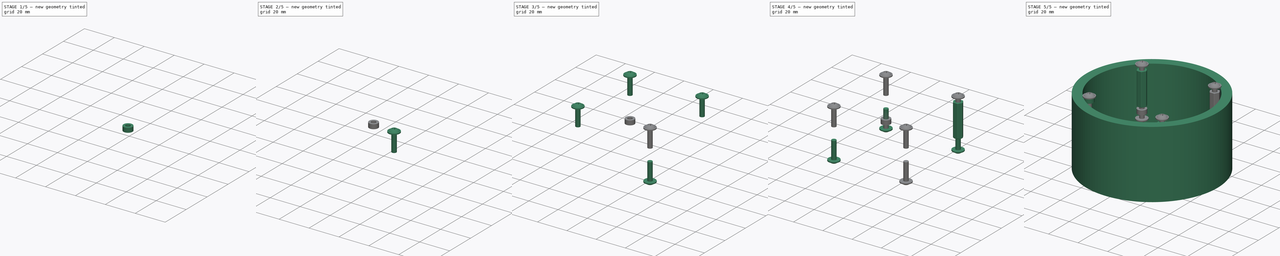
[diagram: build sequence overview — one tinted view per stage of 5, left to right]
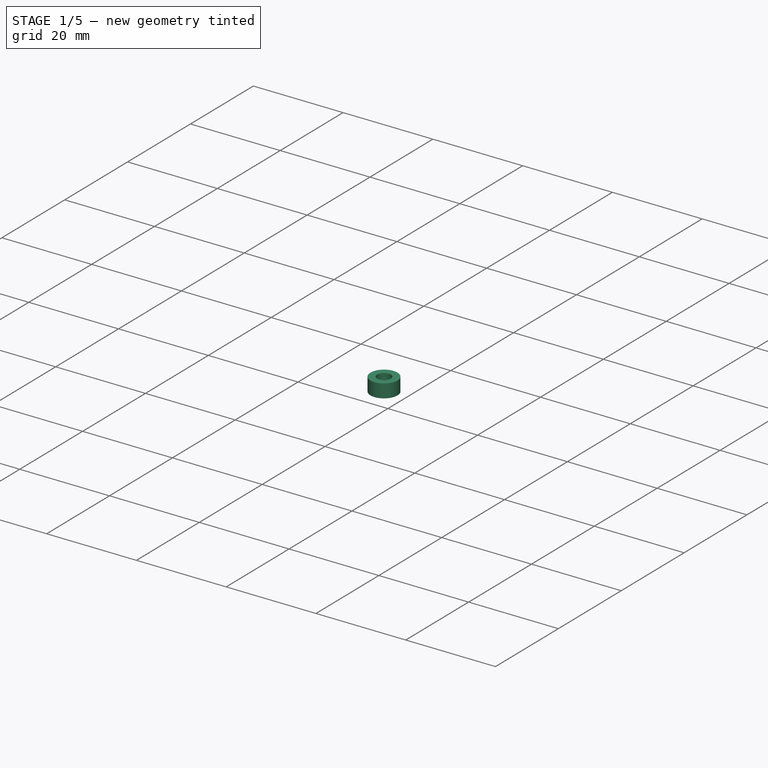
[diagram: stage 1 of 5 — iso view after this stage's code; geometry added in this stage tinted green]
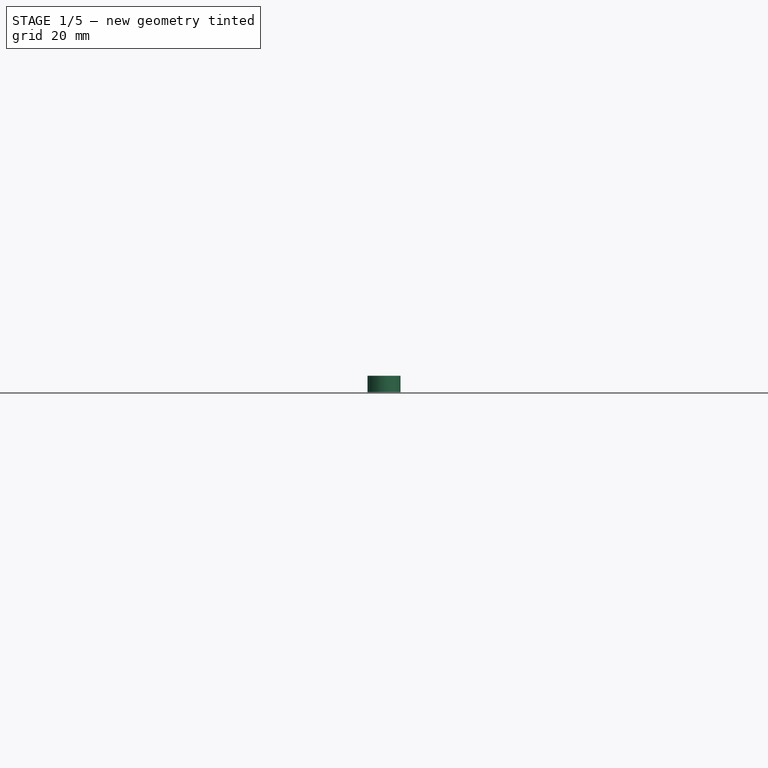
[diagram: stage 1 of 5 — front view after this stage's code; geometry added in this stage tinted green]
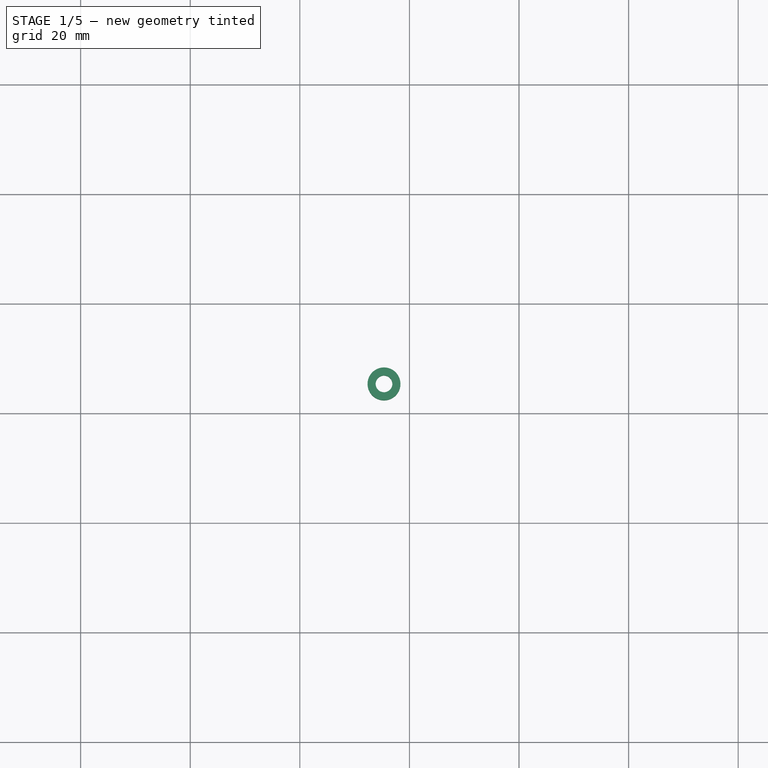
[diagram: stage 1 of 5 — top view after this stage's code; geometry added in this stage tinted green]
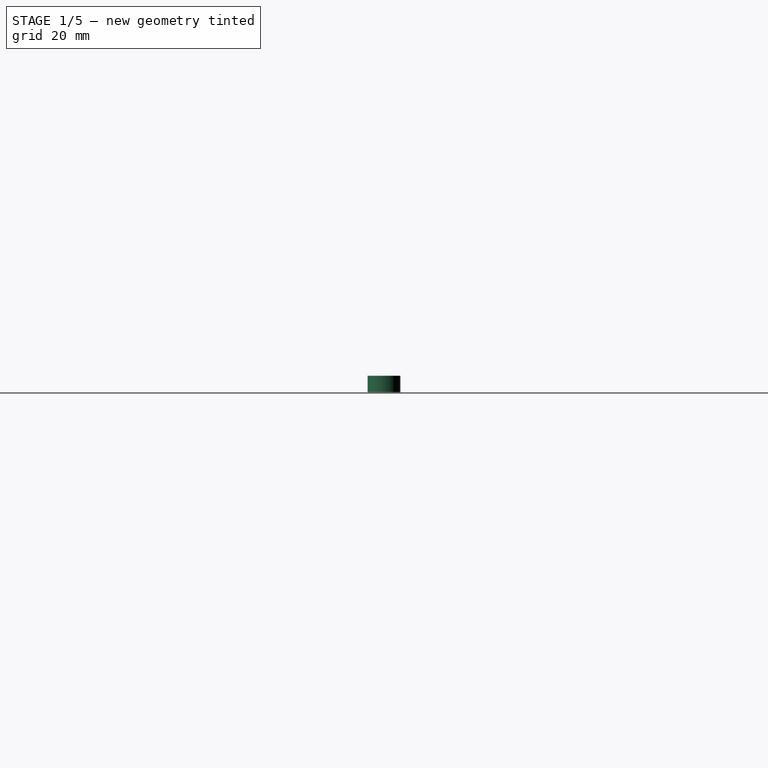
[diagram: stage 1 of 5 — right view after this stage's code; geometry added in this stage tinted green]
FCSTD DOCUMENT  (FreeCAD 2023.521R14555 (Git shallow))
Label: BagTag_v3
License: All rights reserved
LicenseURL: http://en.wikipedia.org/wiki/All_rights_reserved
objects: Part::Feature×208, App::Link×156, Part::FeaturePython×12, App::Part×8, PartDesign::Body×8, App::DocumentObjectGroupPython×8, Sketcher::SketchObject×6, PartDesign::SubShapeBinder×6, PartDesign::Pad×5, PartDesign::FeatureBase×3, App::DocumentObjectGroup×3, Part::Part2DObjectPython×3, PartDesign::CoordinateSystem×1
note: 271 computed .brp shape members not serialized (recipe doc carries the construction recipe); baked Part::Feature solids carry a one-line shape summary decoded from their .brp

FEATURE [PartDesign::Body] Body
  AutoGroupSolids = false
  ClaimAllChildren = false
  ExportMode = 0
  Group = -> [Sketch,Pad]
  InvalidShape = false
  Origin = -> Origin011
  Tip = -> Pad
  TreeRank = 0
  ValidateShape = false
  _ExportChildren = -> [Pad]
  _GroupVersion = 1
FEATURE [Part::Feature] pads_area001  label="topPads_fc76"
  InvalidShape = false
  Placement = pos=(-80.01,80.01,0.02) rot=(0,0,1;0rad)
  TreeRank = 0
  ValidateShape = false
  shape: bbox 57.58 x 57.07 x 2e-07 mm, 220 faces, 0 solids (baked)
FEATURE [Part::Feature] Shape006001  label="topTracks_fc76"
  InvalidShape = false
  Placement = pos=(-80.01,80.01,0.01) rot=(0,0,1;0rad)
  TreeRank = 0
  ValidateShape = false
  shape: bbox 50.8 x 47.75 x 2e-07 mm, 60 faces, 0 solids (baked)
FEATURE [Part::Feature] pads_area002001  label="botPads_fc76"
  InvalidShape = false
  Placement = pos=(-80.01,80.01,-1.62) rot=(0,0,1;0rad)
  TreeRank = 0
  ValidateShape = false
  shape: bbox 57.58 x 57.07 x 2e-07 mm, 220 faces, 0 solids (baked)
FEATURE [Part::Feature] Shape006002001  label="botTracks_fc76"
  InvalidShape = false
  Placement = pos=(-80.01,80.01,-1.61) rot=(0,0,1;0rad)
  TreeRank = 0
  ValidateShape = false
  shape: bbox 49.91 x 45.04 x 2e-07 mm, 36 faces, 0 solids (baked)
FEATURE [Part::Feature] zones_area001  label="botZones_fc76"
  InvalidShape = false
  Placement = pos=(-80.01,80.01,-1.61) rot=(0,0,1;0rad)
  TreeRank = 0
  ValidateShape = false
  shape: bbox 58.47 x 58.47 x 2e-07 mm, 21 faces, 0 solids (baked)
FEATURE [Part::Feature] botSilks_a19b
  InvalidShape = false
  Placement = pos=(-80.01,80.01,-1.67) rot=(0,0,1;0rad)
  TreeRank = 0
  ValidateShape = false
  shape: bbox 58.06 x 57.3 x 2e-07 mm, 101 faces, 0 solids (baked)
FEATURE [Part::Feature] topSilks_ac4f
  InvalidShape = false
  Placement = pos=(-80.01,80.01,0.07) rot=(0,0,1;0rad)
  TreeRank = 0
  ValidateShape = false
  shape: bbox 58.06 x 57.85 x 2e-07 mm, 136 faces, 0 solids (baked)
FEATURE [App::Part] Board_Geoms_fc76
  ClaimAllChildren = false
  ExportMode = 1
  Group = -> [Pcb_fc76,PCB_Sketch_fc76,pads_area001,Shape006001,pads_area002001,Shape006002001,zones_area001,botSilks_a19b,topSilks_ac4f]
  Origin = -> Origin
  TreeRank = 0
  _ExportChildren = -> [Pcb_fc76,PCB_Sketch_fc76,pads_area001,Shape006001,pads_area002001,Shape006002001,zones_area001,botSilks_a19b,topSilks_ac4f]
  _GroupVersion = 1
FEATURE [App::Part] Board_fc76  label="BagTag"
  ClaimAllChildren = false
  ExportMode = 1
  Group = -> [Local_CS_fc76,Board_Geoms_fc76,Step_Models_fc76]
  Origin = -> Origin001
  TreeRank = 0
  _ExportChildren = -> [Local_CS_fc76,Board_Geoms_fc76,Step_Models_fc76]
  _GroupVersion = 1
FEATURE [PartDesign::SubShapeBinder] Binder
  BindCopyOnChange = 0
  BindMode = 0
  ClaimChildren = false
  Context = -> Group [Body002.Binder.]
  EdgeTolerance = 1e-06
  FillStyle = 0
  Fuse = false
  InvalidShape = false
  MakeFace = true
  MergeEdges = true
  OffsetFill = false
  OffsetIntersection = false
  OffsetJoinType = 0
  OffsetOpenResult = false
  Outline = false
  PartialLoad = false
  Relative = true
  SplitEdges = false
  Support = -> [Board_fc76]
  TightBound = false
  TreeRank = 0
  ValidateShape = false
  _Version = 2
FEATURE [Sketcher::SketchObject] Sketch002
  ArcFitTolerance = 0
  AttachmentSupport = -> [Binder]
  ExternalBSplineMaxDegree = 0
  ExternalBSplineTolerance = 0
  ExternalGeometry = -> [Binder]
  FullyConstrained = true
  InternalTolerance = 1e-06
  InvalidShape = false
  MakeInternals = false
  MapMode = 5
  Placement = pos=(0,0,-1.6) rot=(1,0,0;3.14159rad)
  Support = -> [Binder]
  TreeRank = 0
  ValidateShape = false
  sketch-geometry (2):
    g0: Circle CenterX=-24.638 CenterY=-25.4 CenterZ=0 NormalX=0 NormalY=0 NormalZ=1 AngleXU=0 Radius=1.525
    g1: Circle CenterX=-24.638 CenterY=-25.4 CenterZ=0 NormalX=0 NormalY=0 NormalZ=1 AngleXU=0 Radius=3
  constraints (6):
    c: Coincident(g1,g0)
    c: Coincident(g0,g-3)
    c: Diameter(g0) = 3.05
    c: Diameter(g1) = 6
    c: DistanceX(g0,g-4) = 49.276
    c: DistanceY(g-6,g-4) = -50.8
FEATURE [PartDesign::Pad] Pad002
  AddSubType = 0
  AutoTaperInnerAngle = false
  CheckUpToFaceLimits = true
  ClaimChildren = false
  Direction = (0,0,1)
  Fit = 0
  FitJoin = 0
  InnerFit = 0
  InnerFitJoin = 0
  InvalidShape = false
  Length = 3
  Length2 = 100
  NewSolid = false
  Profile = -> Sketch002
  Suppress = false
  TaperInnerAngle = 0
  TaperInnerAngleRev = 0
  TreeRank = 0
  Type = 0
  ValidateShape = true
  _ProfileBasedVersion = 0
FEATURE [PartDesign::Body] Body002  label="Spacer_bottom1"
  AutoGroupSolids = false
  ClaimAllChildren = false
  ExportMode = 0
  Group = -> [Sketch002,Pad002,Binder]
  InvalidShape = false
  Origin = -> Origin021
  Tip = -> Pad002
  TreeRank = 0
  ValidateShape = false
  _ExportChildren = -> [Pad002,Binder]
  _GroupVersion = 1
FEATURE [PartDesign::FeatureBase] Clone
  BaseFeature = -> Body002
  InvalidShape = false
  NewSolid = false
  Placement = pos=(0,0,4e-16) rot=(0,0,1;0rad)
  Suppress = false
  TreeRank = 0
  ValidateShape = true
FEATURE [PartDesign::Body] Body006  label="Spacer_bottom2"
  AutoGroupSolids = false
  BaseFeature = -> Body002
  ClaimAllChildren = false
  ExportMode = 0
  Group = -> [Clone]
  InvalidShape = false
  Origin = -> Origin022
  Placement = pos=(49.28,0,0) rot=(0,0,1;0rad)
  Tip = -> Clone
  TreeRank = 0
  ValidateShape = false
  _ExportChildren = -> [Clone]
  _GroupVersion = 1
FEATURE [PartDesign::FeatureBase] Clone001
  BaseFeature = -> Body002
  InvalidShape = false
  NewSolid = false
  Placement = pos=(0,0,4e-16) rot=(0,0,1;0rad)
  Suppress = false
  TreeRank = 0
  ValidateShape = true
FEATURE [PartDesign::Body] Body007  label="Spacer_bottom3"
  AutoGroupSolids = false
  BaseFeature = -> Body002
  ClaimAllChildren = false
  ExportMode = 0
  Group = -> [Clone001]
  InvalidShape = false
  Origin = -> Origin023
  Placement = pos=(49.28,-50.8,0) rot=(0,0,1;0rad)
  Tip = -> Clone001
  TreeRank = 0
  ValidateShape = false
  _ExportChildren = -> [Clone001]
  _GroupVersion = 1
FEATURE [PartDesign::FeatureBase] Clone002
  BaseFeature = -> Body002
  InvalidShape = false
  NewSolid = false
  Placement = pos=(0,0,4e-16) rot=(0,0,1;0rad)
  Suppress = false
  TreeRank = 0
  ValidateShape = true
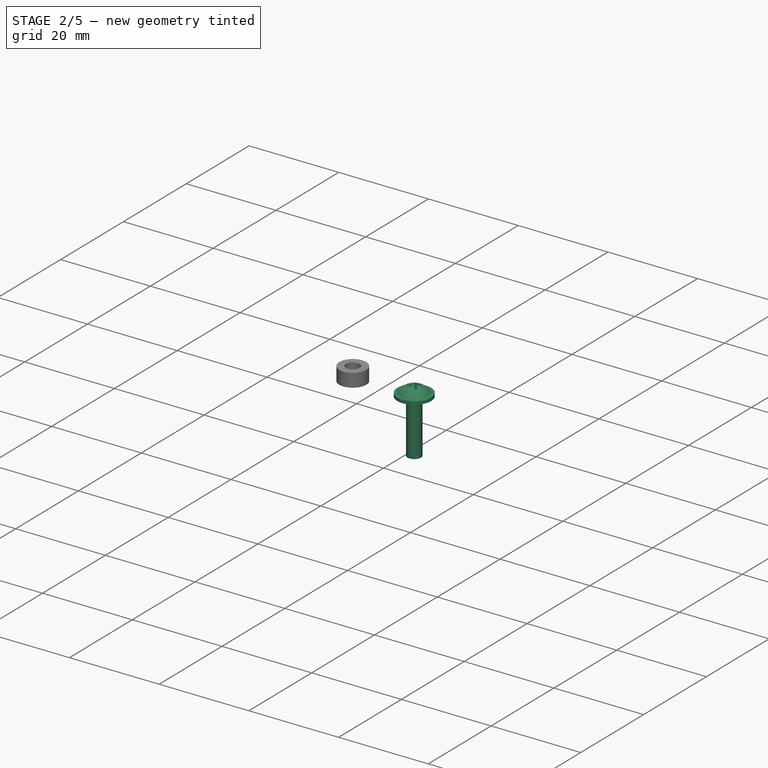
[diagram: stage 2 of 5 — iso view after this stage's code; geometry added in this stage tinted green]
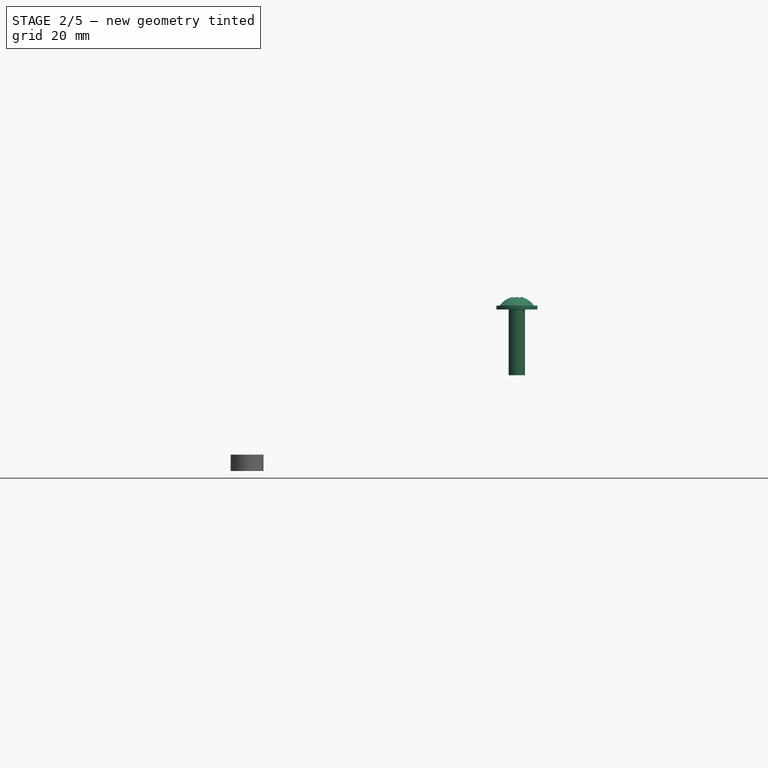
[diagram: stage 2 of 5 — front view after this stage's code; geometry added in this stage tinted green]
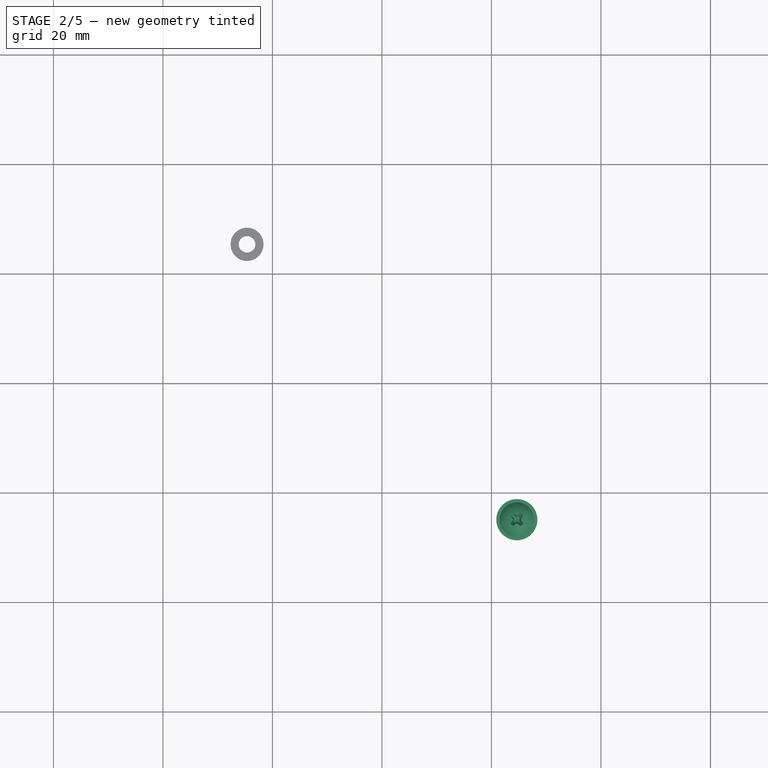
[diagram: stage 2 of 5 — top view after this stage's code; geometry added in this stage tinted green]
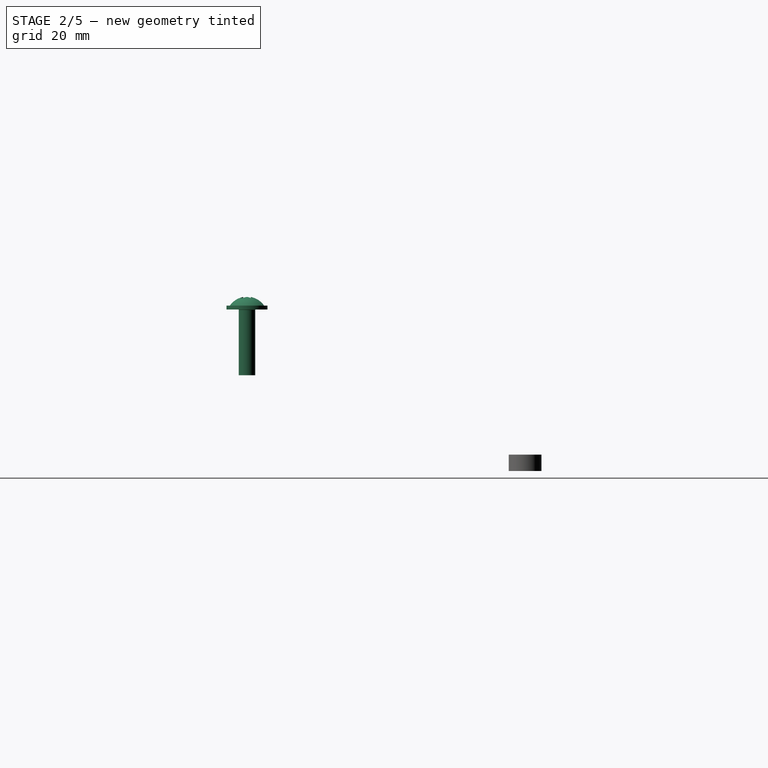
[diagram: stage 2 of 5 — right view after this stage's code; geometry added in this stage tinted green]
FEATURE [PartDesign::Body] Body008  label="Spacer_bottom4"
  AutoGroupSolids = false
  BaseFeature = -> Body002
  ClaimAllChildren = false
  ExportMode = 0
  Group = -> [Clone002]
  InvalidShape = false
  Origin = -> Origin024
  Placement = pos=(0,-50.8,0) rot=(0,0,1;0rad)
  Tip = -> Clone002
  TreeRank = 0
  ValidateShape = false
  _ExportChildren = -> [Clone002]
  _GroupVersion = 1
FEATURE [App::DocumentObjectGroup] Group  label="Bottom_Spacers"
  ClaimAllChildren = true
  ExportMode = 1
  Group = -> [Body002,Body006,Body007,Body008]
  TreeRank = 0
  _GroupVersion = 1
FEATURE [PartDesign::SubShapeBinder] Binder001
  BindCopyOnChange = 0
  BindMode = 0
  ClaimChildren = false
  Context = -> Body001 [Binder001.]
  EdgeTolerance = 1e-06
  FillStyle = 0
  Fuse = false
  InvalidShape = false
  MakeFace = true
  MergeEdges = true
  OffsetFill = false
  OffsetIntersection = false
  OffsetJoinType = 0
  OffsetOpenResult = false
  Outline = false
  PartialLoad = false
  Relative = true
  SplitEdges = false
  Support = -> [Board_fc76]
  TightBound = false
  TreeRank = 0
  ValidateShape = false
  _Version = 2
FEATURE [Sketcher::SketchObject] Sketch001
  ArcFitTolerance = 0
  AttachmentSupport = -> [XY_Plane020]
  ExternalBSplineMaxDegree = 0
  ExternalBSplineTolerance = 0
  ExternalGeometry = -> [Binder001]
  FullyConstrained = true
  InternalTolerance = 1e-06
  InvalidShape = false
  MakeInternals = false
  MapMode = 5
  Support = -> [XY_Plane020]
  TreeRank = 0
  ValidateShape = false
  sketch-geometry (22):
    g0: LineSegment StartX=-24.638 StartY=29.972 StartZ=0 EndX=24.638 EndY=29.972 EndZ=0
    g1: LineSegment StartX=29.21 StartY=25.4 StartZ=0 EndX=29.21 EndY=-41.456 EndZ=0
    g2: LineSegment StartX=24.638 StartY=-46.028 StartZ=0 EndX=-24.638 EndY=-46.028 EndZ=0
    g3: LineSegment StartX=-29.21 StartY=-41.456 StartZ=0 EndX=-29.21 EndY=25.4 EndZ=0
    g4: ArcOfCircle CenterX=-24.638 CenterY=25.4 CenterZ=0 NormalX=0 NormalY=0 NormalZ=1 AngleXU=0 Radius=4.572 StartAngle=1.5708 EndAngle=3.14159
    g5: GeomPoint [constr] X=-29.21 Y=29.972 Z=0
    g6: ArcOfCircle CenterX=24.638 CenterY=25.4 CenterZ=0 NormalX=0 NormalY=0 NormalZ=1 AngleXU=0 Radius=4.572 StartAngle=0 EndAngle=1.5708
    g7: GeomPoint [constr] X=29.21 Y=29.972 Z=0
    g8: ArcOfCircle CenterX=24.638 CenterY=-41.456 CenterZ=0 NormalX=0 NormalY=0 NormalZ=1 AngleXU=0 Radius=4.572 StartAngle=4.71239 EndAngle=6.28319
    g9: GeomPoint [constr] X=29.21 Y=-46.028 Z=0
    g10: ArcOfCircle CenterX=-24.638 CenterY=-41.456 CenterZ=0 NormalX=0 NormalY=0 NormalZ=1 AngleXU=0 Radius=4.572 StartAngle=3.14159 EndAngle=4.71239
    g11: GeomPoint [constr] X=-29.21 Y=-46.028 Z=0
    g12: Circle CenterX=-24.638 CenterY=-41.456 CenterZ=0 NormalX=0 NormalY=0 NormalZ=1 AngleXU=0 Radius=1.525
    g13: Circle CenterX=24.638 CenterY=-41.456 CenterZ=0 NormalX=0 NormalY=0 NormalZ=1 AngleXU=0 Radius=1.525
    g14: Circle CenterX=24.638 CenterY=25.4 CenterZ=0 NormalX=0 NormalY=0 NormalZ=1 AngleXU=0 Radius=1.525
    g15: Circle CenterX=-24.638 CenterY=25.4 CenterZ=0 NormalX=0 NormalY=0 NormalZ=1 AngleXU=0 Radius=1.525
    g16: ArcOfCircle CenterX=-4.445 CenterY=24.765 CenterZ=0 NormalX=0 NormalY=0 NormalZ=1 AngleXU=0 Radius=1.905 StartAngle=1.5708 EndAngle=4.71239
    g17: ArcOfCircle CenterX=4.445 CenterY=24.765 CenterZ=0 NormalX=0 NormalY=0 NormalZ=1 AngleXU=0 Radius=1.905 StartAngle=4.71239 EndAngle=7.85398
    g18: LineSegment StartX=-4.445 StartY=22.86 StartZ=0 EndX=4.445 EndY=22.86 EndZ=0
    g19: LineSegment StartX=-4.445 StartY=26.67 StartZ=0 EndX=4.445 EndY=26.67 EndZ=0
    g20: Circle CenterX=-24.638 CenterY=-25.4 CenterZ=0 NormalX=0 NormalY=0 NormalZ=1 AngleXU=0 Radius=1.525
    g21: Circle CenterX=24.638 CenterY=-25.4 CenterZ=0 NormalX=0 NormalY=0 NormalZ=1 AngleXU=0 Radius=1.525
  constraints (46):
    c: Horizontal(g0)
    c: Horizontal(g2)
    c: Vertical(g1)
    c: Vertical(g3)
    c: PointOnObject(g5,g0)
    c: PointOnObject(g5,g3)
    c: Tangent(g0,g4) = 1.5708
    c: Tangent(g3,g4) = 1.5708
    c: PointOnObject(g7,g0)
    c: PointOnObject(g7,g1)
    c: Tangent(g0,g6) = 1.5708
    c: Tangent(g1,g6) = 1.5708
    c: PointOnObject(g9,g1)
    c: PointOnObject(g9,g2)
    c: Tangent(g1,g8) = 1.5708
    c: Tangent(g2,g8) = 1.5708
    c: PointOnObject(g11,g3)
    c: PointOnObject(g11,g2)
    c: Tangent(g3,g10) = 1.5708
    c: Tangent(g2,g10) = 1.5708
    c: Equal(g10,g8)
    c: Equal(g8,g6)
    c: Coincident(g12,g10)
    c: Coincident(g13,g8)
    c: Coincident(g14,g6)
    c: Coincident(g15,g4)
    c: Equal(g15,g14)
    c: Equal(g14,g13)
    c: Equal(g13,g12)
    c: Tangent(g16,g19) = 1.5708
    c: Tangent(g16,g18) = -1.5708
    c: Tangent(g18,g17) = -1.5708
    c: Tangent(g19,g17) = 1.5708
    c: Horizontal(g18)
    c: Coincident(g4,g-3)
    c: Coincident(g-4,g6)
    c: PointOnObject(g-8,g1)
    c: Coincident(g20,g-5)
    c: Equal(g20,g15)
    c: Diameter(g15) = 3.05
    c: Coincident(g21,g-6)
    c: Equal(g21,g15)
    c: DistanceY(g2,g0) = 76
    c: Coincident(g16,g-9)
    c: Coincident(g17,g-10)
    c: Equal(g-9,g16)
FEATURE [PartDesign::Pad] Pad001
  AddSubType = 0
  AutoTaperInnerAngle = false
  CheckUpToFaceLimits = true
  ClaimChildren = false
  Direction = (0,0,1)
  Fit = 0
  FitJoin = 0
  InnerFit = 0
  InnerFitJoin = 0
  InvalidShape = false
  Length = 3
  Length2 = 100
  NewSolid = false
  Profile = -> Sketch001
  Reversed = true
  Suppress = false
  TaperInnerAngle = 0
  TaperInnerAngleRev = 0
  TreeRank = 0
  Type = 0
  ValidateShape = true
  _ProfileBasedVersion = 0
FEATURE [PartDesign::Body] Body001  label="Plate_bottom"
  AutoGroupSolids = false
  ClaimAllChildren = false
  ExportMode = 0
  Group = -> [Sketch001,Pad001,Binder001]
  InvalidShape = false
  Origin = -> Origin020
  Placement = pos=(0,0,-4.5) rot=(0,0,1;0rad)
  Tip = -> Pad001
  TreeRank = 0
  ValidateShape = false
  _ExportChildren = -> [Pad001,Binder001]
  _GroupVersion = 1
FEATURE [Part::FeaturePython] Spacer  label="M3x22xx5.5-Spacer168"  # Fasteners workbench fastener (typed FeaturePython)
  InvalidShape = false
  Placement = pos=(-24.638,-25.4,0) rot=(0,0,1;0rad)
  TreeRank = 0
  ValidateShape = false
  baseObject = -> Pcb_fc76 [Edge296]
  diameter = 2
  invert = false
  leftHanded = false
  length = 17
  lengthCustom = 22
  matchOuter = false
  offset = 0
  thread = false
  type = 0
  width = 1
FEATURE [Part::FeaturePython] Screw007  label="M3x12-Screw395"  # Fasteners workbench fastener (typed FeaturePython)
  InvalidShape = false
  Placement = pos=(24.638,-25.4,24.9) rot=(0,0,1;0rad)
  TreeRank = 0
  ValidateShape = false
  baseObject = -> Body003 [Edge87]
  diameter = 1
  invert = false
  leftHanded = false
  length = 5
  lengthCustom = 12
  matchOuter = false
  offset = 0
  thread = false
  type = 22
FEATURE [App::DocumentObjectGroup] Group001  label="Fasteners"
  ClaimAllChildren = true
  ExportMode = 1
  Group = -> [Spacer,Spacer001,Spacer002,Spacer003,Screw,Screw001,Screw002,Screw003,Screw004,Screw005,Screw006,Screw007]
  TreeRank = 0
  _GroupVersion = 1
FEATURE [PartDesign::SubShapeBinder] Binder005  label="Binder005(M3x22xx5.5-Spacer033)"
  BindCopyOnChange = 0
  BindMode = 0
  ClaimChildren = false
  Context = -> Body003 [Binder005.]
  EdgeTolerance = 1e-06
  FillStyle = 0
  Fuse = false
  InvalidShape = false
  MakeFace = true
  MergeEdges = true
  OffsetFill = false
  OffsetIntersection = false
  OffsetJoinType = 0
  OffsetOpenResult = false
  Outline = false
  PartialLoad = false
  Relative = true
  SplitEdges = false
  Support = -> [Spacer]
  TightBound = false
  TreeRank = 1
  ValidateShape = false
  _Version = 8
FEATURE [Sketcher::SketchObject] Sketch003
  ArcFitTolerance = 0
  AttachmentSupport = -> [Binder005]
  ExternalBSplineMaxDegree = 0
  ExternalBSplineTolerance = 0
  ExternalGeometry = -> [Binder002,Binder003]
  FullyConstrained = true
  InternalTolerance = 1e-06
  InvalidShape = false
  MakeInternals = false
  MapMode = 5
  Placement = pos=(0,0,21.3) rot=(0,0,1;0rad)
  Support = -> [Binder005]
  TreeRank = 0
  ValidateShape = false
  sketch-geometry (42):
    g0: LineSegment StartX=-24.638 StartY=29.972 StartZ=0 EndX=24.638 EndY=29.972 EndZ=0
    g1: LineSegment StartX=29.21 StartY=25.4 StartZ=0 EndX=29.21 EndY=-41.456 EndZ=0
    g2: LineSegment StartX=24.638 StartY=-46.028 StartZ=0 EndX=-24.638 EndY=-46.028 EndZ=0
    g3: LineSegment StartX=-29.21 StartY=-41.456 StartZ=0 EndX=-29.21 EndY=25.4 EndZ=0
    g4: ArcOfCircle CenterX=-24.638 CenterY=25.4 CenterZ=0 NormalX=0 NormalY=0 NormalZ=1 AngleXU=0 Radius=4.572 StartAngle=1.5708 EndAngle=3.14159
    g5: GeomPoint [constr] X=-29.21 Y=29.972 Z=0
    g6: ArcOfCircle CenterX=24.638 CenterY=25.4 CenterZ=0 NormalX=0 NormalY=0 NormalZ=1 AngleXU=0 Radius=4.572 StartAngle=2e-16 EndAngle=1.5708
    g7: GeomPoint [constr] X=29.21 Y=29.972 Z=0
    g8: ArcOfCircle CenterX=24.638 CenterY=-41.456 CenterZ=0 NormalX=0 NormalY=0 NormalZ=1 AngleXU=0 Radius=4.572 StartAngle=4.71239 EndAngle=6.28319
    g9: GeomPoint [constr] X=29.21 Y=-46.028 Z=0
    g10: ArcOfCircle CenterX=-24.638 CenterY=-41.456 CenterZ=0 NormalX=0 NormalY=0 NormalZ=1 AngleXU=0 Radius=4.572 StartAngle=3.14159 EndAngle=4.71239
    g11: GeomPoint [constr] X=-29.21 Y=-46.028 Z=0
    g12: Circle CenterX=-24.638 CenterY=-41.456 CenterZ=0 NormalX=0 NormalY=0 NormalZ=1 AngleXU=0 Radius=1.525
    g13: Circle CenterX=24.638 CenterY=-41.456 CenterZ=0 NormalX=0 NormalY=0 NormalZ=1 AngleXU=0 Radius=1.525
    g14: Circle CenterX=24.638 CenterY=25.4 CenterZ=0 NormalX=0 NormalY=0 NormalZ=1 AngleXU=0 Radius=1.525
    g15: Circle CenterX=-24.638 CenterY=25.4 CenterZ=0 NormalX=0 NormalY=0 NormalZ=1 AngleXU=0 Radius=1.525
    g16: ArcOfCircle CenterX=-4.445 CenterY=24.765 CenterZ=0 NormalX=0 NormalY=0 NormalZ=1 AngleXU=0 Radius=1.905 StartAngle=1.5708 EndAngle=4.71239
    g17: ArcOfCircle CenterX=4.445 CenterY=24.765 CenterZ=0 NormalX=0 NormalY=0 NormalZ=1 AngleXU=0 Radius=1.905 StartAngle=4.71239 EndAngle=7.85398
    g18: LineSegment StartX=-4.445 StartY=22.86 StartZ=0 EndX=4.445 EndY=22.86 EndZ=0
    g19: LineSegment StartX=-4.445 StartY=26.67 StartZ=0 EndX=4.445 EndY=26.67 EndZ=0
    g20: ArcOfCircle CenterX=-16.0007 CenterY=3.30062 CenterZ=0 NormalX=0 NormalY=0 NormalZ=1 AngleXU=0 Radius=1 StartAngle=1.5708 EndAngle=3.14159
    g21: LineSegment StartX=-16.0007 StartY=4.30062 StartZ=0 EndX=15.9993 EndY=4.30062 EndZ=0
    g22: ArcOfCircle CenterX=15.9993 CenterY=3.30062 CenterZ=0 NormalX=0 NormalY=0 NormalZ=1 AngleXU=0 Radius=1 StartAngle=0 EndAngle=1.5708
    g23: LineSegment StartX=16.9993 StartY=3.30062 StartZ=0 EndX=16.9993 EndY=-28.6994 EndZ=0
    g24: ArcOfCircle CenterX=15.9993 CenterY=-28.6994 CenterZ=0 NormalX=0 NormalY=0 NormalZ=1 AngleXU=0 Radius=1 StartAngle=4.71239 EndAngle=6.28319
    g25: LineSegment StartX=15.9993 StartY=-29.6994 StartZ=0 EndX=-16.0007 EndY=-29.6994 EndZ=0
    g26: ArcOfCircle CenterX=-16.0007 CenterY=-28.6994 CenterZ=0 NormalX=0 NormalY=0 NormalZ=1 AngleXU=0 Radius=1 StartAngle=3.14159 EndAngle=4.71239
    g27: LineSegment StartX=-17.0007 StartY=-28.6994 StartZ=0 EndX=-17.0007 EndY=3.30062 EndZ=0
    g28: GeomPoint [constr] X=-17.0007 Y=4.30062 Z=0
    g29: GeomPoint [constr] X=16.9993 Y=-29.6994 Z=0
    g30: ArcOfCircle CenterX=17.023 CenterY=16.01 CenterZ=0 NormalX=0 NormalY=0 NormalZ=1 AngleXU=0 Radius=1 StartAngle=1.5708 EndAngle=3.14159
    g31: LineSegment StartX=17.023 StartY=17.01 StartZ=0 EndX=21.023 EndY=17.01 EndZ=0
    g32: ArcOfCircle CenterX=21.023 CenterY=16.01 CenterZ=0 NormalX=0 NormalY=0 NormalZ=1 AngleXU=0 Radius=1 StartAngle=8e-16 EndAngle=1.5708
    g33: LineSegment StartX=22.023 StartY=16.01 StartZ=0 EndX=22.023 EndY=9.39 EndZ=0
    g34: ArcOfCircle CenterX=21.023 CenterY=9.39 CenterZ=0 NormalX=0 NormalY=0 NormalZ=1 AngleXU=0 Radius=1 StartAngle=4.71239 EndAngle=6.28319
    g35: LineSegment StartX=21.023 StartY=8.39 StartZ=0 EndX=17.023 EndY=8.39 EndZ=0
    g36: ArcOfCircle CenterX=17.023 CenterY=9.39 CenterZ=0 NormalX=0 NormalY=0 NormalZ=1 AngleXU=0 Radius=1 StartAngle=3.14159 EndAngle=4.71239
    g37: LineSegment StartX=16.023 StartY=9.39 StartZ=0 EndX=16.023 EndY=16.01 EndZ=0
    g38: GeomPoint [constr] X=16.023 Y=17.01 Z=0
    g39: GeomPoint [constr] X=22.023 Y=8.39 Z=0
    g40: Circle CenterX=-24.638 CenterY=-25.4 CenterZ=0 NormalX=0 NormalY=0 NormalZ=1 AngleXU=0 Radius=1.525
    g41: Circle CenterX=24.638 CenterY=-25.4 CenterZ=0 NormalX=0 NormalY=0 NormalZ=1 AngleXU=0 Radius=1.525
  constraints (89):
    c: Horizontal(g0)
    c: Horizontal(g2)
    c: Vertical(g1)
    c: Vertical(g3)
    c: PointOnObject(g5,g0)
    c: PointOnObject(g5,g3)
    c: Tangent(g0,g4) = 1.5708
    c: Tangent(g3,g4) = 1.5708
    c: PointOnObject(g7,g0)
    c: PointOnObject(g7,g1)
    c: Tangent(g0,g6) = 1.5708
    c: Tangent(g1,g6) = 1.5708
    c: PointOnObject(g9,g1)
    c: PointOnObject(g9,g2)
    c: Tangent(g1,g8) = 1.5708
    c: Tangent(g2,g8) = 1.5708
    c: PointOnObject(g11,g2)
    c: PointOnObject(g11,g3)
    c: Tangent(g2,g10) = 1.5708
    c: Tangent(g3,g10) = 1.5708
    c: Equal(g10,g8)
    c: Coincident(g12,g10)
    c: Coincident(g13,g8)
    c: Coincident(g14,g6)
    c: Coincident(g15,g4)
    c: Equal(g15,g14)
    c: Equal(g14,g13)
    c: Equal(g13,g12)
    c: Tangent(g16,g19) = 1.5708
    c: Tangent(g16,g18) = -1.5708
    c: Tangent(g18,g17) = -1.5708
    c: Tangent(g19,g17) = 1.5708
    c: Horizontal(g18)
    c: Coincident(g16,g-7)
    c: Coincident(g17,g-8)
    c: Equal(g16,g-7)
    c: Coincident(g4,g-3)
    c: Coincident(g6,g-4)
    c: PointOnObject(g-9,g3)
    c: Coincident(g10,g-12)
    c: Diameter(g15) = 3.05
    c: Tangent(g20,g21) = 1.5708
    c: Tangent(g21,g22) = 1.5708
    c: Tangent(g22,g23) = 1.5708
    c: Tangent(g23,g24) = 1.5708
    c: Tangent(g24,g25) = 1.5708
    c: Tangent(g25,g26) = 1.5708
    c: Tangent(g26,g27) = 1.5708
    c: Tangent(g27,g20) = 1.5708
    c: Horizontal(g21)
    c: Horizontal(g25)
    c: Vertical(g23)
    c: Vertical(g27)
    c: Equal(g20,g22)
    c: Equal(g22,g24)
    c: Equal(g24,g26)
    c: PointOnObject(g28,g21)
    c: PointOnObject(g28,g27)
    c: PointOnObject(g29,g23)
    c: PointOnObject(g29,g25)
    c: Coincident(g20,g-19)
    c: Coincident(g24,g-20)
    c: DistanceY(g20,g20) = 1
    c: Tangent(g30,g31) = 1.5708
    c: Tangent(g31,g32) = 1.5708
    c: Tangent(g32,g33) = 1.5708
    c: Tangent(g33,g34) = 1.5708
    c: Tangent(g34,g35) = 1.5708
    c: Tangent(g35,g36) = 1.5708
    c: Tangent(g36,g37) = 1.5708
    c: Tangent(g37,g30) = 1.5708
    c: Horizontal(g31)
    c: Horizontal(g35)
    c: Vertical(g33)
    c: Vertical(g37)
    c: Equal(g30,g32)
    c: Equal(g32,g34)
    c: Equal(g34,g36)
    c: PointOnObject(g38,g31)
    c: PointOnObject(g38,g37)
    c: PointOnObject(g39,g33)
    c: PointOnObject(g39,g35)
    c: Coincident(g-17,g36)
    c: Coincident(g32,g-18)
    c: DistanceY(g30,g30) = 1
    c: Coincident(g40,g-6)
    c: Coincident(g41,g-5)
    c: Equal(g41,g40)
    c: Equal(g40,g15)
FEATURE [PartDesign::Pad] Pad003
  AddSubType = 0
  AutoTaperInnerAngle = false
  CheckUpToFaceLimits = true
  ClaimChildren = false
  Direction = (0,0,1)
  Fit = 0
  FitJoin = 0
  InnerFit = 0
  InnerFitJoin = 0
  InvalidShape = false
  Length = 3
  Length2 = 100
  NewSolid = false
  Profile = -> Sketch003
  Suppress = false
  TaperInnerAngle = 0
  TaperInnerAngleRev = 0
  TreeRank = 0
  Type = 0
  ValidateShape = true
  _ProfileBasedVersion = 0
FEATURE [PartDesign::Body] Body003  label="Plate_top"
  AutoGroupSolids = false
  ClaimAllChildren = false
  ExportMode = 0
  Group = -> [Sketch003,Pad003,Binder002,Binder003,Binder005]
  InvalidShape = false
  Origin = -> Origin013
  Placement = pos=(0,0,0.6) rot=(0,0,1;0rad)
  Tip = -> Pad003
  TreeRank = 0
  ValidateShape = false
  _ExportChildren = -> [Pad003,Binder002,Binder003,Binder005]
  _GroupVersion = 1
FEATURE [Part::Feature] Compound  label="pp3_battery"
  InvalidShape = false
  Placement = pos=(2.6,-25,8.6) rot=(1,0,0;1.5708rad)
  TreeRank = 36
  ValidateShape = false
  shape: bbox 46.52 x 16.6 x 26 mm, 243 faces, 0 solids (baked)
FEATURE [Part::Feature] trajectory_line
  InvalidShape = false
  TreeRank = 545
  ValidateShape = false
  shape: bbox 49.28 x 50.8 x 150 mm, 0 faces, 0 solids (baked)
FEATURE [App::DocumentObjectGroupPython] BoltGroup  # scripted group (container) (typed FeaturePython)
  AnimationStepTime = 0.1
  AnimationSteps = 20
  ClaimAllChildren = true
  Distance = 150
  ExportMode = 0
  Group = -> [trajectory_line]
  Revolutions = 0
  TreeRank = 5
  _GroupVersion = 1
FEATURE [Part::Feature] trajectory_line001
  InvalidShape = false
  TreeRank = 546
  ValidateShape = false
  shape: bbox 2e-07 x 2e-07 x 140 mm, 0 faces, 0 solids (baked)
FEATURE [App::DocumentObjectGroupPython] SimpleGroup  # scripted group (container) (typed FeaturePython)
  AnimationStepTime = 0.05
  AnimationSteps = 20
  ClaimAllChildren = true
  Distance = 140
  ExportMode = 0
  Group = -> [trajectory_line001]
  Revolutions = 0
  TreeRank = 9
  _GroupVersion = 1
FEATURE [Part::Feature] trajectory_line002
  InvalidShape = false
  TreeRank = 547
  ValidateShape = false
  shape: bbox 49.28 x 50.8 x 120 mm, 0 faces, 0 solids (baked)
FEATURE [App::DocumentObjectGroupPython] BoltGroup001  # scripted group (container) (typed FeaturePython)
  AnimationStepTime = 0.05
  AnimationSteps = 20
  ClaimAllChildren = true
  Distance = 120
  ExportMode = 0
  Group = -> [trajectory_line002]
  Revolutions = 0
  TreeRank = 15
  _GroupVersion = 1
FEATURE [Part::Feature] trajectory_line003
  InvalidShape = false
  TreeRank = 548
  ValidateShape = false
  shape: bbox 2e-07 x 100 x 2e-07 mm, 0 faces, 0 solids (baked)
FEATURE [App::DocumentObjectGroupPython] SimpleGroup001  # scripted group (container) (typed FeaturePython)
  AnimationStepTime = 0
  AnimationSteps = 20
  ClaimAllChildren = true
  Distance = 100
  ExportMode = 0
  Group = -> [trajectory_line003]
  Revolutions = 0
  TreeRank = 42
  _GroupVersion = 1
FEATURE [Part::Feature] trajectory_line004
  InvalidShape = false
  TreeRank = 549
  ValidateShape = false
  shape: bbox 2e-07 x 2e-07 x 100 mm, 0 faces, 0 solids (baked)
FEATURE [App::DocumentObjectGroupPython] SimpleGroup002  # scripted group (container) (typed FeaturePython)
  AnimationStepTime = 0
  AnimationSteps = 20
  ClaimAllChildren = true
  Distance = 100
  ExportMode = 0
  Group = -> [trajectory_line004]
  Revolutions = 0
  TreeRank = 518
  _GroupVersion = 1
FEATURE [Part::Feature] trajectory_line005
  InvalidShape = false
  TreeRank = 550
  ValidateShape = false
  shape: bbox 2e-07 x 2e-07 x 80 mm, 0 faces, 0 solids (baked)
FEATURE [App::DocumentObjectGroupPython] BoltGroup002  # scripted group (container) (typed FeaturePython)
  AnimationStepTime = 0
  AnimationSteps = 20
  ClaimAllChildren = true
  Distance = 80
  ExportMode = 0
  Group = -> [trajectory_line005]
  Revolutions = 0
  TreeRank = 530
  _GroupVersion = 1
FEATURE [Part::Feature] trajectory_line006
  InvalidShape = false
  TreeRank = 543
  ValidateShape = false
  shape: bbox 2e-07 x 2e-07 x 20 mm, 0 faces, 0 solids (baked)
FEATURE [App::DocumentObjectGroupPython] SimpleGroup003  # scripted group (container) (typed FeaturePython)
  AnimationStepTime = 0
  AnimationSteps = 20
  ClaimAllChildren = true
  Distance = 50
  ExportMode = 0
  Group = -> [trajectory_line006]
  Revolutions = 0
  TreeRank = 544
  _GroupVersion = 1
FEATURE [App::DocumentObjectGroupPython] ExplodedAssembly  # scripted group (container) (typed FeaturePython)
  AnimationStep = 0
  ClaimAllChildren = true
  CurrentTrajectory = 0
  ExportMode = 0
  Group = -> [BoltGroup,SimpleGroup,BoltGroup001,SimpleGroup001,SimpleGroup002,BoltGroup002,SimpleGroup003]
  InAnimation = false
  RemoveAllTrajectories = false
  ResetAnimation = false
  TreeRank = 2
  _GroupVersion = 1
FEATURE [Part::Part2DObjectPython] Shape2DView  # Draft 2D object (typed FeaturePython)
  AutoUpdate = true
  Base = -> Body001
  Clip = false
  FuseArch = false
  HiddenLines = false
  InPlace = true
  InvalidShape = false
  OnlySolids = false
  Projection = (0,0,1)
  ProjectionMode = 0
  SegmentLength = 0.05
  Tessellation = false
  TreeRank = 551
  ValidateShape = false
  VisibleOnly = false
FEATURE [Part::Part2DObjectPython] Shape2DView001  # Draft 2D object (typed FeaturePython)
  AutoUpdate = true
  Base = -> Body003
  Clip = false
  FuseArch = false
  HiddenLines = false
  InPlace = true
  InvalidShape = false
  OnlySolids = false
  Projection = (0,0,1)
  ProjectionMode = 0
  SegmentLength = 0.05
  Tessellation = false
  TreeRank = 552
  ValidateShape = false
  VisibleOnly = false
FEATURE [Part::Part2DObjectPython] Shape2DView002  # Draft 2D object (typed FeaturePython)
  AutoUpdate = true
  Base = -> Group
  Clip = false
  FuseArch = false
  HiddenLines = false
  InPlace = true
  InvalidShape = false
  OnlySolids = false
  Projection = (0,0,1)
  ProjectionMode = 0
  SegmentLength = 0.05
  Tessellation = false
  TreeRank = 553
  ValidateShape = false
  VisibleOnly = false
FEATURE [App::DocumentObjectGroup] Group002  label="DXF"
  ClaimAllChildren = true
  ExportMode = 1
  Group = -> [Shape2DView,Shape2DView001,Shape2DView002]
  TreeRank = 554
  _GroupVersion = 1
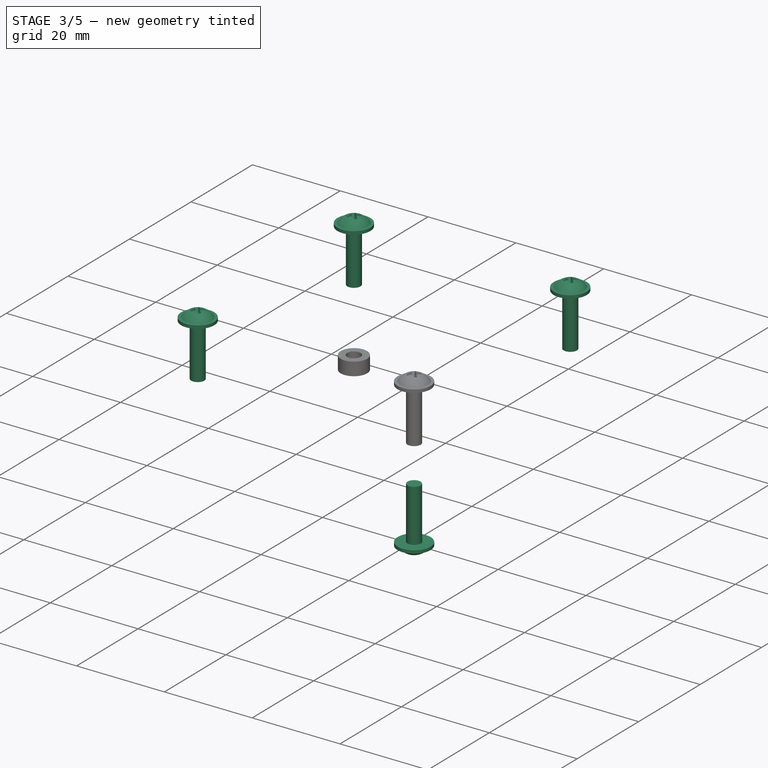
[diagram: stage 3 of 5 — iso view after this stage's code; geometry added in this stage tinted green]
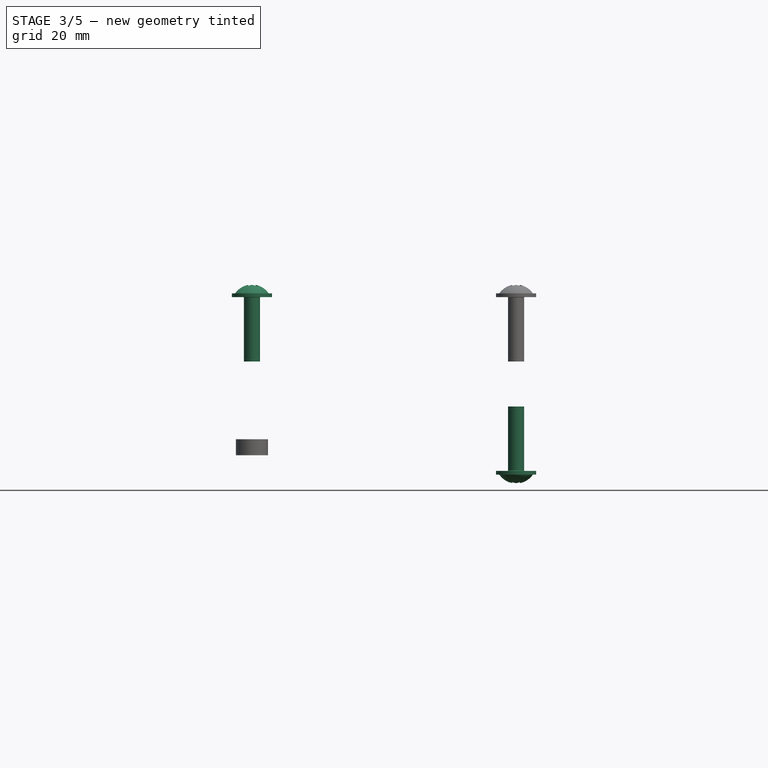
[diagram: stage 3 of 5 — front view after this stage's code; geometry added in this stage tinted green]
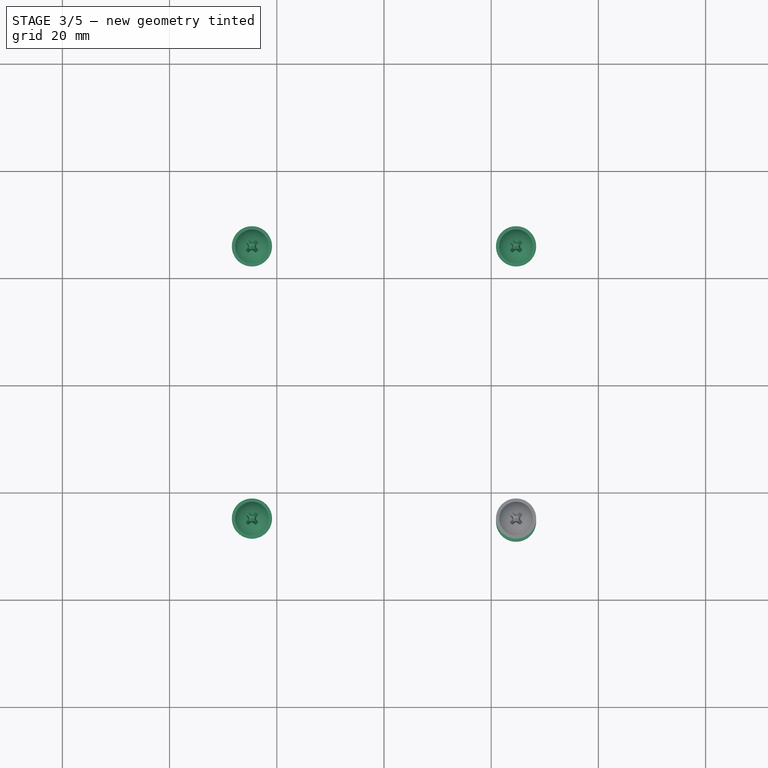
[diagram: stage 3 of 5 — top view after this stage's code; geometry added in this stage tinted green]
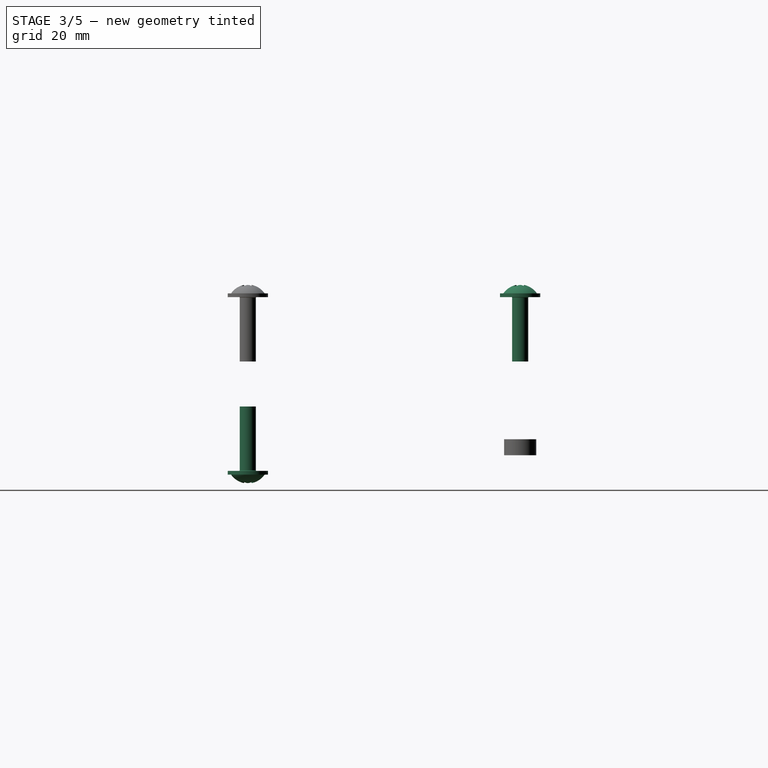
[diagram: stage 3 of 5 — right view after this stage's code; geometry added in this stage tinted green]
FEATURE [Part::FeaturePython] Screw003  label="M3x12-Screw391"  # Fasteners workbench fastener (typed FeaturePython)
  InvalidShape = false
  Placement = pos=(24.638,-25.4,-7.5) rot=(-1,0,0;3.14159rad)
  TreeRank = 0
  ValidateShape = false
  baseObject = -> Body001 [Edge39]
  diameter = 1
  invert = true
  leftHanded = false
  length = 5
  lengthCustom = 12
  matchOuter = false
  offset = 0
  thread = false
  type = 22
FEATURE [PartDesign::Body] Body005  label="Spacer_top"
  AutoGroupSolids = false
  ClaimAllChildren = false
  ExportMode = 0
  Group = -> [Sketch005,Binder004,Pad004]
  InvalidShape = false
  Origin = -> Origin014
  Tip = -> Pad004
  TreeRank = 0
  ValidateShape = false
  _ExportChildren = -> [Binder004,Pad004]
  _GroupVersion = 1
FEATURE [Part::FeaturePython] Screw004  label="M3x12-Screw392"  # Fasteners workbench fastener (typed FeaturePython)
  InvalidShape = false
  Placement = pos=(-24.638,25.4,24.9) rot=(0,0,1;0rad)
  TreeRank = 0
  ValidateShape = false
  baseObject = -> Body003 [Edge93]
  diameter = 1
  invert = false
  leftHanded = false
  length = 5
  lengthCustom = 12
  matchOuter = false
  offset = 0
  thread = false
  type = 22
FEATURE [Part::FeaturePython] Screw005  label="M3x12-Screw393"  # Fasteners workbench fastener (typed FeaturePython)
  InvalidShape = false
  Placement = pos=(24.638,25.4,24.9) rot=(0,0,1;0rad)
  TreeRank = 0
  ValidateShape = false
  baseObject = -> Body003 [Edge96]
  diameter = 1
  invert = false
  leftHanded = false
  length = 5
  lengthCustom = 12
  matchOuter = false
  offset = 0
  thread = false
  type = 22
FEATURE [Part::FeaturePython] Screw006  label="M3x12-Screw394"  # Fasteners workbench fastener (typed FeaturePython)
  InvalidShape = false
  Placement = pos=(-24.638,-25.4,24.9) rot=(0,0,1;0rad)
  TreeRank = 0
  ValidateShape = false
  baseObject = -> Body003 [Edge90]
  diameter = 1
  invert = false
  leftHanded = false
  length = 5
  lengthCustom = 12
  matchOuter = false
  offset = 0
  thread = false
  type = 22
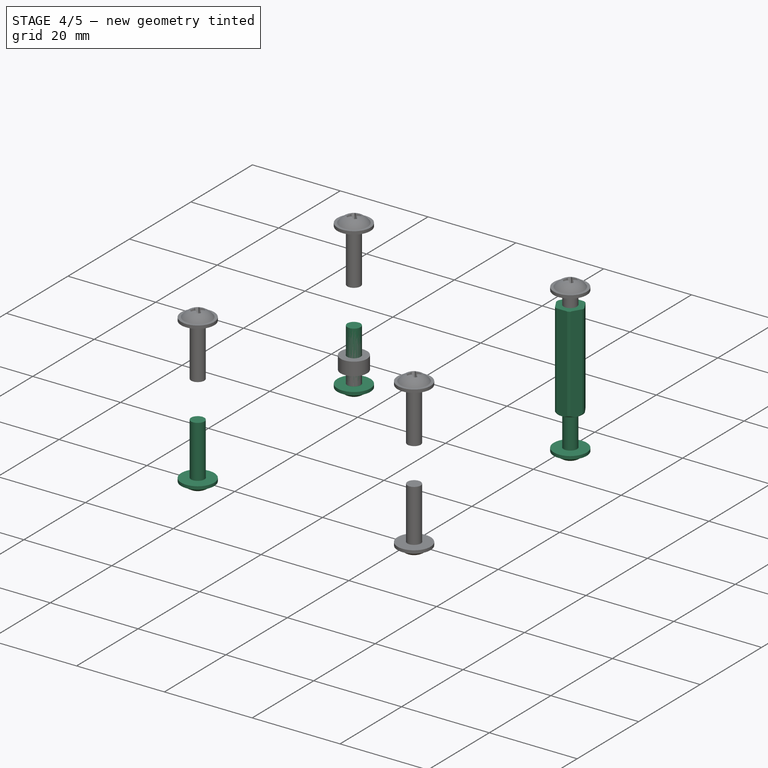
[diagram: stage 4 of 5 — iso view after this stage's code; geometry added in this stage tinted green]
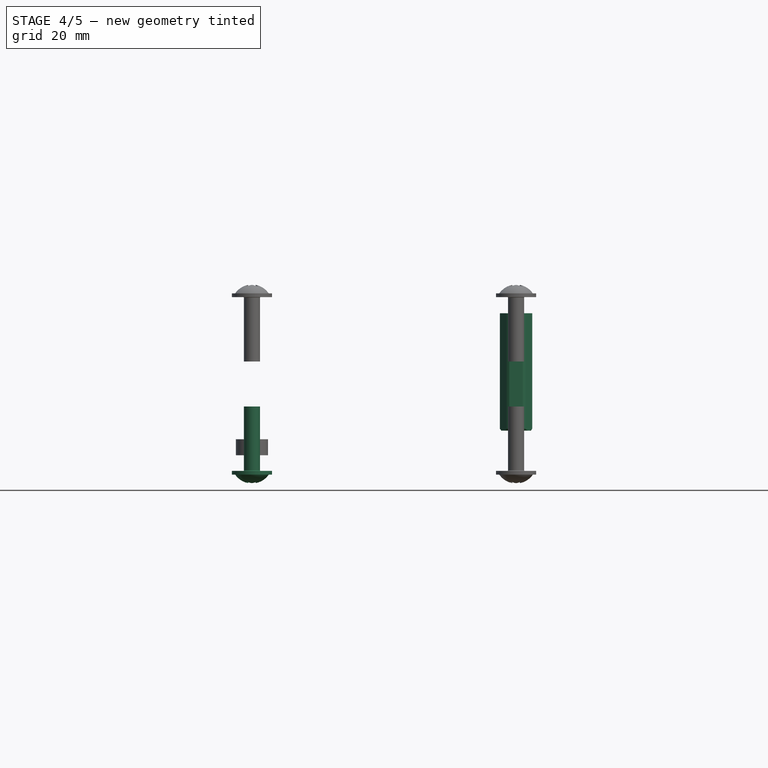
[diagram: stage 4 of 5 — front view after this stage's code; geometry added in this stage tinted green]
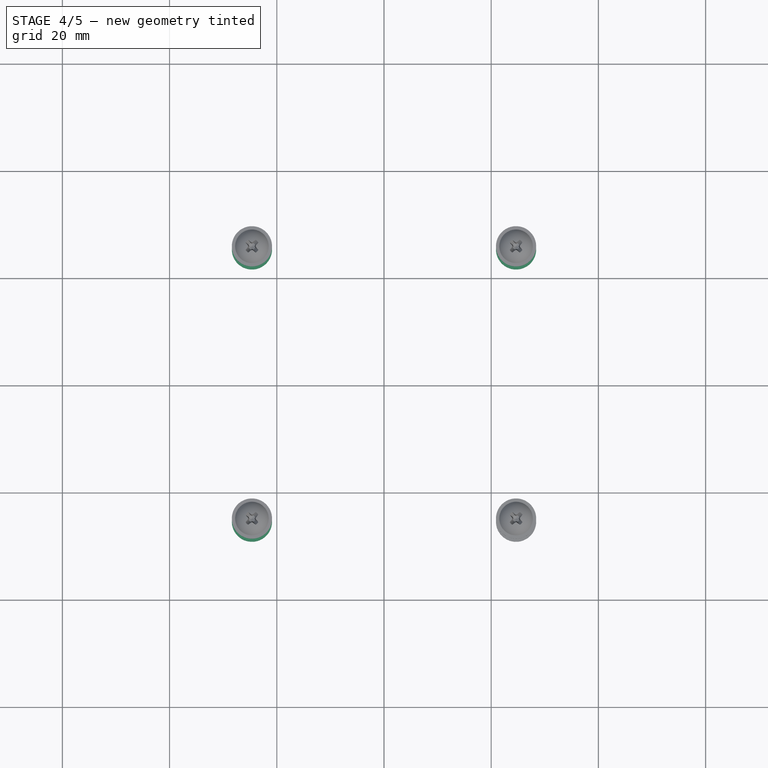
[diagram: stage 4 of 5 — top view after this stage's code; geometry added in this stage tinted green]
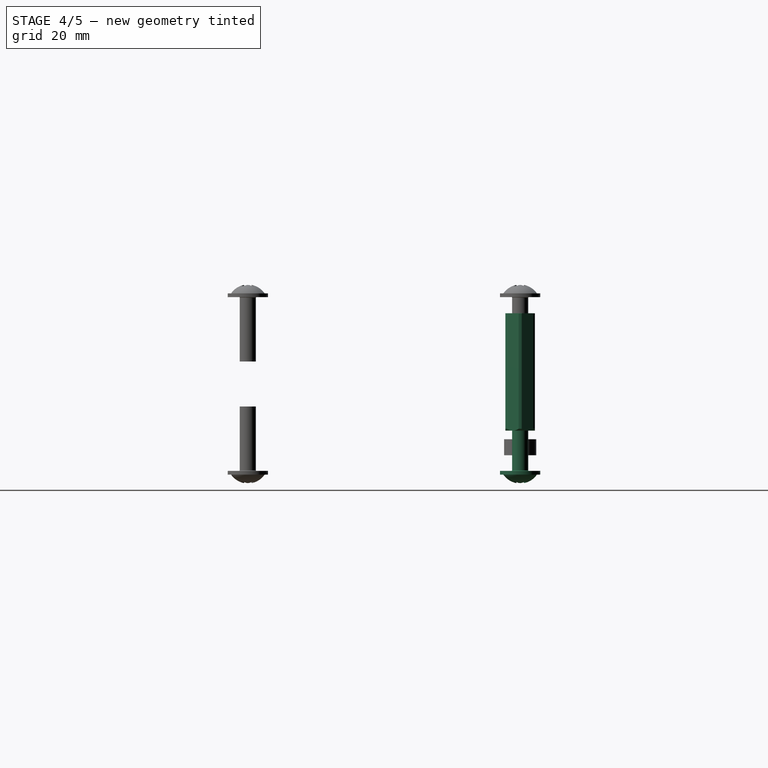
[diagram: stage 4 of 5 — right view after this stage's code; geometry added in this stage tinted green]
FEATURE [Part::FeaturePython] Spacer003  label="M3x22xx5.5-Spacer170"  # Fasteners workbench fastener (typed FeaturePython)
  InvalidShape = false
  Placement = pos=(24.638,25.4,0) rot=(0,0,1;0rad)
  TreeRank = 0
  ValidateShape = false
  baseObject = -> Pcb_fc76 [Edge554]
  diameter = 2
  invert = false
  leftHanded = false
  length = 17
  lengthCustom = 22
  matchOuter = false
  offset = 0
  thread = false
  type = 0
  width = 1
FEATURE [Part::FeaturePython] Screw  label="M3x12-Screw"  # Fasteners workbench fastener (typed FeaturePython)
  InvalidShape = false
  Placement = pos=(-24.638,25.4,-7.5) rot=(-1,0,0;3.14159rad)
  TreeRank = 0
  ValidateShape = false
  baseObject = -> Body001 [Edge45]
  diameter = 1
  invert = true
  leftHanded = false
  length = 5
  lengthCustom = 12
  matchOuter = false
  offset = 0
  thread = false
  type = 22
FEATURE [Part::FeaturePython] Screw001  label="M3x12-Screw389"  # Fasteners workbench fastener (typed FeaturePython)
  InvalidShape = false
  Placement = pos=(24.638,25.4,-7.5) rot=(-1,0,0;3.14159rad)
  TreeRank = 0
  ValidateShape = false
  baseObject = -> Body001 [Edge48]
  diameter = 1
  invert = true
  leftHanded = false
  length = 5
  lengthCustom = 12
  matchOuter = false
  offset = 0
  thread = false
  type = 22
FEATURE [Part::FeaturePython] Screw002  label="M3x12-Screw390"  # Fasteners workbench fastener (typed FeaturePython)
  InvalidShape = false
  Placement = pos=(-24.638,-25.4,-7.5) rot=(-1,0,0;3.14159rad)
  TreeRank = 0
  ValidateShape = false
  baseObject = -> Body001 [Edge42]
  diameter = 1
  invert = true
  leftHanded = false
  length = 5
  lengthCustom = 12
  matchOuter = false
  offset = 0
  thread = false
  type = 22
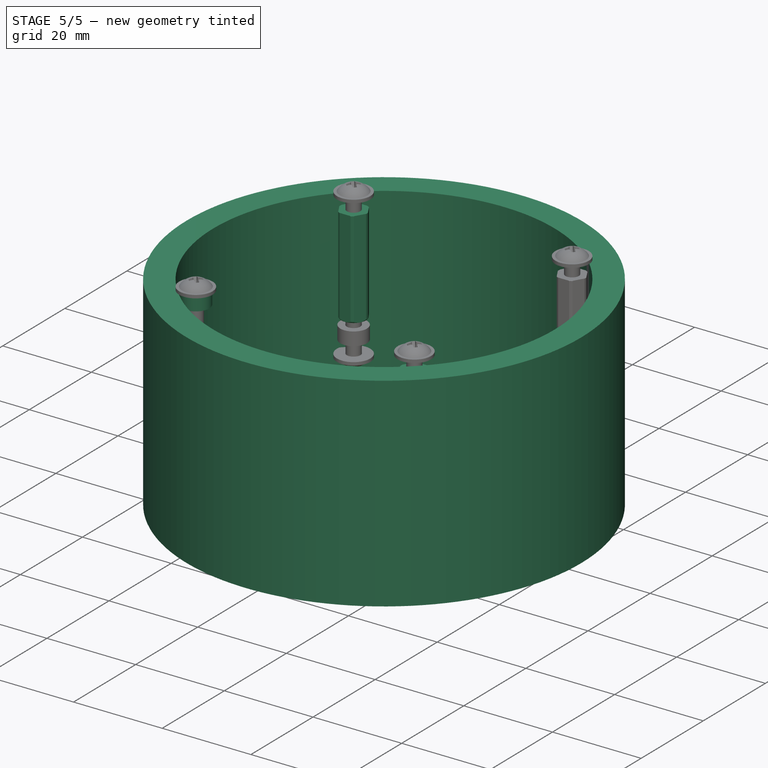
[diagram: stage 5 of 5 — iso view after this stage's code; geometry added in this stage tinted green]
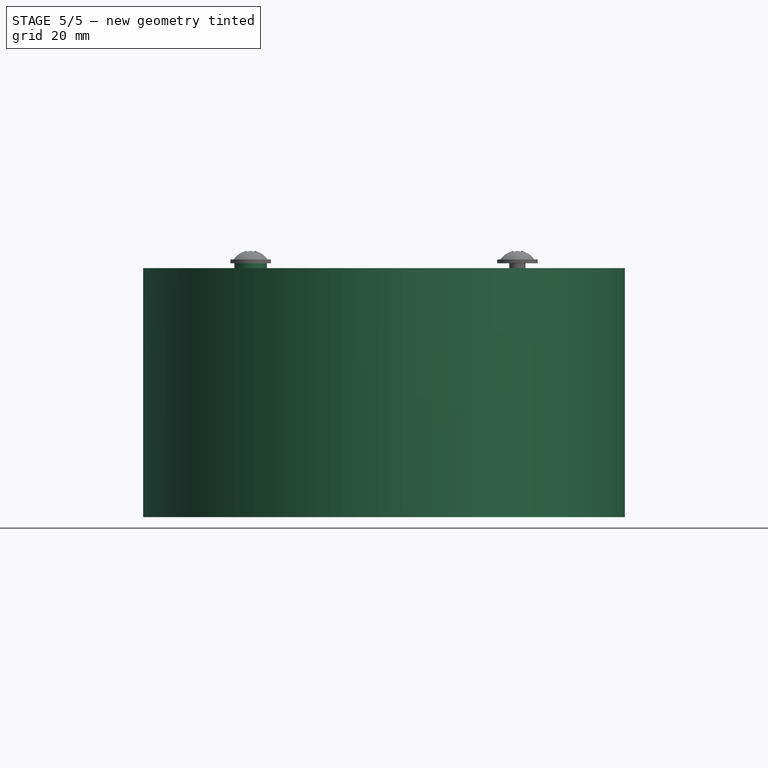
[diagram: stage 5 of 5 — front view after this stage's code; geometry added in this stage tinted green]
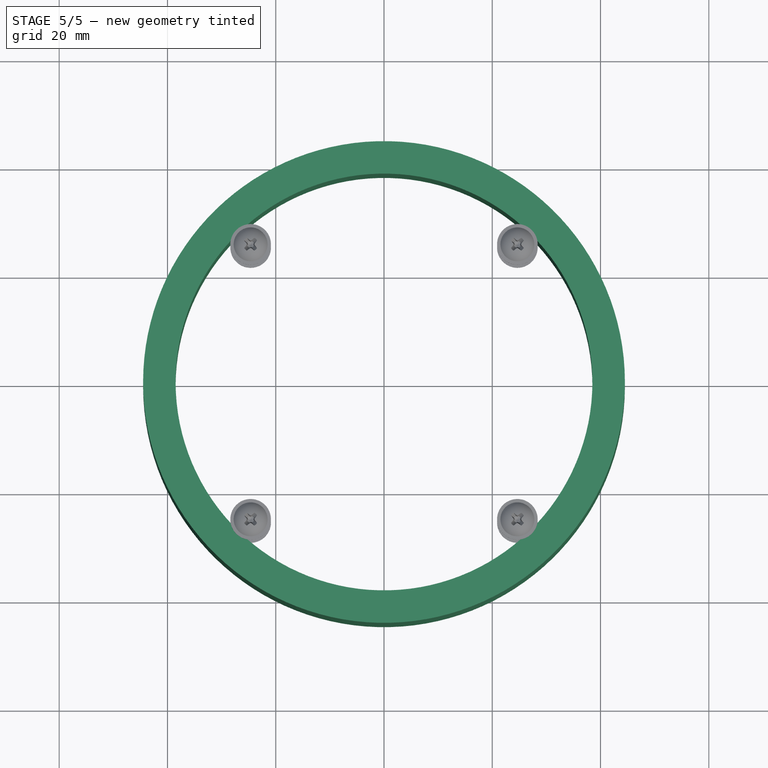
[diagram: stage 5 of 5 — top view after this stage's code; geometry added in this stage tinted green]
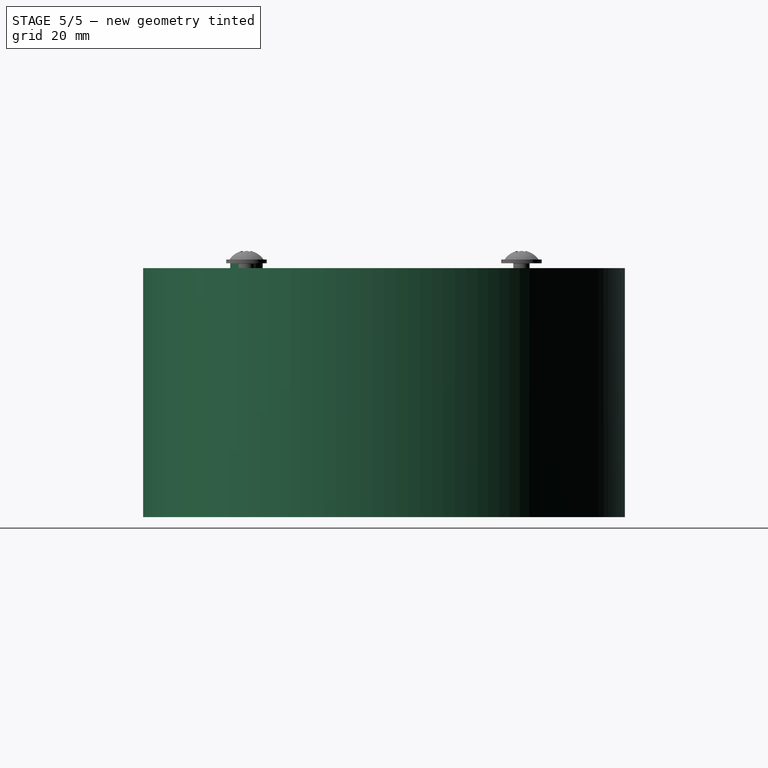
[diagram: stage 5 of 5 — right view after this stage's code; geometry added in this stage tinted green]
FEATURE [PartDesign::CoordinateSystem] Local_CS_fc76
  AttacherType = Attacher::AttachEngine3D
  AttachmentSupport = -> [X_Axis001]
  InvalidShape = false
  MapMode = 2
  Support = -> [X_Axis001]
  TreeRank = 0
  ValidateShape = false
FEATURE [Part::Feature] Pcb_fc76
  InvalidShape = false
  Placement = pos=(-80.01,80.01,0) rot=(0,0,1;0rad)
  TreeRank = 0
  ValidateShape = false
  shape: bbox 58.42 x 58.42 x 1.6 mm, 260 faces (baked)
FEATURE [Sketcher::SketchObject] PCB_Sketch_fc76
  ArcFitTolerance = 0
  ExternalBSplineMaxDegree = 0
  ExternalBSplineTolerance = 0
  FullyConstrained = false
  InternalTolerance = 1e-06
  InvalidShape = false
  MakeInternals = false
  TreeRank = 0
  ValidateShape = false
  sketch-geometry (28):
    g0: LineSegment StartX=4.445 StartY=22.86 StartZ=0 EndX=-4.445 EndY=22.86 EndZ=0
    g1: LineSegment StartX=28.448 StartY=21.59 StartZ=0 EndX=24.384 EndY=21.59 EndZ=0
    g2: LineSegment StartX=-29.21 StartY=24.892 StartZ=0 EndX=-24.892 EndY=29.21 EndZ=0
    g3: LineSegment StartX=-24.892 StartY=29.21 StartZ=0 EndX=24.892 EndY=29.21 EndZ=0
    g4: LineSegment StartX=29.21 StartY=24.892 StartZ=0 EndX=24.892 EndY=29.21 EndZ=0
    g5: LineSegment StartX=24.892 StartY=-29.21 StartZ=0 EndX=29.21 EndY=-24.892 EndZ=0
    g6: LineSegment StartX=24.892 StartY=-29.21 StartZ=0 EndX=-24.892 EndY=-29.21 EndZ=0
    g7: LineSegment StartX=-29.21 StartY=-24.892 StartZ=0 EndX=-24.892 EndY=-29.21 EndZ=0
    g8: LineSegment StartX=29.21 StartY=24.892 StartZ=0 EndX=29.21 EndY=22.352 EndZ=0
    g9: LineSegment StartX=29.21 StartY=18.288 StartZ=0 EndX=29.21 EndY=-24.892 EndZ=0
    g10: LineSegment StartX=-24.384 StartY=21.59 StartZ=0 EndX=-28.448 EndY=21.59 EndZ=0
    g11: LineSegment StartX=-28.448 StartY=19.05 StartZ=0 EndX=-24.384 EndY=19.05 EndZ=0
    g12: LineSegment StartX=-4.445 StartY=26.67 StartZ=0 EndX=4.445 EndY=26.67 EndZ=0
    g13: LineSegment StartX=24.384 StartY=19.05 StartZ=0 EndX=28.448 EndY=19.05 EndZ=0
    g14: LineSegment StartX=-29.21 StartY=24.892 StartZ=0 EndX=-29.21 EndY=22.352 EndZ=0
    g15: LineSegment StartX=-29.21 StartY=-24.892 StartZ=0 EndX=-29.21 EndY=18.288 EndZ=0
    g16: ArcOfCircle CenterX=28.448 CenterY=18.288 CenterZ=0 NormalX=0 NormalY=0 NormalZ=-1 AngleXU=1.5708 Radius=0.762001 StartAngle=0 EndAngle=1.57079
    g17: ArcOfCircle CenterX=-4.445 CenterY=24.765 CenterZ=0 NormalX=0 NormalY=0 NormalZ=-1 AngleXU=-1.5708 Radius=1.905 StartAngle=0 EndAngle=3.14159
    g18: ArcOfCircle CenterX=-28.448 CenterY=18.288 CenterZ=0 NormalX=0 NormalY=0 NormalZ=-1 AngleXU=1.64556e-06 Radius=0.762001 StartAngle=0 EndAngle=1.57079
    g19: ArcOfCircle CenterX=-28.448 CenterY=22.352 CenterZ=0 NormalX=0 NormalY=0 NormalZ=-1 AngleXU=-1.57079 Radius=0.762001 StartAngle=0 EndAngle=1.57079
    g20: ArcOfCircle CenterX=-24.384 CenterY=20.32 CenterZ=0 NormalX=0 NormalY=0 NormalZ=-1 AngleXU=1.5708 Radius=1.27 StartAngle=0 EndAngle=3.14159
    g21: ArcOfCircle CenterX=4.445 CenterY=24.765 CenterZ=0 NormalX=0 NormalY=0 NormalZ=-1 AngleXU=1.5708 Radius=1.905 StartAngle=0 EndAngle=3.14159
    g22: ArcOfCircle CenterX=24.384 CenterY=20.32 CenterZ=0 NormalX=0 NormalY=0 NormalZ=-1 AngleXU=-1.5708 Radius=1.27 StartAngle=0 EndAngle=3.14159
    g23: ArcOfCircle CenterX=28.448 CenterY=22.352 CenterZ=0 NormalX=0 NormalY=0 NormalZ=-1 AngleXU=-3.14159 Radius=0.762001 StartAngle=0 EndAngle=1.57079
    g24: Circle CenterX=24.638 CenterY=25.4 CenterZ=0 NormalX=0 NormalY=0 NormalZ=1 AngleXU=0 Radius=1.524
    g25: Circle CenterX=-24.638 CenterY=-25.4 CenterZ=0 NormalX=0 NormalY=0 NormalZ=1 AngleXU=0 Radius=1.524
    g26: Circle CenterX=24.638 CenterY=-25.4 CenterZ=0 NormalX=0 NormalY=0 NormalZ=1 AngleXU=0 Radius=1.524
    g27: Circle CenterX=-24.638 CenterY=25.4 CenterZ=0 NormalX=0 NormalY=0 NormalZ=1 AngleXU=0 Radius=1.524
  constraints (24):
    c: Coincident(g7,g15)
    c: Coincident(g15,g18)
    c: Coincident(g14,g19)
    c: Coincident(g2,g14)
    c: Coincident(g11,g18)
    c: Coincident(g10,g19)
    c: Coincident(g6,g7)
    c: Coincident(g2,g3)
    c: Coincident(g11,g20)
    c: Coincident(g10,g20)
    c: Coincident(g0,g17)
    c: Coincident(g12,g17)
    c: Coincident(g0,g21)
    c: Coincident(g12,g21)
    c: Coincident(g13,g22)
    c: Coincident(g1,g22)
    c: Coincident(g5,g6)
    c: Coincident(g3,g4)
    c: Coincident(g13,g16)
    c: Coincident(g1,g23)
    c: Coincident(g5,g9)
    c: Coincident(g9,g16)
    c: Coincident(g8,g23)
    c: Coincident(g4,g8)
FEATURE [Part::Feature] Shape  label="J242_PinHeader_1x01_P254mm_Vertical_f4a8cf263368"
  InvalidShape = false
  Placement = pos=(25.4,8.89,0) rot=(0,0,1;0rad)
  TreeRank = 0
  ValidateShape = false
  shape: bbox 2.54 x 2.54 x 11.54 mm, 28 faces (baked)
FEATURE [App::Link] J242_PinHeader_1x01_P254mm_Vertical_f4a8cf263368_ln_  label="J234_PinHeader_1x01_P254mm_Vertical_c947459211bd"
  AutoLinkLabel = false
  AutoPlacement = true
  LinkPlacement = pos=(27.94,16.51,0) rot=(0,0,1;0rad)
  LinkedObject = -> Shape
  Placement = pos=(27.94,16.51,0) rot=(0,0,1;0rad)
  SyncGroupVisibility = false
  TreeRank = 0
  _LinkVersion = 1
FEATURE [App::Link] J242_PinHeader_1x01_P254mm_Vertical_f4a8cf263368_ln_001  label="J155_PinHeader_1x01_P254mm_Vertical_ff6def30fb18"
  AutoLinkLabel = false
  AutoPlacement = true
  LinkPlacement = pos=(-7.62,-27.94,0) rot=(0,0,1;1.5708rad)
  LinkedObject = -> Shape
  Placement = pos=(-7.62,-27.94,0) rot=(0,0,1;1.5708rad)
  SyncGroupVisibility = false
  TreeRank = 0
  _LinkVersion = 1
FEATURE [App::Link] J242_PinHeader_1x01_P254mm_Vertical_f4a8cf263368_ln_002  label="J189_PinHeader_1x01_P254mm_Vertical_d8645d083c30"
  AutoLinkLabel = false
  AutoPlacement = true
  LinkPlacement = pos=(-22.86,-11.43,0) rot=(0,0,1;0rad)
  LinkedObject = -> Shape
  Placement = pos=(-22.86,-11.43,0) rot=(0,0,1;0rad)
  SyncGroupVisibility = false
  TreeRank = 0
  _LinkVersion = 1
FEATURE [App::Link] J242_PinHeader_1x01_P254mm_Vertical_f4a8cf263368_ln_003  label="J175_PinHeader_1x01_P254mm_Vertical_3124ff816630"
  AutoLinkLabel = false
  AutoPlacement = true
  LinkPlacement = pos=(17.78,-27.94,0) rot=(0,0,1;1.5708rad)
  LinkedObject = -> Shape
  Placement = pos=(17.78,-27.94,0) rot=(0,0,1;1.5708rad)
  SyncGroupVisibility = false
  TreeRank = 0
  _LinkVersion = 1
FEATURE [App::Link] J242_PinHeader_1x01_P254mm_Vertical_f4a8cf263368_ln_004  label="J225_PinHeader_1x01_P254mm_Vertical_a69a00fcb171"
  AutoLinkLabel = false
  AutoPlacement = true
  LinkPlacement = pos=(-22.86,13.97,0) rot=(0,0,1;0rad)
  LinkedObject = -> Shape
  Placement = pos=(-22.86,13.97,0) rot=(0,0,1;0rad)
  SyncGroupVisibility = false
  TreeRank = 0
  _LinkVersion = 1
FEATURE [App::Link] J242_PinHeader_1x01_P254mm_Vertical_f4a8cf263368_ln_005  label="J142_PinHeader_1x01_P254mm_Vertical_9caf193ca96f"
  AutoLinkLabel = false
  AutoPlacement = true
  LinkPlacement = pos=(27.94,-1.27,0) rot=(0,0,1;0rad)
  LinkedObject = -> Shape
  Placement = pos=(27.94,-1.27,0) rot=(0,0,1;0rad)
  SyncGroupVisibility = false
  TreeRank = 0
  _LinkVersion = 1
FEATURE [App::Link] J242_PinHeader_1x01_P254mm_Vertical_f4a8cf263368_ln_006  label="J186_PinHeader_1x01_P254mm_Vertical_221730ae452f"
  AutoLinkLabel = false
  AutoPlacement = true
  LinkPlacement = pos=(-22.86,-3.81,0) rot=(0,0,1;0rad)
  LinkedObject = -> Shape
  Placement = pos=(-22.86,-3.81,0) rot=(0,0,1;0rad)
  SyncGroupVisibility = false
  TreeRank = 0
  _LinkVersion = 1
FEATURE [App::Link] J242_PinHeader_1x01_P254mm_Vertical_f4a8cf263368_ln_007  label="J144_PinHeader_1x01_P254mm_Vertical_72917585412c"
  AutoLinkLabel = false
  AutoPlacement = true
  LinkPlacement = pos=(27.94,-6.35,0) rot=(0,0,1;0rad)
  LinkedObject = -> Shape
  Placement = pos=(27.94,-6.35,0) rot=(0,0,1;0rad)
  SyncGroupVisibility = false
  TreeRank = 0
  _LinkVersion = 1
FEATURE [App::Link] J242_PinHeader_1x01_P254mm_Vertical_f4a8cf263368_ln_008  label="J154_PinHeader_1x01_P254mm_Vertical_8868c564dc43"
  AutoLinkLabel = false
  AutoPlacement = true
  LinkPlacement = pos=(-10.16,-27.94,0) rot=(0,0,1;1.5708rad)
  LinkedObject = -> Shape
  Placement = pos=(-10.16,-27.94,0) rot=(0,0,1;1.5708rad)
  SyncGroupVisibility = false
  TreeRank = 0
  _LinkVersion = 1
FEATURE [App::Link] J242_PinHeader_1x01_P254mm_Vertical_f4a8cf263368_ln_009  label="J226_PinHeader_1x01_P254mm_Vertical_267e1c32a748"
  AutoLinkLabel = false
  AutoPlacement = true
  LinkPlacement = pos=(-27.94,11.43,0) rot=(0,0,1;0rad)
  LinkedObject = -> Shape
  Placement = pos=(-27.94,11.43,0) rot=(0,0,1;0rad)
  SyncGroupVisibility = false
  TreeRank = 0
  _LinkVersion = 1
FEATURE [App::Link] J242_PinHeader_1x01_P254mm_Vertical_f4a8cf263368_ln_010  label="J137_PinHeader_1x01_P254mm_Vertical_72450bf636fe"
  AutoLinkLabel = false
  AutoPlacement = true
  LinkPlacement = pos=(25.4,-13.97,0) rot=(0,0,1;0rad)
  LinkedObject = -> Shape
  Placement = pos=(25.4,-13.97,0) rot=(0,0,1;0rad)
  SyncGroupVisibility = false
  TreeRank = 0
  _LinkVersion = 1
FEATURE [App::Link] J242_PinHeader_1x01_P254mm_Vertical_f4a8cf263368_ln_011  label="J149_PinHeader_1x01_P254mm_Vertical_723e9f78a739"
  AutoLinkLabel = false
  AutoPlacement = true
  LinkPlacement = pos=(27.94,-19.05,0) rot=(0,0,1;0rad)
  LinkedObject = -> Shape
  Placement = pos=(27.94,-19.05,0) rot=(0,0,1;0rad)
  SyncGroupVisibility = false
  TreeRank = 0
  _LinkVersion = 1
FEATURE [App::Link] J242_PinHeader_1x01_P254mm_Vertical_f4a8cf263368_ln_012  label="J237_PinHeader_1x01_P254mm_Vertical_17eb20bb6841"
  AutoLinkLabel = false
  AutoPlacement = true
  LinkPlacement = pos=(27.94,13.97,0) rot=(0,0,1;0rad)
  LinkedObject = -> Shape
  Placement = pos=(27.94,13.97,0) rot=(0,0,1;0rad)
  SyncGroupVisibility = false
  TreeRank = 0
  _LinkVersion = 1
FEATURE [App::Link] J242_PinHeader_1x01_P254mm_Vertical_f4a8cf263368_ln_013  label="J140_PinHeader_1x01_P254mm_Vertical_a8122f2b0419"
  AutoLinkLabel = false
  AutoPlacement = true
  LinkPlacement = pos=(27.94,3.81,0) rot=(0,0,1;0rad)
  LinkedObject = -> Shape
  Placement = pos=(27.94,3.81,0) rot=(0,0,1;0rad)
  SyncGroupVisibility = false
  TreeRank = 0
  _LinkVersion = 1
FEATURE [App::Link] J242_PinHeader_1x01_P254mm_Vertical_f4a8cf263368_ln_014  label="J132_PinHeader_1x01_P254mm_Vertical_179a2540116b"
  AutoLinkLabel = false
  AutoPlacement = true
  LinkPlacement = pos=(25.4,-1.27,0) rot=(0,0,1;0rad)
  LinkedObject = -> Shape
  Placement = pos=(25.4,-1.27,0) rot=(0,0,1;0rad)
  SyncGroupVisibility = false
  TreeRank = 0
  _LinkVersion = 1
FEATURE [App::Link] J242_PinHeader_1x01_P254mm_Vertical_f4a8cf263368_ln_015  label="J158_PinHeader_1x01_P254mm_Vertical_83da06d7740f"
  AutoLinkLabel = false
  AutoPlacement = true
  LinkPlacement = pos=(0,-27.94,0) rot=(0,0,1;1.5708rad)
  LinkedObject = -> Shape
  Placement = pos=(0,-27.94,0) rot=(0,0,1;1.5708rad)
  SyncGroupVisibility = false
  TreeRank = 0
  _LinkVersion = 1
FEATURE [App::Link] J242_PinHeader_1x01_P254mm_Vertical_f4a8cf263368_ln_016  label="J111_PinHeader_1x01_P254mm_Vertical_deff7e91621b"
  AutoLinkLabel = false
  AutoPlacement = true
  LinkPlacement = pos=(-25.4,1.27,0) rot=(0,0,1;0rad)
  LinkedObject = -> Shape
  Placement = pos=(-25.4,1.27,0) rot=(0,0,1;0rad)
  SyncGroupVisibility = false
  TreeRank = 0
  _LinkVersion = 1
FEATURE [App::Link] J242_PinHeader_1x01_P254mm_Vertical_f4a8cf263368_ln_017  label="J124_PinHeader_1x01_P254mm_Vertical_5b01b3a3171a"
  AutoLinkLabel = false
  AutoPlacement = true
  LinkPlacement = pos=(22.86,-6.35,0) rot=(0,0,1;0rad)
  LinkedObject = -> Shape
  Placement = pos=(22.86,-6.35,0) rot=(0,0,1;0rad)
  SyncGroupVisibility = false
  TreeRank = 0
  _LinkVersion = 1
FEATURE [App::Link] J242_PinHeader_1x01_P254mm_Vertical_f4a8cf263368_ln_018  label="J174_PinHeader_1x01_P254mm_Vertical_b2e451a9fdc0"
  AutoLinkLabel = false
  AutoPlacement = true
  LinkPlacement = pos=(15.24,-27.94,0) rot=(0,0,1;1.5708rad)
  LinkedObject = -> Shape
  Placement = pos=(15.24,-27.94,0) rot=(0,0,1;1.5708rad)
  SyncGroupVisibility = false
  TreeRank = 0
  _LinkVersion = 1
FEATURE [App::Link] J242_PinHeader_1x01_P254mm_Vertical_f4a8cf263368_ln_019  label="J143_PinHeader_1x01_P254mm_Vertical_8dae7fd2a29e"
  AutoLinkLabel = false
  AutoPlacement = true
  LinkPlacement = pos=(27.94,-3.81,0) rot=(0,0,1;0rad)
  LinkedObject = -> Shape
  Placement = pos=(27.94,-3.81,0) rot=(0,0,1;0rad)
  SyncGroupVisibility = false
  TreeRank = 0
  _LinkVersion = 1
FEATURE [App::Link] J242_PinHeader_1x01_P254mm_Vertical_f4a8cf263368_ln_020  label="J145_PinHeader_1x01_P254mm_Vertical_28a10d5fd092"
  AutoLinkLabel = false
  AutoPlacement = true
  LinkPlacement = pos=(27.94,-8.89,0) rot=(0,0,1;0rad)
  LinkedObject = -> Shape
  Placement = pos=(27.94,-8.89,0) rot=(0,0,1;0rad)
  SyncGroupVisibility = false
  TreeRank = 0
  _LinkVersion = 1
FEATURE [App::Link] J242_PinHeader_1x01_P254mm_Vertical_f4a8cf263368_ln_021  label="J236_PinHeader_1x01_P254mm_Vertical_9f7b85ee7d25"
  AutoLinkLabel = false
  AutoPlacement = true
  LinkPlacement = pos=(25.4,13.97,0) rot=(0,0,1;0rad)
  LinkedObject = -> Shape
  Placement = pos=(25.4,13.97,0) rot=(0,0,1;0rad)
  SyncGroupVisibility = false
  TreeRank = 0
  _LinkVersion = 1
FEATURE [App::Link] J242_PinHeader_1x01_P254mm_Vertical_f4a8cf263368_ln_022  label="J232_PinHeader_1x01_P254mm_Vertical_0079b8e11a58"
  AutoLinkLabel = false
  AutoPlacement = true
  LinkPlacement = pos=(22.86,16.51,0) rot=(0,0,1;0rad)
  LinkedObject = -> Shape
  Placement = pos=(22.86,16.51,0) rot=(0,0,1;0rad)
  SyncGroupVisibility = false
  TreeRank = 0
  _LinkVersion = 1
FEATURE [App::Link] J242_PinHeader_1x01_P254mm_Vertical_f4a8cf263368_ln_023  label="J133_PinHeader_1x01_P254mm_Vertical_b280d8a2bb1c"
  AutoLinkLabel = false
  AutoPlacement = true
  LinkPlacement = pos=(25.4,-3.81,0) rot=(0,0,1;0rad)
  LinkedObject = -> Shape
  Placement = pos=(25.4,-3.81,0) rot=(0,0,1;0rad)
  SyncGroupVisibility = false
  TreeRank = 0
  _LinkVersion = 1
FEATURE [App::Link] J242_PinHeader_1x01_P254mm_Vertical_f4a8cf263368_ln_024  label="J148_PinHeader_1x01_P254mm_Vertical_29fe33e961d7"
  AutoLinkLabel = false
  AutoPlacement = true
  LinkPlacement = pos=(27.94,-16.51,0) rot=(0,0,1;0rad)
  LinkedObject = -> Shape
  Placement = pos=(27.94,-16.51,0) rot=(0,0,1;0rad)
  SyncGroupVisibility = false
  TreeRank = 0
  _LinkVersion = 1
FEATURE [App::Link] J242_PinHeader_1x01_P254mm_Vertical_f4a8cf263368_ln_025  label="J196_PinHeader_1x01_P254mm_Vertical_c6a0c606a5a0"
  AutoLinkLabel = false
  AutoPlacement = true
  LinkPlacement = pos=(-20.32,-21.59,0) rot=(0,0,1;1.5708rad)
  LinkedObject = -> Shape
  Placement = pos=(-20.32,-21.59,0) rot=(0,0,1;1.5708rad)
  SyncGroupVisibility = false
  TreeRank = 0
  _LinkVersion = 1
FEATURE [App::Link] J242_PinHeader_1x01_P254mm_Vertical_f4a8cf263368_ln_026  label="J160_PinHeader_1x01_P254mm_Vertical_e5304cd7fcb8"
  AutoLinkLabel = false
  AutoPlacement = true
  LinkPlacement = pos=(-20.32,-25.4,0) rot=(0,0,1;1.5708rad)
  LinkedObject = -> Shape
  Placement = pos=(-20.32,-25.4,0) rot=(0,0,1;1.5708rad)
  SyncGroupVisibility = false
  TreeRank = 0
  _LinkVersion = 1
FEATURE [Part::Feature] Part__Feature  label="FC_16_cp_sp"
  InvalidShape = false
  TreeRank = 0
  ValidateShape = false
  shape: bbox 31.75 x 31.75 x 1.6 mm, 36 faces (baked)
FEATURE [Part::Feature] Part__Feature001  label="FC_16_cp_sp001"
  InvalidShape = false
  TreeRank = 0
  ValidateShape = false
  shape: bbox 1.25 x 2 x 1.25 mm, 28 faces (baked)
FEATURE [Part::Feature] Part__Feature002  label="FC_16_cp_sp002"
  InvalidShape = false
  TreeRank = 0
  ValidateShape = false
  shape: bbox 32 x 32 x 13.3 mm, 258 faces (baked)
FEATURE [Part::Feature] Part__Feature003  label="FC_16_cp_sp003"
  InvalidShape = false
  TreeRank = 0
  ValidateShape = false
  shape: bbox 20.32 x 2.54 x 3 mm, 94 faces (baked)
FEATURE [Part::Feature] Part__Feature004  label="FC_16_cp_sp004"
  InvalidShape = false
  TreeRank = 0
  ValidateShape = false
  shape: bbox 1.8 x 1.8 x 7.4 mm, 10 faces (baked)
FEATURE [Part::Feature] Part__Feature005  label="FC_16_cp_sp005"
  InvalidShape = false
  TreeRank = 0
  ValidateShape = false
  shape: bbox 1.8 x 1.8 x 7.4 mm, 10 faces (baked)
FEATURE [Part::Feature] Part__Feature006  label="FC_16_cp_sp006"
  InvalidShape = false
  TreeRank = 0
  ValidateShape = false
  shape: bbox 1.8 x 1.8 x 7.4 mm, 10 faces (baked)
FEATURE [Part::Feature] Part__Feature007  label="FC_16_cp_sp007"
  InvalidShape = false
  TreeRank = 0
  ValidateShape = false
  shape: bbox 1.8 x 1.8 x 7.4 mm, 10 faces (baked)
FEATURE [Part::Feature] Part__Feature008  label="FC_16_cp_sp008"
  InvalidShape = false
  TreeRank = 0
  ValidateShape = false
  shape: bbox 1.8 x 1.8 x 7.4 mm, 10 faces (baked)
FEATURE [Part::Feature] Part__Feature009  label="FC_16_cp_sp009"
  InvalidShape = false
  TreeRank = 0
  ValidateShape = false
  shape: bbox 1.8 x 1.8 x 7.4 mm, 10 faces (baked)
FEATURE [Part::Feature] Part__Feature010  label="FC_16_cp_sp010"
  InvalidShape = false
  TreeRank = 0
  ValidateShape = false
  shape: bbox 1.8 x 1.8 x 7.4 mm, 10 faces (baked)
FEATURE [Part::Feature] Part__Feature011  label="FC_16_cp_sp011"
  InvalidShape = false
  TreeRank = 0
  ValidateShape = false
  shape: bbox 1.8 x 1.8 x 7.4 mm, 10 faces (baked)
FEATURE [Part::Feature] Part__Feature012  label="FC_16_cp_sp012"
  InvalidShape = false
  TreeRank = 0
  ValidateShape = false
  shape: bbox 1 x 1 x 2.04 mm, 27 faces (baked)
FEATURE [Part::Feature] Part__Feature013  label="FC_16_cp_sp013"
  InvalidShape = false
  TreeRank = 0
  ValidateShape = false
  shape: bbox 1 x 1 x 2.04 mm, 27 faces (baked)
FEATURE [Part::Feature] Part__Feature014  label="FC_16_cp_sp014"
  InvalidShape = false
  TreeRank = 0
  ValidateShape = false
  shape: bbox 1 x 1 x 2.04 mm, 27 faces (baked)
FEATURE [Part::Feature] Part__Feature015  label="FC_16_cp_sp015"
  InvalidShape = false
  TreeRank = 0
  ValidateShape = false
  shape: bbox 1 x 1 x 2.04 mm, 27 faces (baked)
FEATURE [Part::Feature] Part__Feature016  label="FC_16_cp_sp016"
  InvalidShape = false
  TreeRank = 0
  ValidateShape = false
  shape: bbox 1 x 1 x 2.04 mm, 27 faces (baked)
FEATURE [Part::Feature] Part__Feature017  label="FC_16_cp_sp017"
  InvalidShape = false
  TreeRank = 0
  ValidateShape = false
  shape: bbox 1 x 1 x 2.04 mm, 27 faces (baked)
FEATURE [Part::Feature] Part__Feature018  label="FC_16_cp_sp018"
  InvalidShape = false
  TreeRank = 0
  ValidateShape = false
  shape: bbox 1 x 1 x 2.04 mm, 27 faces (baked)
FEATURE [Part::Feature] Part__Feature019  label="FC_16_cp_sp019"
  InvalidShape = false
  TreeRank = 0
  ValidateShape = false
  shape: bbox 1 x 1 x 2.04 mm, 27 faces (baked)
FEATURE [Part::Feature] Part__Feature020  label="FC_16_cp_sp020"
  InvalidShape = false
  TreeRank = 0
  ValidateShape = false
  shape: bbox 20.32 x 2.54 x 3 mm, 94 faces (baked)
FEATURE [Part::Feature] Part__Feature021  label="FC_16_cp_sp021"
  InvalidShape = false
  TreeRank = 0
  ValidateShape = false
  shape: bbox 1.8 x 1.8 x 7.4 mm, 10 faces (baked)
FEATURE [Part::Feature] Part__Feature022  label="FC_16_cp_sp022"
  InvalidShape = false
  TreeRank = 0
  ValidateShape = false
  shape: bbox 1.8 x 1.8 x 7.4 mm, 10 faces (baked)
FEATURE [Part::Feature] Part__Feature023  label="FC_16_cp_sp023"
  InvalidShape = false
  TreeRank = 0
  ValidateShape = false
  shape: bbox 1.8 x 1.8 x 7.4 mm, 10 faces (baked)
FEATURE [Part::Feature] Part__Feature024  label="FC_16_cp_sp024"
  InvalidShape = false
  TreeRank = 0
  ValidateShape = false
  shape: bbox 1.8 x 1.8 x 7.4 mm, 10 faces (baked)
FEATURE [Part::Feature] Part__Feature025  label="FC_16_cp_sp025"
  InvalidShape = false
  TreeRank = 0
  ValidateShape = false
  shape: bbox 1.8 x 1.8 x 7.4 mm, 10 faces (baked)
FEATURE [Part::Feature] Part__Feature026  label="FC_16_cp_sp026"
  InvalidShape = false
  TreeRank = 0
  ValidateShape = false
  shape: bbox 1.8 x 1.8 x 7.4 mm, 10 faces (baked)
FEATURE [Part::Feature] Part__Feature027  label="FC_16_cp_sp027"
  InvalidShape = false
  TreeRank = 0
  ValidateShape = false
  shape: bbox 1.8 x 1.8 x 7.4 mm, 10 faces (baked)
FEATURE [Part::Feature] Part__Feature028  label="FC_16_cp_sp028"
  InvalidShape = false
  TreeRank = 0
  ValidateShape = false
  shape: bbox 1.8 x 1.8 x 7.4 mm, 10 faces (baked)
FEATURE [Part::Feature] Part__Feature029  label="FC_16_cp_sp029"
  InvalidShape = false
  TreeRank = 0
  ValidateShape = false
  shape: bbox 1 x 1 x 2.04 mm, 27 faces (baked)
FEATURE [Part::Feature] Part__Feature030  label="FC_16_cp_sp030"
  InvalidShape = false
  TreeRank = 0
  ValidateShape = false
  shape: bbox 1 x 1 x 2.04 mm, 27 faces (baked)
FEATURE [Part::Feature] Part__Feature031  label="FC_16_cp_sp031"
  InvalidShape = false
  TreeRank = 0
  ValidateShape = false
  shape: bbox 1 x 1 x 2.04 mm, 27 faces (baked)
FEATURE [Part::Feature] Part__Feature032  label="FC_16_cp_sp032"
  InvalidShape = false
  TreeRank = 0
  ValidateShape = false
  shape: bbox 1 x 1 x 2.04 mm, 27 faces (baked)
FEATURE [Part::Feature] Part__Feature033  label="FC_16_cp_sp033"
  InvalidShape = false
  TreeRank = 0
  ValidateShape = false
  shape: bbox 1 x 1 x 2.04 mm, 27 faces (baked)
FEATURE [Part::Feature] Part__Feature034  label="FC_16_cp_sp034"
  InvalidShape = false
  TreeRank = 0
  ValidateShape = false
  shape: bbox 1 x 1 x 2.04 mm, 27 faces (baked)
FEATURE [Part::Feature] Part__Feature035  label="FC_16_cp_sp035"
  InvalidShape = false
  TreeRank = 0
  ValidateShape = false
  shape: bbox 1 x 1 x 2.04 mm, 27 faces (baked)
FEATURE [Part::Feature] Part__Feature036  label="FC_16_cp_sp036"
  InvalidShape = false
  TreeRank = 0
  ValidateShape = false
  shape: bbox 1 x 1 x 2.04 mm, 27 faces (baked)
FEATURE [Part::Feature] Part__Feature037  label="FC_16_cp_sp037"
  InvalidShape = false
  TreeRank = 0
  ValidateShape = false
  shape: bbox 2 x 1.2 x 0.45 mm, 26 faces (baked)
FEATURE [Part::Feature] Part__Feature038  label="FC_16_cp_sp038"
  InvalidShape = false
  TreeRank = 0
  ValidateShape = false
  shape: bbox 15.4 x 10.3 x 2.75 mm, 396 faces (baked)
FEATURE [Part::Feature] Part__Feature039  label="FC_16_cp_sp039"
  InvalidShape = false
  TreeRank = 0
  ValidateShape = false
  shape: bbox 2 x 1.25 x 1.25 mm, 28 faces (baked)
FEATURE [Part::Feature] Part__Feature040  label="FC_16_cp_sp040"
  InvalidShape = false
  TreeRank = 0
  ValidateShape = false
  shape: bbox 2.54 x 12.7 x 10.1 mm, 165 faces (baked)
FEATURE [Part::Feature] Part__Feature041  label="FC_16_cp_sp041"
  InvalidShape = false
  TreeRank = 0
  ValidateShape = false
  shape: bbox 2.54 x 12.7 x 10.1 mm, 165 faces (baked)
FEATURE [Part::Feature] Part__Feature042  label="FC_16_cp_sp042"
  InvalidShape = false
  TreeRank = 0
  ValidateShape = false
  shape: bbox 2.54 x 12.7 x 11.54 mm, 124 faces (baked)
FEATURE [Part::Feature] Part__Feature043  label="FC_16_cp_sp043"
  InvalidShape = false
  TreeRank = 0
  ValidateShape = false
  shape: bbox 2.54 x 12.7 x 11.54 mm, 124 faces (baked)
FEATURE [Part::Feature] Part__Feature044  label="FC_16_cp_sp044"
  InvalidShape = false
  TreeRank = 0
  ValidateShape = false
  shape: bbox 31.6 x 31.6 x 2e-07 mm, 1 faces, 0 solids (baked)
FEATURE [Part::Feature] Part__Feature045  label="FC_16_cp_sp045"
  InvalidShape = false
  TreeRank = 0
  ValidateShape = false
  shape: bbox 0.385 x 9.655 x 2e-07 mm, 1 faces, 0 solids (baked)
FEATURE [Part::Feature] Part__Feature046  label="FC_16_cp_sp046"
  InvalidShape = false
  TreeRank = 0
  ValidateShape = false
  shape: bbox 0.385 x 7.84 x 2e-07 mm, 1 faces, 0 solids (baked)
FEATURE [Part::Feature] Part__Feature047  label="FC_16_cp_sp047"
  InvalidShape = false
  TreeRank = 0
  ValidateShape = false
  shape: bbox 5.284 x 2.531 x 2e-07 mm, 1 faces, 0 solids (baked)
FEATURE [Part::Feature] Part__Feature048  label="FC_16_cp_sp048"
  InvalidShape = false
  TreeRank = 0
  ValidateShape = false
  shape: bbox 3.957 x 2.466 x 2e-07 mm, 1 faces, 0 solids (baked)
FEATURE [Part::Feature] Part__Feature049  label="FC_16_cp_sp049"
  InvalidShape = false
  TreeRank = 0
  ValidateShape = false
  shape: bbox 3.273 x 1.422 x 2e-07 mm, 1 faces, 0 solids (baked)
FEATURE [Part::Feature] Part__Feature050  label="FC_16_cp_sp050"
  InvalidShape = false
  TreeRank = 0
  ValidateShape = false
  shape: bbox 3.273 x 1.422 x 2e-07 mm, 1 faces, 0 solids (baked)
FEATURE [Part::Feature] Part__Feature051  label="FC_16_cp_sp051"
  InvalidShape = false
  TreeRank = 0
  ValidateShape = false
  shape: bbox 3.273 x 1.422 x 2e-07 mm, 1 faces, 0 solids (baked)
FEATURE [Part::Feature] Part__Feature052  label="FC_16_cp_sp052"
  InvalidShape = false
  TreeRank = 0
  ValidateShape = false
  shape: bbox 3.273 x 1.422 x 2e-07 mm, 1 faces, 0 solids (baked)
FEATURE [Part::Feature] Part__Feature053  label="FC_16_cp_sp053"
  InvalidShape = false
  TreeRank = 0
  ValidateShape = false
  shape: bbox 3.273 x 1.422 x 2e-07 mm, 1 faces, 0 solids (baked)
FEATURE [Part::Feature] Part__Feature054  label="FC_16_cp_sp054"
  InvalidShape = false
  TreeRank = 0
  ValidateShape = false
  shape: bbox 3.273 x 1.422 x 2e-07 mm, 1 faces, 0 solids (baked)
FEATURE [Part::Feature] Part__Feature055  label="FC_16_cp_sp055"
  InvalidShape = false
  TreeRank = 0
  ValidateShape = false
  shape: bbox 3.273 x 1.422 x 2e-07 mm, 1 faces, 0 solids (baked)
FEATURE [Part::Feature] Part__Feature056  label="FC_16_cp_sp056"
  InvalidShape = false
  TreeRank = 0
  ValidateShape = false
  shape: bbox 3.273 x 1.422 x 2e-07 mm, 1 faces, 0 solids (baked)
FEATURE [Part::Feature] Part__Feature057  label="FC_16_cp_sp057"
  InvalidShape = false
  TreeRank = 0
  ValidateShape = false
  shape: bbox 3.273 x 1.422 x 2e-07 mm, 1 faces, 0 solids (baked)
FEATURE [Part::Feature] Part__Feature058  label="FC_16_cp_sp058"
  InvalidShape = false
  TreeRank = 0
  ValidateShape = false
  shape: bbox 3.267 x 1.403 x 2e-07 mm, 1 faces, 0 solids (baked)
FEATURE [Part::Feature] Part__Feature059  label="FC_16_cp_sp059"
  InvalidShape = false
  TreeRank = 0
  ValidateShape = false
  shape: bbox 1.15 x 0.7688 x 2e-07 mm, 1 faces, 0 solids (baked)
FEATURE [Part::Feature] Part__Feature060  label="FC_16_cp_sp060"
  InvalidShape = false
  TreeRank = 0
  ValidateShape = false
  shape: bbox 1.15 x 0.7687 x 2e-07 mm, 1 faces, 0 solids (baked)
FEATURE [Part::Feature] Part__Feature061  label="FC_16_cp_sp061"
  InvalidShape = false
  TreeRank = 0
  ValidateShape = false
  shape: bbox 1.15 x 0.7687 x 2e-07 mm, 1 faces, 0 solids (baked)
FEATURE [Part::Feature] Part__Feature062  label="FC_16_cp_sp062"
  InvalidShape = false
  TreeRank = 0
  ValidateShape = false
  shape: bbox 1.15 x 0.7687 x 2e-07 mm, 1 faces, 0 solids (baked)
FEATURE [Part::Feature] Part__Feature063  label="FC_16_cp_sp063"
  InvalidShape = false
  TreeRank = 0
  ValidateShape = false
  shape: bbox 1.149 x 0.7214 x 2e-07 mm, 1 faces, 0 solids (baked)
FEATURE [Part::Feature] Part__Feature064  label="FC_16_cp_sp064"
  InvalidShape = false
  TreeRank = 0
  ValidateShape = false
  shape: bbox 1.149 x 0.7214 x 2e-07 mm, 1 faces, 0 solids (baked)
FEATURE [Part::Feature] Part__Feature065  label="FC_16_cp_sp065"
  InvalidShape = false
  TreeRank = 0
  ValidateShape = false
  shape: bbox 1.15 x 0.7192 x 2e-07 mm, 1 faces, 0 solids (baked)
FEATURE [Part::Feature] Part__Feature066  label="FC_16_cp_sp066"
  InvalidShape = false
  TreeRank = 0
  ValidateShape = false
  shape: bbox 1.15 x 0.7192 x 2e-07 mm, 1 faces, 0 solids (baked)
FEATURE [Part::Feature] Part__Feature067  label="FC_16_cp_sp067"
  InvalidShape = false
  TreeRank = 0
  ValidateShape = false
  shape: bbox 1.15 x 0.7192 x 2e-07 mm, 1 faces, 0 solids (baked)
FEATURE [Part::Feature] Part__Feature068  label="FC_16_cp_sp068"
  InvalidShape = false
  TreeRank = 0
  ValidateShape = false
  shape: bbox 1.15 x 0.7191 x 2e-07 mm, 1 faces, 0 solids (baked)
FEATURE [Part::Feature] Part__Feature069  label="FC_16_cp_sp069"
  InvalidShape = false
  TreeRank = 0
  ValidateShape = false
  shape: bbox 1.145 x 0.719 x 2e-07 mm, 1 faces, 0 solids (baked)
FEATURE [Part::Feature] Part__Feature070  label="FC_16_cp_sp070"
  InvalidShape = false
  TreeRank = 0
  ValidateShape = false
  shape: bbox 1.145 x 0.719 x 2e-07 mm, 1 faces, 0 solids (baked)
FEATURE [Part::Feature] Part__Feature071  label="FC_16_cp_sp071"
  InvalidShape = false
  TreeRank = 0
  ValidateShape = false
  shape: bbox 1.096 x 0.7666 x 2e-07 mm, 1 faces, 0 solids (baked)
FEATURE [Part::Feature] Part__Feature072  label="FC_16_cp_sp072"
  InvalidShape = false
  TreeRank = 0
  ValidateShape = false
  shape: bbox 1.1 x 0.719 x 2e-07 mm, 1 faces, 0 solids (baked)
FEATURE [Part::Feature] Part__Feature073  label="FC_16_cp_sp073"
  InvalidShape = false
  TreeRank = 0
  ValidateShape = false
  shape: bbox 1.1 x 0.719 x 2e-07 mm, 1 faces, 0 solids (baked)
FEATURE [Part::Feature] Part__Feature074  label="FC_16_cp_sp074"
  InvalidShape = false
  TreeRank = 0
  ValidateShape = false
  shape: bbox 1.1 x 0.719 x 2e-07 mm, 1 faces, 0 solids (baked)
FEATURE [Part::Feature] Part__Feature075  label="FC_16_cp_sp075"
  InvalidShape = false
  TreeRank = 0
  ValidateShape = false
  shape: bbox 1.1 x 0.719 x 2e-07 mm, 1 faces, 0 solids (baked)
FEATURE [Part::Feature] Part__Feature076  label="FC_16_cp_sp076"
  InvalidShape = false
  TreeRank = 0
  ValidateShape = false
  shape: bbox 1.1 x 0.719 x 2e-07 mm, 1 faces, 0 solids (baked)
FEATURE [Part::Feature] Part__Feature077  label="FC_16_cp_sp077"
  InvalidShape = false
  TreeRank = 0
  ValidateShape = false
  shape: bbox 1.1 x 0.719 x 2e-07 mm, 1 faces, 0 solids (baked)
FEATURE [Part::Feature] Part__Feature078  label="FC_16_cp_sp078"
  InvalidShape = false
  TreeRank = 0
  ValidateShape = false
  shape: bbox 1.1 x 0.719 x 2e-07 mm, 1 faces, 0 solids (baked)
FEATURE [Part::Feature] Part__Feature079  label="FC_16_cp_sp079"
  InvalidShape = false
  TreeRank = 0
  ValidateShape = false
  shape: bbox 1.1 x 0.719 x 2e-07 mm, 1 faces, 0 solids (baked)
FEATURE [Part::Feature] Part__Feature080  label="FC_16_cp_sp080"
  InvalidShape = false
  TreeRank = 0
  ValidateShape = false
  shape: bbox 1.1 x 0.719 x 2e-07 mm, 1 faces, 0 solids (baked)
FEATURE [Part::Feature] Part__Feature081  label="FC_16_cp_sp081"
  InvalidShape = false
  TreeRank = 0
  ValidateShape = false
  shape: bbox 1.1 x 0.719 x 2e-07 mm, 1 faces, 0 solids (baked)
FEATURE [Part::Feature] Part__Feature082  label="FC_16_cp_sp082"
  InvalidShape = false
  TreeRank = 0
  ValidateShape = false
  shape: bbox 1.1 x 0.719 x 2e-07 mm, 1 faces, 0 solids (baked)
FEATURE [Part::Feature] Part__Feature083  label="FC_16_cp_sp083"
  InvalidShape = false
  TreeRank = 0
  ValidateShape = false
  shape: bbox 1.1 x 0.719 x 2e-07 mm, 1 faces, 0 solids (baked)
FEATURE [Part::Feature] Part__Feature084  label="FC_16_cp_sp084"
  InvalidShape = false
  TreeRank = 0
  ValidateShape = false
  shape: bbox 1.1 x 0.719 x 2e-07 mm, 1 faces, 0 solids (baked)
FEATURE [Part::Feature] Part__Feature085  label="FC_16_cp_sp085"
  InvalidShape = false
  TreeRank = 0
  ValidateShape = false
  shape: bbox 1.1 x 0.6715 x 2e-07 mm, 1 faces, 0 solids (baked)
FEATURE [Part::Feature] Part__Feature086  label="FC_16_cp_sp086"
  InvalidShape = false
  TreeRank = 0
  ValidateShape = false
  shape: bbox 1.1 x 0.6715 x 2e-07 mm, 1 faces, 0 solids (baked)
FEATURE [Part::Feature] Part__Feature087  label="FC_16_cp_sp087"
  InvalidShape = false
  TreeRank = 0
  ValidateShape = false
  shape: bbox 1.1 x 0.6714 x 2e-07 mm, 1 faces, 0 solids (baked)
FEATURE [Part::Feature] Part__Feature088  label="FC_16_cp_sp088"
  InvalidShape = false
  TreeRank = 0
  ValidateShape = false
  shape: bbox 1.1 x 0.6714 x 2e-07 mm, 1 faces, 0 solids (baked)
FEATURE [Part::Feature] Part__Feature089  label="FC_16_cp_sp089"
  InvalidShape = false
  TreeRank = 0
  ValidateShape = false
  shape: bbox 1.1 x 0.6714 x 2e-07 mm, 1 faces, 0 solids (baked)
FEATURE [Part::Feature] Part__Feature090  label="FC_16_cp_sp090"
  InvalidShape = false
  TreeRank = 0
  ValidateShape = false
  shape: bbox 1.1 x 0.6714 x 2e-07 mm, 1 faces, 0 solids (baked)
FEATURE [Part::Feature] Part__Feature091  label="FC_16_cp_sp091"
  InvalidShape = false
  TreeRank = 0
  ValidateShape = false
  shape: bbox 1.1 x 0.6714 x 2e-07 mm, 1 faces, 0 solids (baked)
FEATURE [Part::Feature] Part__Feature092  label="FC_16_cp_sp092"
  InvalidShape = false
  TreeRank = 0
  ValidateShape = false
  shape: bbox 1.1 x 0.6714 x 2e-07 mm, 1 faces, 0 solids (baked)
FEATURE [Part::Feature] Part__Feature093  label="FC_16_cp_sp093"
  InvalidShape = false
  TreeRank = 0
  ValidateShape = false
  shape: bbox 1.1 x 0.6714 x 2e-07 mm, 1 faces, 0 solids (baked)
FEATURE [Part::Feature] Part__Feature094  label="FC_16_cp_sp094"
  InvalidShape = false
  TreeRank = 0
  ValidateShape = false
  shape: bbox 1.1 x 0.6714 x 2e-07 mm, 1 faces, 0 solids (baked)
FEATURE [Part::Feature] Part__Feature095  label="FC_16_cp_sp095"
  InvalidShape = false
  TreeRank = 0
  ValidateShape = false
  shape: bbox 1.1 x 0.6714 x 2e-07 mm, 1 faces, 0 solids (baked)
FEATURE [Part::Feature] Part__Feature096  label="FC_16_cp_sp096"
  InvalidShape = false
  TreeRank = 0
  ValidateShape = false
  shape: bbox 1.1 x 0.6714 x 2e-07 mm, 1 faces, 0 solids (baked)
FEATURE [Part::Feature] Part__Feature097  label="FC_16_cp_sp097"
  InvalidShape = false
  TreeRank = 0
  ValidateShape = false
  shape: bbox 1.1 x 0.6714 x 2e-07 mm, 1 faces, 0 solids (baked)
FEATURE [Part::Feature] Part__Feature098  label="FC_16_cp_sp098"
  InvalidShape = false
  TreeRank = 0
  ValidateShape = false
  shape: bbox 1.1 x 0.6714 x 2e-07 mm, 1 faces, 0 solids (baked)
FEATURE [Part::Feature] Part__Feature099  label="FC_16_cp_sp099"
  InvalidShape = false
  TreeRank = 0
  ValidateShape = false
  shape: bbox 1.1 x 0.6714 x 2e-07 mm, 1 faces, 0 solids (baked)
FEATURE [Part::Feature] Part__Feature100  label="FC_16_cp_sp100"
  InvalidShape = false
  TreeRank = 0
  ValidateShape = false
  shape: bbox 1.1 x 0.6714 x 2e-07 mm, 1 faces, 0 solids (baked)
FEATURE [Part::Feature] Part__Feature101  label="FC_16_cp_sp101"
  InvalidShape = false
  TreeRank = 0
  ValidateShape = false
  shape: bbox 1.1 x 0.6714 x 2e-07 mm, 1 faces, 0 solids (baked)
FEATURE [Part::Feature] Part__Feature102  label="FC_16_cp_sp102"
  InvalidShape = false
  TreeRank = 0
  ValidateShape = false
  shape: bbox 1.1 x 0.6714 x 2e-07 mm, 1 faces, 0 solids (baked)
FEATURE [Part::Feature] Part__Feature103  label="FC_16_cp_sp103"
  InvalidShape = false
  TreeRank = 0
  ValidateShape = false
  shape: bbox 1.1 x 0.6714 x 2e-07 mm, 1 faces, 0 solids (baked)
FEATURE [Part::Feature] Part__Feature104  label="FC_16_cp_sp104"
  InvalidShape = false
  TreeRank = 0
  ValidateShape = false
  shape: bbox 1.149 x 0.5298 x 2e-07 mm, 1 faces, 0 solids (baked)
FEATURE [Part::Feature] Part__Feature105  label="FC_16_cp_sp105"
  InvalidShape = false
  TreeRank = 0
  ValidateShape = false
  shape: bbox 1.149 x 0.5298 x 2e-07 mm, 1 faces, 0 solids (baked)
FEATURE [Part::Feature] Part__Feature106  label="FC_16_cp_sp106"
  InvalidShape = false
  TreeRank = 0
  ValidateShape = false
  shape: bbox 1.1 x 0.5762 x 2e-07 mm, 1 faces, 0 solids (baked)
FEATURE [Part::Feature] Part__Feature107  label="FC_16_cp_sp107"
  InvalidShape = false
  TreeRank = 0
  ValidateShape = false
  shape: bbox 1.1 x 0.5762 x 2e-07 mm, 1 faces, 0 solids (baked)
FEATURE [Part::Feature] Part__Feature108  label="FC_16_cp_sp108"
  InvalidShape = false
  TreeRank = 0
  ValidateShape = false
  shape: bbox 0.4667 x 1.029 x 2e-07 mm, 1 faces, 0 solids (baked)
FEATURE [Part::Feature] Part__Feature109  label="FC_16_cp_sp109"
  InvalidShape = false
  TreeRank = 0
  ValidateShape = false
  shape: bbox 0.3111 x 0.6858 x 2e-07 mm, 1 faces, 0 solids (baked)
FEATURE [Part::Feature] Part__Feature110  label="FC_16_cp_sp110"
  InvalidShape = false
  TreeRank = 0
  ValidateShape = false
  shape: bbox 0.2715 x 0.6668 x 2e-07 mm, 1 faces, 0 solids (baked)
FEATURE [Part::Feature] Part__Feature111  label="FC_16_cp_sp111"
  InvalidShape = false
  TreeRank = 0
  ValidateShape = false
  shape: bbox 0.2714 x 0.6668 x 2e-07 mm, 1 faces, 0 solids (baked)
FEATURE [Part::Feature] Part__Feature112  label="FC_16_cp_sp112"
  InvalidShape = false
  TreeRank = 0
  ValidateShape = false
  shape: bbox 0.2714 x 0.6668 x 2e-07 mm, 1 faces, 0 solids (baked)
FEATURE [Part::Feature] Part__Feature113  label="FC_16_cp_sp113"
  InvalidShape = false
  TreeRank = 0
  ValidateShape = false
  shape: bbox 0.2714 x 0.6668 x 2e-07 mm, 1 faces, 0 solids (baked)
FEATURE [Part::Feature] Part__Feature114  label="FC_16_cp_sp114"
  InvalidShape = false
  TreeRank = 0
  ValidateShape = false
  shape: bbox 0.6426 x 0.12 x 2e-07 mm, 1 faces, 0 solids (baked)
FEATURE [Part::Feature] Part__Feature115  label="FC_16_cp_sp115"
  InvalidShape = false
  TreeRank = 0
  ValidateShape = false
  shape: bbox 0.12 x 0.6426 x 2e-07 mm, 1 faces, 0 solids (baked)
FEATURE [Part::Feature] Part__Feature116  label="FC_16_cp_sp116"
  InvalidShape = false
  TreeRank = 0
  ValidateShape = false
  shape: bbox 0.12 x 0.6426 x 2e-07 mm, 1 faces, 0 solids (baked)
FEATURE [Part::Feature] Part__Feature117  label="FC_16_cp_sp117"
  InvalidShape = false
  TreeRank = 0
  ValidateShape = false
  shape: bbox 0.6426 x 0.12 x 2e-07 mm, 1 faces, 0 solids (baked)
FEATURE [Part::Feature] Part__Feature118  label="FC_16_cp_sp118"
  InvalidShape = false
  TreeRank = 0
  ValidateShape = false
  shape: bbox 0.5742 x 0.12 x 2e-07 mm, 1 faces, 0 solids (baked)
FEATURE [Part::Feature] Part__Feature119  label="FC_16_cp_sp119"
  InvalidShape = false
  TreeRank = 0
  ValidateShape = false
  shape: bbox 0.5742 x 0.12 x 2e-07 mm, 1 faces, 0 solids (baked)
FEATURE [App::Part] FC_16_cp_sp  label="LED2_FC_16_cp_sp120_3f0951532924"
  ClaimAllChildren = false
  ExportMode = 1
  Group = -> [Part__Feature,Part__Feature001,Part__Feature002,Part__Feature003,Part__Feature004,Part__Feature005,Part__Feature006,Part__Feature007,Part__Feature008,Part__Feature009,Part__Feature010,Part__Feature011,Part__Feature012,Part__Feature013,Part__Feature014,Part__Feature015,Part__Feature016,Part__Feature017,Part__Feature018,Part__Feature019,Part__Feature020,Part__Feature021,Part__Feature022,+97 more]
  Origin = -> Origin008
  Placement = pos=(31.75,-12.7,0) rot=(0,0,1;0rad)
  TreeRank = 0
  _ExportChildren = -> [Part__Feature,Part__Feature001,Part__Feature002,Part__Feature003,Part__Feature004,Part__Feature005,Part__Feature006,Part__Feature007,Part__Feature008,Part__Feature009,Part__Feature010,Part__Feature011,Part__Feature012,Part__Feature013,Part__Feature014,Part__Feature015,Part__Feature016,Part__Feature017,Part__Feature018,Part__Feature019,Part__Feature020,Part__Feature021,Part__Feature022,+97 more]
  _GroupVersion = 1
FEATURE [App::Link] J242_PinHeader_1x01_P254mm_Vertical_f4a8cf263368_ln_027  label="J233_PinHeader_1x01_P254mm_Vertical_56854f3ec0dc"
  AutoLinkLabel = false
  AutoPlacement = true
  LinkPlacement = pos=(25.4,16.51,0) rot=(0,0,1;0rad)
  LinkedObject = -> Shape
  Placement = pos=(25.4,16.51,0) rot=(0,0,1;0rad)
  SyncGroupVisibility = false
  TreeRank = 0
  _LinkVersion = 1
FEATURE [App::Link] J242_PinHeader_1x01_P254mm_Vertical_f4a8cf263368_ln_028  label="J128_PinHeader_1x01_P254mm_Vertical_85f357ebdd59"
  AutoLinkLabel = false
  AutoPlacement = true
  LinkPlacement = pos=(22.86,-16.51,0) rot=(0,0,1;0rad)
  LinkedObject = -> Shape
  Placement = pos=(22.86,-16.51,0) rot=(0,0,1;0rad)
  SyncGroupVisibility = false
  TreeRank = 0
  _LinkVersion = 1
FEATURE [App::Link] J242_PinHeader_1x01_P254mm_Vertical_f4a8cf263368_ln_029  label="J164_PinHeader_1x01_P254mm_Vertical_3b2df9c5326c"
  AutoLinkLabel = false
  AutoPlacement = true
  LinkPlacement = pos=(-10.16,-25.4,0) rot=(0,0,1;1.5708rad)
  LinkedObject = -> Shape
  Placement = pos=(-10.16,-25.4,0) rot=(0,0,1;1.5708rad)
  SyncGroupVisibility = false
  TreeRank = 0
  _LinkVersion = 1
FEATURE [App::Link] J242_PinHeader_1x01_P254mm_Vertical_f4a8cf263368_ln_030  label="J102_PinHeader_1x01_P254mm_Vertical_530c8e2221ca"
  AutoLinkLabel = false
  AutoPlacement = true
  LinkPlacement = pos=(-27.94,-1.27,0) rot=(0,0,1;0rad)
  LinkedObject = -> Shape
  Placement = pos=(-27.94,-1.27,0) rot=(0,0,1;0rad)
  SyncGroupVisibility = false
  TreeRank = 0
  _LinkVersion = 1
FEATURE [App::Link] J242_PinHeader_1x01_P254mm_Vertical_f4a8cf263368_ln_031  label="J230_PinHeader_1x01_P254mm_Vertical_c04ba85ff7f7"
  AutoLinkLabel = false
  AutoPlacement = true
  LinkPlacement = pos=(-25.4,8.89,0) rot=(0,0,1;0rad)
  LinkedObject = -> Shape
  Placement = pos=(-25.4,8.89,0) rot=(0,0,1;0rad)
  SyncGroupVisibility = false
  TreeRank = 0
  _LinkVersion = 1
FEATURE [App::Link] J242_PinHeader_1x01_P254mm_Vertical_f4a8cf263368_ln_032  label="J173_PinHeader_1x01_P254mm_Vertical_3b43fe297291"
  AutoLinkLabel = false
  AutoPlacement = true
  LinkPlacement = pos=(12.7,-27.94,0) rot=(0,0,1;1.5708rad)
  LinkedObject = -> Shape
  Placement = pos=(12.7,-27.94,0) rot=(0,0,1;1.5708rad)
  SyncGroupVisibility = false
  TreeRank = 0
  _LinkVersion = 1
FEATURE [App::Link] J242_PinHeader_1x01_P254mm_Vertical_f4a8cf263368_ln_033  label="J109_PinHeader_1x01_P254mm_Vertical_c328e35d265a"
  AutoLinkLabel = false
  AutoPlacement = true
  LinkPlacement = pos=(-27.94,-19.05,0) rot=(0,0,1;0rad)
  LinkedObject = -> Shape
  Placement = pos=(-27.94,-19.05,0) rot=(0,0,1;0rad)
  SyncGroupVisibility = false
  TreeRank = 0
  _LinkVersion = 1
FEATURE [App::Link] J242_PinHeader_1x01_P254mm_Vertical_f4a8cf263368_ln_034  label="J108_PinHeader_1x01_P254mm_Vertical_93951696fd32"
  AutoLinkLabel = false
  AutoPlacement = true
  LinkPlacement = pos=(-27.94,-16.51,0) rot=(0,0,1;0rad)
  LinkedObject = -> Shape
  Placement = pos=(-27.94,-16.51,0) rot=(0,0,1;0rad)
  SyncGroupVisibility = false
  TreeRank = 0
  _LinkVersion = 1
FEATURE [App::Link] J242_PinHeader_1x01_P254mm_Vertical_f4a8cf263368_ln_035  label="J235_PinHeader_1x01_P254mm_Vertical_cf8287aeadaa"
  AutoLinkLabel = false
  AutoPlacement = true
  LinkPlacement = pos=(22.86,13.97,0) rot=(0,0,1;0rad)
  LinkedObject = -> Shape
  Placement = pos=(22.86,13.97,0) rot=(0,0,1;0rad)
  SyncGroupVisibility = false
  TreeRank = 0
  _LinkVersion = 1
FEATURE [App::Link] J242_PinHeader_1x01_P254mm_Vertical_f4a8cf263368_ln_036  label="J227_PinHeader_1x01_P254mm_Vertical_9280a5815f81"
  AutoLinkLabel = false
  AutoPlacement = true
  LinkPlacement = pos=(-25.4,11.43,0) rot=(0,0,1;0rad)
  LinkedObject = -> Shape
  Placement = pos=(-25.4,11.43,0) rot=(0,0,1;0rad)
  SyncGroupVisibility = false
  TreeRank = 0
  _LinkVersion = 1
FEATURE [App::Link] J242_PinHeader_1x01_P254mm_Vertical_f4a8cf263368_ln_037  label="J165_PinHeader_1x01_P254mm_Vertical_55d011a524f3"
  AutoLinkLabel = false
  AutoPlacement = true
  LinkPlacement = pos=(-7.62,-25.4,0) rot=(0,0,1;1.5708rad)
  LinkedObject = -> Shape
  Placement = pos=(-7.62,-25.4,0) rot=(0,0,1;1.5708rad)
  SyncGroupVisibility = false
  TreeRank = 0
  _LinkVersion = 1
FEATURE [App::Link] J242_PinHeader_1x01_P254mm_Vertical_f4a8cf263368_ln_038  label="J134_PinHeader_1x01_P254mm_Vertical_963c18cb3649"
  AutoLinkLabel = false
  AutoPlacement = true
  LinkPlacement = pos=(25.4,-6.35,0) rot=(0,0,1;0rad)
  LinkedObject = -> Shape
  Placement = pos=(25.4,-6.35,0) rot=(0,0,1;0rad)
  SyncGroupVisibility = false
  TreeRank = 0
  _LinkVersion = 1
FEATURE [App::Link] J242_PinHeader_1x01_P254mm_Vertical_f4a8cf263368_ln_039  label="J194_PinHeader_1x01_P254mm_Vertical_44da0babae61"
  AutoLinkLabel = false
  AutoPlacement = true
  LinkPlacement = pos=(-25.4,-21.59,0) rot=(0,0,1;1.5708rad)
  LinkedObject = -> Shape
  Placement = pos=(-25.4,-21.59,0) rot=(0,0,1;1.5708rad)
  SyncGroupVisibility = false
  TreeRank = 0
  _LinkVersion = 1
FEATURE [App::Link] J242_PinHeader_1x01_P254mm_Vertical_f4a8cf263368_ln_040  label="J169_PinHeader_1x01_P254mm_Vertical_2d49ed2a4ebf"
  AutoLinkLabel = false
  AutoPlacement = true
  LinkPlacement = pos=(2.54,-25.4,0) rot=(0,0,1;1.5708rad)
  LinkedObject = -> Shape
  Placement = pos=(2.54,-25.4,0) rot=(0,0,1;1.5708rad)
  SyncGroupVisibility = false
  TreeRank = 0
  _LinkVersion = 1
FEATURE [Part::Feature] Shape001  label="BT1_PinHeader_1x02_P254mm_Vertical_64228b7c207f"
  InvalidShape = false
  Placement = pos=(16.246,27.432,0) rot=(0,0,1;1.5708rad)
  TreeRank = 0
  ValidateShape = false
  shape: bbox 5.08 x 2.54 x 11.54 mm, 52 faces (baked)
FEATURE [Part::Feature] Part__Feature120  label="pp3_battery"
  InvalidShape = false
  TreeRank = 0
  ValidateShape = false
  shape: bbox 1.5 x 6.35 x 6.35 mm, 3 faces, 0 solids (baked)
FEATURE [Part::Feature] Part__Feature121  label="pp3_battery001"
  InvalidShape = false
  TreeRank = 0
  ValidateShape = false
  shape: bbox 42.82 x 26 x 16.6 mm, 196 faces, 0 solids (baked)
FEATURE [Part::Feature] Part__Feature122  label="pp3_battery002"
  InvalidShape = false
  TreeRank = 0
  ValidateShape = false
  shape: bbox 3.2 x 8 x 8 mm, 11 faces, 0 solids (baked)
FEATURE [Part::Feature] Part__Feature123  label="pp3_battery003"
  InvalidShape = false
  TreeRank = 0
  ValidateShape = false
  shape: bbox 0.0001965 x 6.345 x 2.963e-07 mm, 1 faces, 0 solids (baked)
FEATURE [Part::Feature] Part__Feature124  label="pp3_battery004"
  InvalidShape = false
  TreeRank = 0
  ValidateShape = false
  shape: bbox 0.8457 x 25.33 x 15.74 mm, 1 faces, 0 solids (baked)
FEATURE [Part::Feature] Part__Feature125  label="pp3_battery005"
  InvalidShape = false
  TreeRank = 0
  ValidateShape = false
  shape: bbox 0.0001967 x 6.334 x 2.965e-07 mm, 1 faces, 0 solids (baked)
FEATURE [Part::Feature] Part__Feature126  label="pp3_battery006"
  InvalidShape = false
  TreeRank = 0
  ValidateShape = false
  shape: bbox 0.0001965 x 6.345 x 2.963e-07 mm, 1 faces, 0 solids (baked)
FEATURE [Part::Feature] Part__Feature127  label="pp3_battery007"
  InvalidShape = false
  TreeRank = 0
  ValidateShape = false
  shape: bbox 0.0001967 x 6.334 x 2.965e-07 mm, 1 faces, 0 solids (baked)
FEATURE [Part::Feature] Part__Feature128  label="pp3_battery008"
  InvalidShape = false
  TreeRank = 0
  ValidateShape = false
  shape: bbox 3 x 8.776 x 7.6 mm, 28 faces, 0 solids (baked)
FEATURE [App::Part] pp3_battery  label="BT1_pp3_battery009_64228b7c207f[2]"
  ClaimAllChildren = false
  ExportMode = 1
  Group = -> [Part__Feature120,Part__Feature121,Part__Feature122,Part__Feature123,Part__Feature124,Part__Feature125,Part__Feature126,Part__Feature127,Part__Feature128]
  Origin = -> Origin009
  Placement = pos=(1.2,-25,8.5) rot=(-1,0,0;4.71239rad)
  TreeRank = 0
  _ExportChildren = -> [Part__Feature120,Part__Feature121,Part__Feature122,Part__Feature123,Part__Feature124,Part__Feature125,Part__Feature126,Part__Feature127,Part__Feature128]
  _GroupVersion = 1
FEATURE [App::Link] J242_PinHeader_1x01_P254mm_Vertical_f4a8cf263368_ln_041  label="J162_PinHeader_1x01_P254mm_Vertical_e9e59ac927d8"
  AutoLinkLabel = false
  AutoPlacement = true
  LinkPlacement = pos=(-15.24,-25.4,0) rot=(0,0,1;1.5708rad)
  LinkedObject = -> Shape
  Placement = pos=(-15.24,-25.4,0) rot=(0,0,1;1.5708rad)
  SyncGroupVisibility = false
  TreeRank = 0
  _LinkVersion = 1
FEATURE [App::Link] J242_PinHeader_1x01_P254mm_Vertical_f4a8cf263368_ln_042  label="J198_PinHeader_1x01_P254mm_Vertical_c73ab288fab1"
  AutoLinkLabel = false
  AutoPlacement = true
  LinkPlacement = pos=(25.4,-21.59,0) rot=(0,0,1;0rad)
  LinkedObject = -> Shape
  Placement = pos=(25.4,-21.59,0) rot=(0,0,1;0rad)
  SyncGroupVisibility = false
  TreeRank = 0
  _LinkVersion = 1
FEATURE [App::Link] J242_PinHeader_1x01_P254mm_Vertical_f4a8cf263368_ln_043  label="J231_PinHeader_1x01_P254mm_Vertical_8c3ea28f1642"
  AutoLinkLabel = false
  AutoPlacement = true
  LinkPlacement = pos=(-22.86,8.89,0) rot=(0,0,1;0rad)
  LinkedObject = -> Shape
  Placement = pos=(-22.86,8.89,0) rot=(0,0,1;0rad)
  SyncGroupVisibility = false
  TreeRank = 0
  _LinkVersion = 1
FEATURE [App::Link] J242_PinHeader_1x01_P254mm_Vertical_f4a8cf263368_ln_044  label="J191_PinHeader_1x01_P254mm_Vertical_bf4358d46812"
  AutoLinkLabel = false
  AutoPlacement = true
  LinkPlacement = pos=(-22.86,-16.51,0) rot=(0,0,1;0rad)
  LinkedObject = -> Shape
  Placement = pos=(-22.86,-16.51,0) rot=(0,0,1;0rad)
  SyncGroupVisibility = false
  TreeRank = 0
  _LinkVersion = 1
FEATURE [App::Link] J242_PinHeader_1x01_P254mm_Vertical_f4a8cf263368_ln_045  label="J172_PinHeader_1x01_P254mm_Vertical_261fc248818c"
  AutoLinkLabel = false
  AutoPlacement = true
  LinkPlacement = pos=(10.16,-27.94,0) rot=(0,0,1;1.5708rad)
  LinkedObject = -> Shape
  Placement = pos=(10.16,-27.94,0) rot=(0,0,1;1.5708rad)
  SyncGroupVisibility = false
  TreeRank = 0
  _LinkVersion = 1
FEATURE [App::Link] J242_PinHeader_1x01_P254mm_Vertical_f4a8cf263368_ln_046  label="J138_PinHeader_1x01_P254mm_Vertical_c3f321d031d6"
  AutoLinkLabel = false
  AutoPlacement = true
  LinkPlacement = pos=(25.4,-16.51,0) rot=(0,0,1;0rad)
  LinkedObject = -> Shape
  Placement = pos=(25.4,-16.51,0) rot=(0,0,1;0rad)
  SyncGroupVisibility = false
  TreeRank = 0
  _LinkVersion = 1
FEATURE [App::Link] J242_PinHeader_1x01_P254mm_Vertical_f4a8cf263368_ln_047  label="J113_PinHeader_1x01_P254mm_Vertical_5fc80ca05666"
  AutoLinkLabel = false
  AutoPlacement = true
  LinkPlacement = pos=(-25.4,-3.81,0) rot=(0,0,1;0rad)
  LinkedObject = -> Shape
  Placement = pos=(-25.4,-3.81,0) rot=(0,0,1;0rad)
  SyncGroupVisibility = false
  TreeRank = 0
  _LinkVersion = 1
FEATURE [App::Link] J242_PinHeader_1x01_P254mm_Vertical_f4a8cf263368_ln_048  label="J135_PinHeader_1x01_P254mm_Vertical_a1177ca13192"
  AutoLinkLabel = false
  AutoPlacement = true
  LinkPlacement = pos=(25.4,-8.89,0) rot=(0,0,1;0rad)
  LinkedObject = -> Shape
  Placement = pos=(25.4,-8.89,0) rot=(0,0,1;0rad)
  SyncGroupVisibility = false
  TreeRank = 0
  _LinkVersion = 1
FEATURE [Part::Feature] Shape002  label="J2_PinHeader_1x04_P254mm_Vertical_b8c18ff84878"
  InvalidShape = false
  Placement = pos=(-20.32,-1.27,0) rot=(0,0,1;0rad)
  TreeRank = 0
  ValidateShape = false
  shape: bbox 2.54 x 10.16 x 11.54 mm, 100 faces (baked)
FEATURE [App::Link] J242_PinHeader_1x01_P254mm_Vertical_f4a8cf263368_ln_049  label="J223_PinHeader_1x01_P254mm_Vertical_40f0bd428bfa"
  AutoLinkLabel = false
  AutoPlacement = true
  LinkPlacement = pos=(-27.94,13.97,0) rot=(0,0,1;0rad)
  LinkedObject = -> Shape
  Placement = pos=(-27.94,13.97,0) rot=(0,0,1;0rad)
  SyncGroupVisibility = false
  TreeRank = 0
  _LinkVersion = 1
FEATURE [App::Link] LED2_FC_16_cp_sp120_3f0951532924_ln_  label="LED1_FC_16_cp_sp120_494d2cd2c793"
  AutoLinkLabel = false
  AutoPlacement = true
  LinkPlacement = pos=(0,-12.7,0) rot=(0,0,1;0rad)
  LinkedObject = -> FC_16_cp_sp
  Placement = pos=(0,-12.7,0) rot=(0,0,1;0rad)
  SyncGroupVisibility = false
  TreeRank = 0
  _LinkVersion = 1
FEATURE [App::Link] J242_PinHeader_1x01_P254mm_Vertical_f4a8cf263368_ln_050  label="J171_PinHeader_1x01_P254mm_Vertical_a5135d193c8a"
  AutoLinkLabel = false
  AutoPlacement = true
  LinkPlacement = pos=(7.62,-27.94,0) rot=(0,0,1;1.5708rad)
  LinkedObject = -> Shape
  Placement = pos=(7.62,-27.94,0) rot=(0,0,1;1.5708rad)
  SyncGroupVisibility = false
  TreeRank = 0
  _LinkVersion = 1
FEATURE [App::Link] J242_PinHeader_1x01_P254mm_Vertical_f4a8cf263368_ln_051  label="J106_PinHeader_1x01_P254mm_Vertical_10cddd87d06b"
  AutoLinkLabel = false
  AutoPlacement = true
  LinkPlacement = pos=(-27.94,-11.43,0) rot=(0,0,1;0rad)
  LinkedObject = -> Shape
  Placement = pos=(-27.94,-11.43,0) rot=(0,0,1;0rad)
  SyncGroupVisibility = false
  TreeRank = 0
  _LinkVersion = 1
FEATURE [App::Link] J242_PinHeader_1x01_P254mm_Vertical_f4a8cf263368_ln_052  label="J153_PinHeader_1x01_P254mm_Vertical_2d16ee84905e"
  AutoLinkLabel = false
  AutoPlacement = true
  LinkPlacement = pos=(-12.7,-27.94,0) rot=(0,0,1;1.5708rad)
  LinkedObject = -> Shape
  Placement = pos=(-12.7,-27.94,0) rot=(0,0,1;1.5708rad)
  SyncGroupVisibility = false
  TreeRank = 0
  _LinkVersion = 1
FEATURE [App::Link] J242_PinHeader_1x01_P254mm_Vertical_f4a8cf263368_ln_053  label="J121_PinHeader_1x01_P254mm_Vertical_c22d21feb64a"
  AutoLinkLabel = false
  AutoPlacement = true
  LinkPlacement = pos=(22.86,1.27,0) rot=(0,0,1;0rad)
  LinkedObject = -> Shape
  Placement = pos=(22.86,1.27,0) rot=(0,0,1;0rad)
  SyncGroupVisibility = false
  TreeRank = 0
  _LinkVersion = 1
FEATURE [App::Link] J242_PinHeader_1x01_P254mm_Vertical_f4a8cf263368_ln_054  label="J107_PinHeader_1x01_P254mm_Vertical_60d245fecdf6"
  AutoLinkLabel = false
  AutoPlacement = true
  LinkPlacement = pos=(-27.94,-13.97,0) rot=(0,0,1;0rad)
  LinkedObject = -> Shape
  Placement = pos=(-27.94,-13.97,0) rot=(0,0,1;0rad)
  SyncGroupVisibility = false
  TreeRank = 0
  _LinkVersion = 1
FEATURE [App::Link] J2_PinHeader_1x04_P254mm_Vertical_b8c18ff84878_ln_  label="J1_PinHeader_1x04_P254mm_Vertical_d596b9d5dcda"
  AutoLinkLabel = false
  AutoPlacement = true
  LinkPlacement = pos=(-17.78,-1.27,0) rot=(0,0,1;0rad)
  LinkedObject = -> Shape002
  Placement = pos=(-17.78,-1.27,0) rot=(0,0,1;0rad)
  SyncGroupVisibility = false
  TreeRank = 0
  _LinkVersion = 1
FEATURE [App::Link] J242_PinHeader_1x01_P254mm_Vertical_f4a8cf263368_ln_055  label="J221_PinHeader_1x01_P254mm_Vertical_e7134a2fa80c"
  AutoLinkLabel = false
  AutoPlacement = true
  LinkPlacement = pos=(-25.4,16.51,0) rot=(0,0,1;0rad)
  LinkedObject = -> Shape
  Placement = pos=(-25.4,16.51,0) rot=(0,0,1;0rad)
  SyncGroupVisibility = false
  TreeRank = 0
  _LinkVersion = 1
FEATURE [App::Link] J242_PinHeader_1x01_P254mm_Vertical_f4a8cf263368_ln_056  label="J127_PinHeader_1x01_P254mm_Vertical_42aedd288dfb"
  AutoLinkLabel = false
  AutoPlacement = true
  LinkPlacement = pos=(22.86,-13.97,0) rot=(0,0,1;0rad)
  LinkedObject = -> Shape
  Placement = pos=(22.86,-13.97,0) rot=(0,0,1;0rad)
  SyncGroupVisibility = false
  TreeRank = 0
  _LinkVersion = 1
FEATURE [App::Link] J242_PinHeader_1x01_P254mm_Vertical_f4a8cf263368_ln_057  label="J176_PinHeader_1x01_P254mm_Vertical_3d0646241652"
  AutoLinkLabel = false
  AutoPlacement = true
  LinkPlacement = pos=(5.08,-25.4,0) rot=(0,0,1;1.5708rad)
  LinkedObject = -> Shape
  Placement = pos=(5.08,-25.4,0) rot=(0,0,1;1.5708rad)
  SyncGroupVisibility = false
  TreeRank = 0
  _LinkVersion = 1
FEATURE [App::Link] J242_PinHeader_1x01_P254mm_Vertical_f4a8cf263368_ln_058  label="J229_PinHeader_1x01_P254mm_Vertical_90924adbc8d3"
  AutoLinkLabel = false
  AutoPlacement = true
  LinkPlacement = pos=(-27.94,8.89,0) rot=(0,0,1;0rad)
  LinkedObject = -> Shape
  Placement = pos=(-27.94,8.89,0) rot=(0,0,1;0rad)
  SyncGroupVisibility = false
  TreeRank = 0
  _LinkVersion = 1
FEATURE [App::Link] J242_PinHeader_1x01_P254mm_Vertical_f4a8cf263368_ln_059  label="J222_PinHeader_1x01_P254mm_Vertical_6793504f6ce5"
  AutoLinkLabel = false
  AutoPlacement = true
  LinkPlacement = pos=(-22.86,16.51,0) rot=(0,0,1;0rad)
  LinkedObject = -> Shape
  Placement = pos=(-22.86,16.51,0) rot=(0,0,1;0rad)
  SyncGroupVisibility = false
  TreeRank = 0
  _LinkVersion = 1
FEATURE [App::Link] J242_PinHeader_1x01_P254mm_Vertical_f4a8cf263368_ln_060  label="J192_PinHeader_1x01_P254mm_Vertical_2e2fd20a8c53"
  AutoLinkLabel = false
  AutoPlacement = true
  LinkPlacement = pos=(-22.86,-19.05,0) rot=(0,0,1;0rad)
  LinkedObject = -> Shape
  Placement = pos=(-22.86,-19.05,0) rot=(0,0,1;0rad)
  SyncGroupVisibility = false
  TreeRank = 0
  _LinkVersion = 1
FEATURE [App::Link] J242_PinHeader_1x01_P254mm_Vertical_f4a8cf263368_ln_061  label="J178_PinHeader_1x01_P254mm_Vertical_b66578dc9968"
  AutoLinkLabel = false
  AutoPlacement = true
  LinkPlacement = pos=(10.16,-25.4,0) rot=(0,0,1;1.5708rad)
  LinkedObject = -> Shape
  Placement = pos=(10.16,-25.4,0) rot=(0,0,1;1.5708rad)
  SyncGroupVisibility = false
  TreeRank = 0
  _LinkVersion = 1
FEATURE [App::Link] J242_PinHeader_1x01_P254mm_Vertical_f4a8cf263368_ln_062  label="J125_PinHeader_1x01_P254mm_Vertical_dfaafa5c81b3"
  AutoLinkLabel = false
  AutoPlacement = true
  LinkPlacement = pos=(22.86,-8.89,0) rot=(0,0,1;0rad)
  LinkedObject = -> Shape
  Placement = pos=(22.86,-8.89,0) rot=(0,0,1;0rad)
  SyncGroupVisibility = false
  TreeRank = 0
  _LinkVersion = 1
FEATURE [App::Link] J242_PinHeader_1x01_P254mm_Vertical_f4a8cf263368_ln_063  label="J117_PinHeader_1x01_P254mm_Vertical_126c792ee83d"
  AutoLinkLabel = false
  AutoPlacement = true
  LinkPlacement = pos=(-25.4,-13.97,0) rot=(0,0,1;0rad)
  LinkedObject = -> Shape
  Placement = pos=(-25.4,-13.97,0) rot=(0,0,1;0rad)
  SyncGroupVisibility = false
  TreeRank = 0
  _LinkVersion = 1
FEATURE [App::Link] J242_PinHeader_1x01_P254mm_Vertical_f4a8cf263368_ln_064  label="J100_PinHeader_1x01_P254mm_Vertical_ba09a0160572"
  AutoLinkLabel = false
  AutoPlacement = true
  LinkPlacement = pos=(-27.94,3.81,0) rot=(0,0,1;0rad)
  LinkedObject = -> Shape
  Placement = pos=(-27.94,3.81,0) rot=(0,0,1;0rad)
  SyncGroupVisibility = false
  TreeRank = 0
  _LinkVersion = 1
FEATURE [App::Link] J242_PinHeader_1x01_P254mm_Vertical_f4a8cf263368_ln_065  label="J184_PinHeader_1x01_P254mm_Vertical_66907475bde4"
  AutoLinkLabel = false
  AutoPlacement = true
  LinkPlacement = pos=(-22.86,1.27,0) rot=(0,0,1;0rad)
  LinkedObject = -> Shape
  Placement = pos=(-22.86,1.27,0) rot=(0,0,1;0rad)
  SyncGroupVisibility = false
  TreeRank = 0
  _LinkVersion = 1
FEATURE [App::Link] J242_PinHeader_1x01_P254mm_Vertical_f4a8cf263368_ln_066  label="J170_PinHeader_1x01_P254mm_Vertical_3dece16a2837"
  AutoLinkLabel = false
  AutoPlacement = true
  LinkPlacement = pos=(5.08,-27.94,0) rot=(0,0,1;1.5708rad)
  LinkedObject = -> Shape
  Placement = pos=(5.08,-27.94,0) rot=(0,0,1;1.5708rad)
  SyncGroupVisibility = false
  TreeRank = 0
  _LinkVersion = 1
FEATURE [App::Link] J242_PinHeader_1x01_P254mm_Vertical_f4a8cf263368_ln_067  label="J110_PinHeader_1x01_P254mm_Vertical_b90a372a5004"
  AutoLinkLabel = false
  AutoPlacement = true
  LinkPlacement = pos=(-25.4,3.81,0) rot=(0,0,1;0rad)
  LinkedObject = -> Shape
  Placement = pos=(-25.4,3.81,0) rot=(0,0,1;0rad)
  SyncGroupVisibility = false
  TreeRank = 0
  _LinkVersion = 1
FEATURE [App::Link] J242_PinHeader_1x01_P254mm_Vertical_f4a8cf263368_ln_068  label="J151_PinHeader_1x01_P254mm_Vertical_e538afa1f470"
  AutoLinkLabel = false
  AutoPlacement = true
  LinkPlacement = pos=(-17.78,-27.94,0) rot=(0,0,1;1.5708rad)
  LinkedObject = -> Shape
  Placement = pos=(-17.78,-27.94,0) rot=(0,0,1;1.5708rad)
  SyncGroupVisibility = false
  TreeRank = 0
  _LinkVersion = 1
FEATURE [App::Link] J242_PinHeader_1x01_P254mm_Vertical_f4a8cf263368_ln_069  label="J167_PinHeader_1x01_P254mm_Vertical_2b769e7c2665"
  AutoLinkLabel = false
  AutoPlacement = true
  LinkPlacement = pos=(-2.54,-25.4,0) rot=(0,0,1;1.5708rad)
  LinkedObject = -> Shape
  Placement = pos=(-2.54,-25.4,0) rot=(0,0,1;1.5708rad)
  SyncGroupVisibility = false
  TreeRank = 0
  _LinkVersion = 1
FEATURE [App::Link] J242_PinHeader_1x01_P254mm_Vertical_f4a8cf263368_ln_070  label="J193_PinHeader_1x01_P254mm_Vertical_dd013c35c792"
  AutoLinkLabel = false
  AutoPlacement = true
  LinkPlacement = pos=(-27.94,-21.59,0) rot=(0,0,1;1.5708rad)
  LinkedObject = -> Shape
  Placement = pos=(-27.94,-21.59,0) rot=(0,0,1;1.5708rad)
  SyncGroupVisibility = false
  TreeRank = 0
  _LinkVersion = 1
FEATURE [App::Link] J242_PinHeader_1x01_P254mm_Vertical_f4a8cf263368_ln_071  label="J157_PinHeader_1x01_P254mm_Vertical_30bfec23386b"
  AutoLinkLabel = false
  AutoPlacement = true
  LinkPlacement = pos=(-2.54,-27.94,0) rot=(0,0,1;1.5708rad)
  LinkedObject = -> Shape
  Placement = pos=(-2.54,-27.94,0) rot=(0,0,1;1.5708rad)
  SyncGroupVisibility = false
  TreeRank = 0
  _LinkVersion = 1
FEATURE [App::Link] J242_PinHeader_1x01_P254mm_Vertical_f4a8cf263368_ln_072  label="J123_PinHeader_1x01_P254mm_Vertical_93758f65ece3"
  AutoLinkLabel = false
  AutoPlacement = true
  LinkPlacement = pos=(22.86,-3.81,0) rot=(0,0,1;0rad)
  LinkedObject = -> Shape
  Placement = pos=(22.86,-3.81,0) rot=(0,0,1;0rad)
  SyncGroupVisibility = false
  TreeRank = 0
  _LinkVersion = 1
FEATURE [App::Link] J242_PinHeader_1x01_P254mm_Vertical_f4a8cf263368_ln_073  label="J187_PinHeader_1x01_P254mm_Vertical_419c40a680c0"
  AutoLinkLabel = false
  AutoPlacement = true
  LinkPlacement = pos=(-22.86,-6.35,0) rot=(0,0,1;0rad)
  LinkedObject = -> Shape
  Placement = pos=(-22.86,-6.35,0) rot=(0,0,1;0rad)
  SyncGroupVisibility = false
  TreeRank = 0
  _LinkVersion = 1
FEATURE [App::Link] J242_PinHeader_1x01_P254mm_Vertical_f4a8cf263368_ln_074  label="J182_PinHeader_1x01_P254mm_Vertical_fc179f6488ad"
  AutoLinkLabel = false
  AutoPlacement = true
  LinkPlacement = pos=(20.32,-25.4,0) rot=(0,0,1;0rad)
  LinkedObject = -> Shape
  Placement = pos=(20.32,-25.4,0) rot=(0,0,1;0rad)
  SyncGroupVisibility = false
  TreeRank = 0
  _LinkVersion = 1
FEATURE [App::Link] J242_PinHeader_1x01_P254mm_Vertical_f4a8cf263368_ln_075  label="J220_PinHeader_1x01_P254mm_Vertical_a0936b113dd0"
  AutoLinkLabel = false
  AutoPlacement = true
  LinkPlacement = pos=(-27.94,16.51,0) rot=(0,0,1;0rad)
  LinkedObject = -> Shape
  Placement = pos=(-27.94,16.51,0) rot=(0,0,1;0rad)
  SyncGroupVisibility = false
  TreeRank = 0
  _LinkVersion = 1
FEATURE [App::Link] J242_PinHeader_1x01_P254mm_Vertical_f4a8cf263368_ln_076  label="J177_PinHeader_1x01_P254mm_Vertical_2152ce136d71"
  AutoLinkLabel = false
  AutoPlacement = true
  LinkPlacement = pos=(7.62,-25.4,0) rot=(0,0,1;1.5708rad)
  LinkedObject = -> Shape
  Placement = pos=(7.62,-25.4,0) rot=(0,0,1;1.5708rad)
  SyncGroupVisibility = false
  TreeRank = 0
  _LinkVersion = 1
FEATURE [Part::Feature] Shape003  label="R2_R_Axial_DIN0207_L63mm_D25mm_P762mm_Horizontal_4ffd937b06bc"
  InvalidShape = false
  Placement = pos=(-17.78,-19.05,0) rot=(0,0,1;1.5708rad)
  TreeRank = 0
  ValidateShape = false
  shape: bbox 2.706 x 8.418 x 5.603 mm, 15 faces (baked)
FEATURE [App::Link] J242_PinHeader_1x01_P254mm_Vertical_f4a8cf263368_ln_077  label="J243_PinHeader_1x01_P254mm_Vertical_7d9174ea2d89"
  AutoLinkLabel = false
  AutoPlacement = true
  LinkPlacement = pos=(27.94,8.89,0) rot=(0,0,1;0rad)
  LinkedObject = -> Shape
  Placement = pos=(27.94,8.89,0) rot=(0,0,1;0rad)
  SyncGroupVisibility = false
  TreeRank = 0
  _LinkVersion = 1
FEATURE [App::Link] J242_PinHeader_1x01_P254mm_Vertical_f4a8cf263368_ln_078  label="J115_PinHeader_1x01_P254mm_Vertical_2d9ea8431d07"
  AutoLinkLabel = false
  AutoPlacement = true
  LinkPlacement = pos=(-25.4,-8.89,0) rot=(0,0,1;0rad)
  LinkedObject = -> Shape
  Placement = pos=(-25.4,-8.89,0) rot=(0,0,1;0rad)
  SyncGroupVisibility = false
  TreeRank = 0
  _LinkVersion = 1
FEATURE [App::Link] J242_PinHeader_1x01_P254mm_Vertical_f4a8cf263368_ln_079  label="J199_PinHeader_1x01_P254mm_Vertical_606c8bf2c09c"
  AutoLinkLabel = false
  AutoPlacement = true
  LinkPlacement = pos=(27.94,-21.59,0) rot=(0,0,1;0rad)
  LinkedObject = -> Shape
  Placement = pos=(27.94,-21.59,0) rot=(0,0,1;0rad)
  SyncGroupVisibility = false
  TreeRank = 0
  _LinkVersion = 1
FEATURE [App::Link] J242_PinHeader_1x01_P254mm_Vertical_f4a8cf263368_ln_080  label="J188_PinHeader_1x01_P254mm_Vertical_812b955670a7"
  AutoLinkLabel = false
  AutoPlacement = true
  LinkPlacement = pos=(-22.86,-8.89,0) rot=(0,0,1;0rad)
  LinkedObject = -> Shape
  Placement = pos=(-22.86,-8.89,0) rot=(0,0,1;0rad)
  SyncGroupVisibility = false
  TreeRank = 0
  _LinkVersion = 1
FEATURE [App::Link] J242_PinHeader_1x01_P254mm_Vertical_f4a8cf263368_ln_081  label="J147_PinHeader_1x01_P254mm_Vertical_6c719028efe7"
  AutoLinkLabel = false
  AutoPlacement = true
  LinkPlacement = pos=(27.94,-13.97,0) rot=(0,0,1;0rad)
  LinkedObject = -> Shape
  Placement = pos=(27.94,-13.97,0) rot=(0,0,1;0rad)
  SyncGroupVisibility = false
  TreeRank = 0
  _LinkVersion = 1
FEATURE [App::Link] J242_PinHeader_1x01_P254mm_Vertical_f4a8cf263368_ln_082  label="J179_PinHeader_1x01_P254mm_Vertical_cea7f07adf38"
  AutoLinkLabel = false
  AutoPlacement = true
  LinkPlacement = pos=(12.7,-25.4,0) rot=(0,0,1;3.14159rad)
  LinkedObject = -> Shape
  Placement = pos=(12.7,-25.4,0) rot=(0,0,1;3.14159rad)
  SyncGroupVisibility = false
  TreeRank = 0
  _LinkVersion = 1
FEATURE [App::Link] J242_PinHeader_1x01_P254mm_Vertical_f4a8cf263368_ln_083  label="J141_PinHeader_1x01_P254mm_Vertical_7ae741dca312"
  AutoLinkLabel = false
  AutoPlacement = true
  LinkPlacement = pos=(27.94,1.27,0) rot=(0,0,1;0rad)
  LinkedObject = -> Shape
  Placement = pos=(27.94,1.27,0) rot=(0,0,1;0rad)
  SyncGroupVisibility = false
  TreeRank = 0
  _LinkVersion = 1
FEATURE [App::Link] J242_PinHeader_1x01_P254mm_Vertical_f4a8cf263368_ln_084  label="J163_PinHeader_1x01_P254mm_Vertical_f62691938247"
  AutoLinkLabel = false
  AutoPlacement = true
  LinkPlacement = pos=(-12.7,-25.4,0) rot=(0,0,1;3.14159rad)
  LinkedObject = -> Shape
  Placement = pos=(-12.7,-25.4,0) rot=(0,0,1;3.14159rad)
  SyncGroupVisibility = false
  TreeRank = 0
  _LinkVersion = 1
FEATURE [App::Link] J242_PinHeader_1x01_P254mm_Vertical_f4a8cf263368_ln_085  label="J139_PinHeader_1x01_P254mm_Vertical_147693779a7d"
  AutoLinkLabel = false
  AutoPlacement = true
  LinkPlacement = pos=(25.4,-19.05,0) rot=(0,0,1;0rad)
  LinkedObject = -> Shape
  Placement = pos=(25.4,-19.05,0) rot=(0,0,1;0rad)
  SyncGroupVisibility = false
  TreeRank = 0
  _LinkVersion = 1
FEATURE [App::Link] J242_PinHeader_1x01_P254mm_Vertical_f4a8cf263368_ln_086  label="J118_PinHeader_1x01_P254mm_Vertical_62ced4f0ff78"
  AutoLinkLabel = false
  AutoPlacement = true
  LinkPlacement = pos=(-25.4,-16.51,0) rot=(0,0,1;0rad)
  LinkedObject = -> Shape
  Placement = pos=(-25.4,-16.51,0) rot=(0,0,1;0rad)
  SyncGroupVisibility = false
  TreeRank = 0
  _LinkVersion = 1
FEATURE [App::Link] J242_PinHeader_1x01_P254mm_Vertical_f4a8cf263368_ln_087  label="J112_PinHeader_1x01_P254mm_Vertical_77075f48745d"
  AutoLinkLabel = false
  AutoPlacement = true
  LinkPlacement = pos=(-25.4,-1.27,0) rot=(0,0,1;0rad)
  LinkedObject = -> Shape
  Placement = pos=(-25.4,-1.27,0) rot=(0,0,1;0rad)
  SyncGroupVisibility = false
  TreeRank = 0
  _LinkVersion = 1
FEATURE [App::Link] J242_PinHeader_1x01_P254mm_Vertical_f4a8cf263368_ln_088  label="J116_PinHeader_1x01_P254mm_Vertical_6ea24304bf3a"
  AutoLinkLabel = false
  AutoPlacement = true
  LinkPlacement = pos=(-25.4,-11.43,0) rot=(0,0,1;0rad)
  LinkedObject = -> Shape
  Placement = pos=(-25.4,-11.43,0) rot=(0,0,1;0rad)
  SyncGroupVisibility = false
  TreeRank = 0
  _LinkVersion = 1
FEATURE [App::Link] J242_PinHeader_1x01_P254mm_Vertical_f4a8cf263368_ln_089  label="J185_PinHeader_1x01_P254mm_Vertical_be4da74bf59a"
  AutoLinkLabel = false
  AutoPlacement = true
  LinkPlacement = pos=(-22.86,-1.27,0) rot=(0,0,1;0rad)
  LinkedObject = -> Shape
  Placement = pos=(-22.86,-1.27,0) rot=(0,0,1;0rad)
  SyncGroupVisibility = false
  TreeRank = 0
  _LinkVersion = 1
FEATURE [App::Link] J242_PinHeader_1x01_P254mm_Vertical_f4a8cf263368_ln_090  label="J120_PinHeader_1x01_P254mm_Vertical_f53091371c30"
  AutoLinkLabel = false
  AutoPlacement = true
  LinkPlacement = pos=(22.86,3.81,0) rot=(0,0,1;0rad)
  LinkedObject = -> Shape
  Placement = pos=(22.86,3.81,0) rot=(0,0,1;0rad)
  SyncGroupVisibility = false
  TreeRank = 0
  _LinkVersion = 1
FEATURE [App::Link] J242_PinHeader_1x01_P254mm_Vertical_f4a8cf263368_ln_091  label="J195_PinHeader_1x01_P254mm_Vertical_fe1caae421b9"
  AutoLinkLabel = false
  AutoPlacement = true
  LinkPlacement = pos=(-22.86,-21.59,0) rot=(0,0,1;1.5708rad)
  LinkedObject = -> Shape
  Placement = pos=(-22.86,-21.59,0) rot=(0,0,1;1.5708rad)
  SyncGroupVisibility = false
  TreeRank = 0
  _LinkVersion = 1
FEATURE [App::Link] J242_PinHeader_1x01_P254mm_Vertical_f4a8cf263368_ln_092  label="J197_PinHeader_1x01_P254mm_Vertical_3f9eee7429f2"
  AutoLinkLabel = false
  AutoPlacement = true
  LinkPlacement = pos=(22.86,-21.59,0) rot=(0,0,1;1.5708rad)
  LinkedObject = -> Shape
  Placement = pos=(22.86,-21.59,0) rot=(0,0,1;1.5708rad)
  SyncGroupVisibility = false
  TreeRank = 0
  _LinkVersion = 1
FEATURE [App::Link] J242_PinHeader_1x01_P254mm_Vertical_f4a8cf263368_ln_093  label="J181_PinHeader_1x01_P254mm_Vertical_3d59b90706af"
  AutoLinkLabel = false
  AutoPlacement = true
  LinkPlacement = pos=(17.78,-25.4,0) rot=(0,0,1;3.14159rad)
  LinkedObject = -> Shape
  Placement = pos=(17.78,-25.4,0) rot=(0,0,1;3.14159rad)
  SyncGroupVisibility = false
  TreeRank = 0
  _LinkVersion = 1
FEATURE [App::Link] J242_PinHeader_1x01_P254mm_Vertical_f4a8cf263368_ln_094  label="J180_PinHeader_1x01_P254mm_Vertical_daab9de8f547"
  AutoLinkLabel = false
  AutoPlacement = true
  LinkPlacement = pos=(15.24,-25.4,0) rot=(0,0,1;1.5708rad)
  LinkedObject = -> Shape
  Placement = pos=(15.24,-25.4,0) rot=(0,0,1;1.5708rad)
  SyncGroupVisibility = false
  TreeRank = 0
  _LinkVersion = 1
FEATURE [Part::Feature] Part__Feature129  label="arduino_nano_socket"
  InvalidShape = false
  TreeRank = 0
  ValidateShape = false
  shape: bbox 2.54 x 38.1 x 10.1 mm, 475 faces (baked)
FEATURE [Part::Feature] Part__Feature130  label="arduino_nano_socket001"
  InvalidShape = false
  TreeRank = 0
  ValidateShape = false
  shape: bbox 2.54 x 38.1 x 10.1 mm, 475 faces (baked)
FEATURE [Part::Feature] Part__Feature131  label="arduino_nano_socket002"
  InvalidShape = false
  TreeRank = 0
  ValidateShape = false
  shape: bbox 18 x 43.2 x 4.77 mm, 378 faces (baked)
FEATURE [Part::Feature] Part__Feature132  label="arduino_nano_socket003"
  InvalidShape = false
  TreeRank = 0
  ValidateShape = false
  shape: bbox 2.54 x 5 x 11.75 mm, 46 faces (baked)
FEATURE [Part::Feature] Part__Feature133  label="arduino_nano_socket004"
  InvalidShape = false
  TreeRank = 0
  ValidateShape = false
  shape: bbox 2.54 x 5 x 11.75 mm, 46 faces (baked)
FEATURE [Part::Feature] Part__Feature134  label="arduino_nano_socket005"
  InvalidShape = false
  TreeRank = 0
  ValidateShape = false
  shape: bbox 2.54 x 5 x 11.75 mm, 46 faces (baked)
FEATURE [Part::Feature] Part__Feature135  label="arduino_nano_socket006"
  InvalidShape = false
  TreeRank = 0
  ValidateShape = false
  shape: bbox 2.54 x 38.1 x 11.75 mm, 364 faces (baked)
FEATURE [Part::Feature] Part__Feature136  label="arduino_nano_socket007"
  InvalidShape = false
  TreeRank = 0
  ValidateShape = false
  shape: bbox 2.54 x 38.1 x 11.75 mm, 364 faces (baked)
FEATURE [Part::Feature] Part__Feature137  label="arduino_nano_socket008"
  InvalidShape = false
  TreeRank = 0
  ValidateShape = false
  shape: bbox 11.25 x 11.25 x 1.2 mm, 1867 faces (baked)
FEATURE [Part::Feature] Part__Feature138  label="arduino_nano_socket009"
  InvalidShape = false
  TreeRank = 0
  ValidateShape = false
  shape: bbox 9.287 x 10.2 x 1.9 mm, 717 faces (baked)
FEATURE [Part::Feature] Part__Feature139  label="arduino_nano_socket010"
  InvalidShape = false
  TreeRank = 0
  ValidateShape = false
  shape: bbox 1.813 x 3.8 x 0.6 mm, 74 faces (baked)
FEATURE [Part::Feature] Part__Feature140  label="arduino_nano_socket011"
  InvalidShape = false
  TreeRank = 0
  ValidateShape = false
  shape: bbox 1.813 x 3.8 x 0.6 mm, 74 faces (baked)
FEATURE [Part::Feature] Part__Feature141  label="arduino_nano_socket012"
  InvalidShape = false
  TreeRank = 0
  ValidateShape = false
  shape: bbox 1.813 x 3.8 x 0.6 mm, 74 faces (baked)
FEATURE [Part::Feature] Part__Feature142  label="arduino_nano_socket013"
  InvalidShape = false
  TreeRank = 0
  ValidateShape = false
  shape: bbox 1.813 x 3.8 x 0.6 mm, 74 faces (baked)
FEATURE [Part::Feature] Part__Feature143  label="arduino_nano_socket014"
  InvalidShape = false
  TreeRank = 0
  ValidateShape = false
  shape: bbox 1.813 x 3.8 x 0.6 mm, 74 faces (baked)
FEATURE [Part::Feature] Part__Feature144  label="arduino_nano_socket015"
  InvalidShape = false
  TreeRank = 0
  ValidateShape = false
  shape: bbox 2.138 x 4.438 x 0.5452 mm, 51 faces (baked)
FEATURE [Part::Feature] Part__Feature145  label="arduino_nano_socket016"
  InvalidShape = false
  TreeRank = 0
  ValidateShape = false
  shape: bbox 1.2 x 1.4 x 0.5 mm, 6 faces (baked)
FEATURE [Part::Feature] Part__Feature146  label="arduino_nano_socket017"
  InvalidShape = false
  TreeRank = 0
  ValidateShape = false
  shape: bbox 2.138 x 4.438 x 0.5452 mm, 51 faces (baked)
FEATURE [Part::Feature] Part__Feature147  label="arduino_nano_socket018"
  InvalidShape = false
  TreeRank = 0
  ValidateShape = false
  shape: bbox 1.2 x 1.4 x 0.5 mm, 6 faces (baked)
FEATURE [Part::Feature] Part__Feature148  label="arduino_nano_socket019"
  InvalidShape = false
  TreeRank = 0
  ValidateShape = false
  shape: bbox 2.138 x 4.438 x 0.5452 mm, 51 faces (baked)
FEATURE [Part::Feature] Part__Feature149  label="arduino_nano_socket020"
  InvalidShape = false
  TreeRank = 0
  ValidateShape = false
  shape: bbox 1.2 x 1.4 x 0.5 mm, 6 faces (baked)
FEATURE [Part::Feature] Part__Feature150  label="arduino_nano_socket021"
  InvalidShape = false
  TreeRank = 0
  ValidateShape = false
  shape: bbox 2.138 x 4.438 x 0.5452 mm, 51 faces (baked)
FEATURE [Part::Feature] Part__Feature151  label="arduino_nano_socket022"
  InvalidShape = false
  TreeRank = 0
  ValidateShape = false
  shape: bbox 1.2 x 1.4 x 0.5 mm, 6 faces (baked)
FEATURE [Part::Feature] Part__Feature152  label="arduino_nano_socket023"
  InvalidShape = false
  TreeRank = 0
  ValidateShape = false
  shape: bbox 3.394 x 3.394 x 0.8 mm, 71 faces (baked)
FEATURE [Part::Feature] Part__Feature153  label="arduino_nano_socket024"
  InvalidShape = false
  TreeRank = 0
  ValidateShape = false
  shape: bbox 11.03 x 9.475 x 3.822 mm, 243 faces (baked)
FEATURE [Part::Feature] Part__Feature154  label="arduino_nano_socket025"
  InvalidShape = false
  TreeRank = 0
  ValidateShape = false
  shape: bbox 7.7 x 8.2 x 4.5 mm, 127 faces (baked)
FEATURE [Part::Feature] Part__Feature155  label="arduino_nano_socket026"
  InvalidShape = false
  TreeRank = 0
  ValidateShape = false
  shape: bbox 0.5011 x 9.423 x 2.551 mm, 31 faces (baked)
FEATURE [Part::Feature] Part__Feature156  label="arduino_nano_socket027"
  InvalidShape = false
  TreeRank = 0
  ValidateShape = false
  shape: bbox 0.5011 x 9.423 x 2.551 mm, 31 faces (baked)
FEATURE [Part::Feature] Part__Feature157  label="arduino_nano_socket028"
  InvalidShape = false
  TreeRank = 0
  ValidateShape = false
  shape: bbox 0.5011 x 9.423 x 2.551 mm, 31 faces (baked)
FEATURE [Part::Feature] Part__Feature158  label="arduino_nano_socket029"
  InvalidShape = false
  TreeRank = 0
  ValidateShape = false
  shape: bbox 0.5011 x 9.423 x 2.551 mm, 31 faces (baked)
FEATURE [Part::Feature] Part__Feature159  label="arduino_nano_socket030"
  InvalidShape = false
  TreeRank = 0
  ValidateShape = false
  shape: bbox 0.5011 x 9.423 x 2.551 mm, 31 faces (baked)
FEATURE [Part::Feature] Part__Feature160  label="arduino_nano_socket031"
  InvalidShape = false
  TreeRank = 0
  ValidateShape = false
  shape: bbox 1.701 x 4.001 x 1.811 mm, 124 faces (baked)
FEATURE [Part::Feature] Part__Feature161  label="arduino_nano_socket032"
  InvalidShape = false
  TreeRank = 0
  ValidateShape = false
  shape: bbox 1.701 x 4.001 x 1.811 mm, 124 faces (baked)
FEATURE [Part::Feature] Part__Feature162  label="arduino_nano_socket033"
  InvalidShape = false
  TreeRank = 0
  ValidateShape = false
  shape: bbox 5.2 x 2.8 x 2.15 mm, 77 faces (baked)
FEATURE [Part::Feature] Part__Feature163  label="arduino_nano_socket034"
  InvalidShape = false
  TreeRank = 0
  ValidateShape = false
  shape: bbox 4 x 3 x 1.65 mm, 72 faces (baked)
FEATURE [Part::Feature] Part__Feature164  label="arduino_nano_socket035"
  InvalidShape = false
  TreeRank = 0
  ValidateShape = false
  shape: bbox 6.5 x 8.3 x 1.689 mm, 194 faces (baked)
FEATURE [Part::Feature] Part__Feature165  label="arduino_nano_socket036"
  InvalidShape = false
  TreeRank = 0
  ValidateShape = false
  shape: bbox 4.916 x 1.7 x 1.384 mm, 85 faces (baked)
FEATURE [Part::Feature] Part__Feature166  label="arduino_nano_socket037"
  InvalidShape = false
  TreeRank = 0
  ValidateShape = false
  shape: bbox 3.2 x 1.3 x 0.3 mm, 18 faces (baked)
FEATURE [Part::Feature] Part__Feature167  label="arduino_nano_socket038"
  InvalidShape = false
  TreeRank = 0
  ValidateShape = false
  shape: bbox 3.2 x 1.5 x 0.455 mm, 147 faces (baked)
FEATURE [Part::Feature] Part__Feature168  label="arduino_nano_socket039"
  InvalidShape = false
  TreeRank = 0
  ValidateShape = false
  shape: bbox 0.4001 x 0.9095 x 0.4736 mm, 15 faces (baked)
FEATURE [Part::Feature] Part__Feature169  label="arduino_nano_socket040"
  InvalidShape = false
  TreeRank = 0
  ValidateShape = false
  shape: bbox 0.4001 x 0.9095 x 0.4736 mm, 15 faces (baked)
FEATURE [Part::Feature] Part__Feature170  label="arduino_nano_socket041"
  InvalidShape = false
  TreeRank = 0
  ValidateShape = false
  shape: bbox 0.4001 x 0.9095 x 0.4736 mm, 15 faces (baked)
FEATURE [Part::Feature] Part__Feature171  label="arduino_nano_socket042"
  InvalidShape = false
  TreeRank = 0
  ValidateShape = false
  shape: bbox 0.4001 x 0.9095 x 0.4736 mm, 15 faces (baked)
FEATURE [Part::Feature] Part__Feature172  label="arduino_nano_socket043"
  InvalidShape = false
  TreeRank = 0
  ValidateShape = false
  shape: bbox 0.4001 x 0.9095 x 0.4736 mm, 15 faces (baked)
FEATURE [Part::Feature] Part__Feature173  label="arduino_nano_socket044"
  InvalidShape = false
  TreeRank = 0
  ValidateShape = false
  shape: bbox 0.4001 x 0.9095 x 0.4736 mm, 15 faces (baked)
FEATURE [Part::Feature] Part__Feature174  label="arduino_nano_socket045"
  InvalidShape = false
  TreeRank = 0
  ValidateShape = false
  shape: bbox 0.4001 x 0.9095 x 0.4736 mm, 15 faces (baked)
FEATURE [Part::Feature] Part__Feature175  label="arduino_nano_socket046"
  InvalidShape = false
  TreeRank = 0
  ValidateShape = false
  shape: bbox 0.4001 x 0.9095 x 0.4736 mm, 15 faces (baked)
FEATURE [Part::Feature] Part__Feature176  label="arduino_nano_socket047"
  InvalidShape = false
  TreeRank = 0
  ValidateShape = false
  shape: bbox 3.2 x 1.3 x 0.3 mm, 18 faces (baked)
FEATURE [Part::Feature] Part__Feature177  label="arduino_nano_socket048"
  InvalidShape = false
  TreeRank = 0
  ValidateShape = false
  shape: bbox 3.2 x 1.5 x 0.455 mm, 136 faces (baked)
FEATURE [Part::Feature] Part__Feature178  label="arduino_nano_socket049"
  InvalidShape = false
  TreeRank = 0
  ValidateShape = false
  shape: bbox 0.4001 x 0.9095 x 0.4736 mm, 15 faces (baked)
FEATURE [Part::Feature] Part__Feature179  label="arduino_nano_socket050"
  InvalidShape = false
  TreeRank = 0
  ValidateShape = false
  shape: bbox 0.4001 x 0.9095 x 0.4736 mm, 15 faces (baked)
FEATURE [Part::Feature] Part__Feature180  label="arduino_nano_socket051"
  InvalidShape = false
  TreeRank = 0
  ValidateShape = false
  shape: bbox 0.4001 x 0.9095 x 0.4736 mm, 15 faces (baked)
FEATURE [Part::Feature] Part__Feature181  label="arduino_nano_socket052"
  InvalidShape = false
  TreeRank = 0
  ValidateShape = false
  shape: bbox 0.4001 x 0.9095 x 0.4736 mm, 15 faces (baked)
FEATURE [Part::Feature] Part__Feature182  label="arduino_nano_socket053"
  InvalidShape = false
  TreeRank = 0
  ValidateShape = false
  shape: bbox 0.4001 x 0.9095 x 0.4736 mm, 15 faces (baked)
FEATURE [Part::Feature] Part__Feature183  label="arduino_nano_socket054"
  InvalidShape = false
  TreeRank = 0
  ValidateShape = false
  shape: bbox 0.4001 x 0.9095 x 0.4736 mm, 15 faces (baked)
FEATURE [Part::Feature] Part__Feature184  label="arduino_nano_socket055"
  InvalidShape = false
  TreeRank = 0
  ValidateShape = false
  shape: bbox 0.4001 x 0.9095 x 0.4736 mm, 15 faces (baked)
FEATURE [Part::Feature] Part__Feature185  label="arduino_nano_socket056"
  InvalidShape = false
  TreeRank = 0
  ValidateShape = false
  shape: bbox 0.4001 x 0.9095 x 0.4736 mm, 15 faces (baked)
FEATURE [App::Part] arduino_nano_socket  label="U1_arduino_nano_socket057_d5ff97aaa247"
  ClaimAllChildren = false
  ExportMode = 1
  Group = -> [Part__Feature129,Part__Feature130,Part__Feature131,Part__Feature132,Part__Feature133,Part__Feature134,Part__Feature135,Part__Feature136,Part__Feature137,Part__Feature138,Part__Feature139,Part__Feature140,Part__Feature141,Part__Feature142,Part__Feature143,Part__Feature144,Part__Feature145,Part__Feature146,Part__Feature147,Part__Feature148,Part__Feature149,Part__Feature150,Part__Feature151,+34 more]
  Origin = -> Origin010
  Placement = pos=(20.32,12.7,0) rot=(0,0,-1;1.5708rad)
  TreeRank = 0
  _ExportChildren = -> [Part__Feature129,Part__Feature130,Part__Feature131,Part__Feature132,Part__Feature133,Part__Feature134,Part__Feature135,Part__Feature136,Part__Feature137,Part__Feature138,Part__Feature139,Part__Feature140,Part__Feature141,Part__Feature142,Part__Feature143,Part__Feature144,Part__Feature145,Part__Feature146,Part__Feature147,Part__Feature148,Part__Feature149,Part__Feature150,Part__Feature151,+34 more]
  _GroupVersion = 1
FEATURE [App::Link] J242_PinHeader_1x01_P254mm_Vertical_f4a8cf263368_ln_095  label="J150_PinHeader_1x01_P254mm_Vertical_22bf09a6c66d"
  AutoLinkLabel = false
  AutoPlacement = true
  LinkPlacement = pos=(-20.32,-27.94,0) rot=(0,0,1;1.5708rad)
  LinkedObject = -> Shape
  Placement = pos=(-20.32,-27.94,0) rot=(0,0,1;1.5708rad)
  SyncGroupVisibility = false
  TreeRank = 0
  _LinkVersion = 1
FEATURE [App::Link] J242_PinHeader_1x01_P254mm_Vertical_f4a8cf263368_ln_096  label="J238_PinHeader_1x01_P254mm_Vertical_4b53191e8324"
  AutoLinkLabel = false
  AutoPlacement = true
  LinkPlacement = pos=(22.86,11.43,0) rot=(0,0,1;0rad)
  LinkedObject = -> Shape
  Placement = pos=(22.86,11.43,0) rot=(0,0,1;0rad)
  SyncGroupVisibility = false
  TreeRank = 0
  _LinkVersion = 1
FEATURE [App::Link] J242_PinHeader_1x01_P254mm_Vertical_f4a8cf263368_ln_097  label="J122_PinHeader_1x01_P254mm_Vertical_844d5a491bc6"
  AutoLinkLabel = false
  AutoPlacement = true
  LinkPlacement = pos=(22.86,-1.27,0) rot=(0,0,1;0rad)
  LinkedObject = -> Shape
  Placement = pos=(22.86,-1.27,0) rot=(0,0,1;0rad)
  SyncGroupVisibility = false
  TreeRank = 0
  _LinkVersion = 1
FEATURE [App::Link] J242_PinHeader_1x01_P254mm_Vertical_f4a8cf263368_ln_098  label="J183_PinHeader_1x01_P254mm_Vertical_c92d241e2ab1"
  AutoLinkLabel = false
  AutoPlacement = true
  LinkPlacement = pos=(20.32,-27.94,0) rot=(0,0,1;0rad)
  LinkedObject = -> Shape
  Placement = pos=(20.32,-27.94,0) rot=(0,0,1;0rad)
  SyncGroupVisibility = false
  TreeRank = 0
  _LinkVersion = 1
FEATURE [App::Link] J242_PinHeader_1x01_P254mm_Vertical_f4a8cf263368_ln_099  label="J126_PinHeader_1x01_P254mm_Vertical_d9852abbd3c0"
  AutoLinkLabel = false
  AutoPlacement = true
  LinkPlacement = pos=(22.86,-11.43,0) rot=(0,0,1;0rad)
  LinkedObject = -> Shape
  Placement = pos=(22.86,-11.43,0) rot=(0,0,1;0rad)
  SyncGroupVisibility = false
  TreeRank = 0
  _LinkVersion = 1
FEATURE [App::Link] J242_PinHeader_1x01_P254mm_Vertical_f4a8cf263368_ln_100  label="J103_PinHeader_1x01_P254mm_Vertical_44c54849dae7"
  AutoLinkLabel = false
  AutoPlacement = true
  LinkPlacement = pos=(-27.94,-3.81,0) rot=(0,0,1;0rad)
  LinkedObject = -> Shape
  Placement = pos=(-27.94,-3.81,0) rot=(0,0,1;0rad)
  SyncGroupVisibility = false
  TreeRank = 0
  _LinkVersion = 1
FEATURE [App::Link] J242_PinHeader_1x01_P254mm_Vertical_f4a8cf263368_ln_101  label="J131_PinHeader_1x01_P254mm_Vertical_b37345ef00b0"
  AutoLinkLabel = false
  AutoPlacement = true
  LinkPlacement = pos=(25.4,1.27,0) rot=(0,0,1;0rad)
  LinkedObject = -> Shape
  Placement = pos=(25.4,1.27,0) rot=(0,0,1;0rad)
  SyncGroupVisibility = false
  TreeRank = 0
  _LinkVersion = 1
FEATURE [App::Link] J242_PinHeader_1x01_P254mm_Vertical_f4a8cf263368_ln_102  label="J136_PinHeader_1x01_P254mm_Vertical_a515ee8eb586"
  AutoLinkLabel = false
  AutoPlacement = true
  LinkPlacement = pos=(25.4,-11.43,0) rot=(0,0,1;0rad)
  LinkedObject = -> Shape
  Placement = pos=(25.4,-11.43,0) rot=(0,0,1;0rad)
  SyncGroupVisibility = false
  TreeRank = 0
  _LinkVersion = 1
FEATURE [Part::Feature] Shape004  label="SW1_1_219a87e7a09f"
  InvalidShape = false
  Placement = pos=(-13.462,24.638,0) rot=(0,0,1;3.14159rad)
  TreeRank = 0
  ValidateShape = false
  shape: bbox 8.6 x 8.4 x 7.6 mm, 200 faces (baked)
FEATURE [App::Link] J242_PinHeader_1x01_P254mm_Vertical_f4a8cf263368_ln_103  label="J114_PinHeader_1x01_P254mm_Vertical_84c2f06117b9"
  AutoLinkLabel = false
  AutoPlacement = true
  LinkPlacement = pos=(-25.4,-6.35,0) rot=(0,0,1;0rad)
  LinkedObject = -> Shape
  Placement = pos=(-25.4,-6.35,0) rot=(0,0,1;0rad)
  SyncGroupVisibility = false
  TreeRank = 0
  _LinkVersion = 1
FEATURE [App::Link] J242_PinHeader_1x01_P254mm_Vertical_f4a8cf263368_ln_104  label="J104_PinHeader_1x01_P254mm_Vertical_0668c006e879"
  AutoLinkLabel = false
  AutoPlacement = true
  LinkPlacement = pos=(-27.94,-6.35,0) rot=(0,0,1;0rad)
  LinkedObject = -> Shape
  Placement = pos=(-27.94,-6.35,0) rot=(0,0,1;0rad)
  SyncGroupVisibility = false
  TreeRank = 0
  _LinkVersion = 1
FEATURE [App::Link] J242_PinHeader_1x01_P254mm_Vertical_f4a8cf263368_ln_105  label="J228_PinHeader_1x01_P254mm_Vertical_40bd46cf177f"
  AutoLinkLabel = false
  AutoPlacement = true
  LinkPlacement = pos=(-22.86,11.43,0) rot=(0,0,1;0rad)
  LinkedObject = -> Shape
  Placement = pos=(-22.86,11.43,0) rot=(0,0,1;0rad)
  SyncGroupVisibility = false
  TreeRank = 0
  _LinkVersion = 1
FEATURE [App::Link] J242_PinHeader_1x01_P254mm_Vertical_f4a8cf263368_ln_106  label="J156_PinHeader_1x01_P254mm_Vertical_130f7d3b0837"
  AutoLinkLabel = false
  AutoPlacement = true
  LinkPlacement = pos=(-5.08,-27.94,0) rot=(0,0,1;1.5708rad)
  LinkedObject = -> Shape
  Placement = pos=(-5.08,-27.94,0) rot=(0,0,1;1.5708rad)
  SyncGroupVisibility = false
  TreeRank = 0
  _LinkVersion = 1
FEATURE [App::Link] J242_PinHeader_1x01_P254mm_Vertical_f4a8cf263368_ln_107  label="J130_PinHeader_1x01_P254mm_Vertical_b7c1a0ac7764"
  AutoLinkLabel = false
  AutoPlacement = true
  LinkPlacement = pos=(25.4,3.81,0) rot=(0,0,1;0rad)
  LinkedObject = -> Shape
  Placement = pos=(25.4,3.81,0) rot=(0,0,1;0rad)
  SyncGroupVisibility = false
  TreeRank = 0
  _LinkVersion = 1
FEATURE [App::Link] J242_PinHeader_1x01_P254mm_Vertical_f4a8cf263368_ln_108  label="J119_PinHeader_1x01_P254mm_Vertical_dd258d6d5e94"
  AutoLinkLabel = false
  AutoPlacement = true
  LinkPlacement = pos=(-25.4,-19.05,0) rot=(0,0,1;0rad)
  LinkedObject = -> Shape
  Placement = pos=(-25.4,-19.05,0) rot=(0,0,1;0rad)
  SyncGroupVisibility = false
  TreeRank = 0
  _LinkVersion = 1
FEATURE [App::Link] J242_PinHeader_1x01_P254mm_Vertical_f4a8cf263368_ln_109  label="J152_PinHeader_1x01_P254mm_Vertical_1976a47882d9"
  AutoLinkLabel = false
  AutoPlacement = true
  LinkPlacement = pos=(-15.24,-27.94,0) rot=(0,0,1;1.5708rad)
  LinkedObject = -> Shape
  Placement = pos=(-15.24,-27.94,0) rot=(0,0,1;1.5708rad)
  SyncGroupVisibility = false
  TreeRank = 0
  _LinkVersion = 1
FEATURE [App::Link] J242_PinHeader_1x01_P254mm_Vertical_f4a8cf263368_ln_110  label="J168_PinHeader_1x01_P254mm_Vertical_53fb86952cab"
  AutoLinkLabel = false
  AutoPlacement = true
  LinkPlacement = pos=(0,-25.4,0) rot=(0,0,1;1.5708rad)
  LinkedObject = -> Shape
  Placement = pos=(0,-25.4,0) rot=(0,0,1;1.5708rad)
  SyncGroupVisibility = false
  TreeRank = 0
  _LinkVersion = 1
FEATURE [App::Link] J242_PinHeader_1x01_P254mm_Vertical_f4a8cf263368_ln_111  label="J166_PinHeader_1x01_P254mm_Vertical_486ae3a387a9"
  AutoLinkLabel = false
  AutoPlacement = true
  LinkPlacement = pos=(-5.08,-25.4,0) rot=(0,0,1;1.5708rad)
  LinkedObject = -> Shape
  Placement = pos=(-5.08,-25.4,0) rot=(0,0,1;1.5708rad)
  SyncGroupVisibility = false
  TreeRank = 0
  _LinkVersion = 1
FEATURE [App::Link] J242_PinHeader_1x01_P254mm_Vertical_f4a8cf263368_ln_112  label="J241_PinHeader_1x01_P254mm_Vertical_78c504636b89"
  AutoLinkLabel = false
  AutoPlacement = true
  LinkPlacement = pos=(22.86,8.89,0) rot=(0,0,1;0rad)
  LinkedObject = -> Shape
  Placement = pos=(22.86,8.89,0) rot=(0,0,1;0rad)
  SyncGroupVisibility = false
  TreeRank = 0
  _LinkVersion = 1
FEATURE [App::Link] J242_PinHeader_1x01_P254mm_Vertical_f4a8cf263368_ln_113  label="J239_PinHeader_1x01_P254mm_Vertical_292779a753da"
  AutoLinkLabel = false
  AutoPlacement = true
  LinkPlacement = pos=(25.4,11.43,0) rot=(0,0,1;0rad)
  LinkedObject = -> Shape
  Placement = pos=(25.4,11.43,0) rot=(0,0,1;0rad)
  SyncGroupVisibility = false
  TreeRank = 0
  _LinkVersion = 1
FEATURE [App::Link] J242_PinHeader_1x01_P254mm_Vertical_f4a8cf263368_ln_114  label="J105_PinHeader_1x01_P254mm_Vertical_81f3101c1e13"
  AutoLinkLabel = false
  AutoPlacement = true
  LinkPlacement = pos=(-27.94,-8.89,0) rot=(0,0,1;0rad)
  LinkedObject = -> Shape
  Placement = pos=(-27.94,-8.89,0) rot=(0,0,1;0rad)
  SyncGroupVisibility = false
  TreeRank = 0
  _LinkVersion = 1
FEATURE [App::Link] J242_PinHeader_1x01_P254mm_Vertical_f4a8cf263368_ln_115  label="J101_PinHeader_1x01_P254mm_Vertical_555b8b37eb25"
  AutoLinkLabel = false
  AutoPlacement = true
  LinkPlacement = pos=(-27.94,1.27,0) rot=(0,0,1;0rad)
  LinkedObject = -> Shape
  Placement = pos=(-27.94,1.27,0) rot=(0,0,1;0rad)
  SyncGroupVisibility = false
  TreeRank = 0
  _LinkVersion = 1
FEATURE [App::Link] J242_PinHeader_1x01_P254mm_Vertical_f4a8cf263368_ln_116  label="J129_PinHeader_1x01_P254mm_Vertical_3a5827b4f9ed"
  AutoLinkLabel = false
  AutoPlacement = true
  LinkPlacement = pos=(22.86,-19.05,0) rot=(0,0,1;0rad)
  LinkedObject = -> Shape
  Placement = pos=(22.86,-19.05,0) rot=(0,0,1;0rad)
  SyncGroupVisibility = false
  TreeRank = 0
  _LinkVersion = 1
FEATURE [App::Link] J242_PinHeader_1x01_P254mm_Vertical_f4a8cf263368_ln_117  label="J161_PinHeader_1x01_P254mm_Vertical_c0663dadb6bd"
  AutoLinkLabel = false
  AutoPlacement = true
  LinkPlacement = pos=(-17.78,-25.4,0) rot=(0,0,1;1.5708rad)
  LinkedObject = -> Shape
  Placement = pos=(-17.78,-25.4,0) rot=(0,0,1;1.5708rad)
  SyncGroupVisibility = false
  TreeRank = 0
  _LinkVersion = 1
FEATURE [Part::Feature] Shape005  label="D1_D_DO-41_SOD81_P10.16mm_Horizontal_32ec51f60e8f"
  InvalidShape = false
  Placement = pos=(9.398,23.876,0) rot=(0,0,1;0rad)
  TreeRank = 0
  ValidateShape = false
  shape: bbox 11.16 x 2.72 x 5.71 mm, 15 faces (baked)
FEATURE [App::Link] J242_PinHeader_1x01_P254mm_Vertical_f4a8cf263368_ln_118  label="J224_PinHeader_1x01_P254mm_Vertical_9843c9c129b0"
  AutoLinkLabel = false
  AutoPlacement = true
  LinkPlacement = pos=(-25.4,13.97,0) rot=(0,0,1;0rad)
  LinkedObject = -> Shape
  Placement = pos=(-25.4,13.97,0) rot=(0,0,1;0rad)
  SyncGroupVisibility = false
  TreeRank = 0
  _LinkVersion = 1
FEATURE [App::Link] R2_R_Axial_DIN0207_L63mm_D25mm_P762mm_Horizontal_4ffd937b06bc_ln_  label="R1_R_Axial_DIN0207_L63mm_D25mm_P762mm_Horizontal_6afa1d7f9f45"
  AutoLinkLabel = false
  AutoPlacement = true
  LinkPlacement = pos=(-20.32,-19.05,0) rot=(0,0,1;1.5708rad)
  LinkedObject = -> Shape003
  Placement = pos=(-20.32,-19.05,0) rot=(0,0,1;1.5708rad)
  SyncGroupVisibility = false
  TreeRank = 0
  _LinkVersion = 1
FEATURE [App::Link] J242_PinHeader_1x01_P254mm_Vertical_f4a8cf263368_ln_119  label="J159_PinHeader_1x01_P254mm_Vertical_d9db25a1a44e"
  AutoLinkLabel = false
  AutoPlacement = true
  LinkPlacement = pos=(2.54,-27.94,0) rot=(0,0,1;1.5708rad)
  LinkedObject = -> Shape
  Placement = pos=(2.54,-27.94,0) rot=(0,0,1;1.5708rad)
  SyncGroupVisibility = false
  TreeRank = 0
  _LinkVersion = 1
FEATURE [App::Link] J242_PinHeader_1x01_P254mm_Vertical_f4a8cf263368_ln_120  label="J190_PinHeader_1x01_P254mm_Vertical_e7916c0543c3"
  AutoLinkLabel = false
  AutoPlacement = true
  LinkPlacement = pos=(-22.86,-13.97,0) rot=(0,0,1;0rad)
  LinkedObject = -> Shape
  Placement = pos=(-22.86,-13.97,0) rot=(0,0,1;0rad)
  SyncGroupVisibility = false
  TreeRank = 0
  _LinkVersion = 1
FEATURE [App::Link] J242_PinHeader_1x01_P254mm_Vertical_f4a8cf263368_ln_121  label="J240_PinHeader_1x01_P254mm_Vertical_44e862abbe5e"
  AutoLinkLabel = false
  AutoPlacement = true
  LinkPlacement = pos=(27.94,11.43,0) rot=(0,0,1;0rad)
  LinkedObject = -> Shape
  Placement = pos=(27.94,11.43,0) rot=(0,0,1;0rad)
  SyncGroupVisibility = false
  TreeRank = 0
  _LinkVersion = 1
FEATURE [App::Link] J242_PinHeader_1x01_P254mm_Vertical_f4a8cf263368_ln_122  label="J146_PinHeader_1x01_P254mm_Vertical_a73eab68268e"
  AutoLinkLabel = false
  AutoPlacement = true
  LinkPlacement = pos=(27.94,-11.43,0) rot=(0,0,1;0rad)
  LinkedObject = -> Shape
  Placement = pos=(27.94,-11.43,0) rot=(0,0,1;0rad)
  SyncGroupVisibility = false
  TreeRank = 0
  _LinkVersion = 1
FEATURE [App::Part] Top_fc76
  ClaimAllChildren = false
  ExportMode = 1
  Group = -> [Shape,J242_PinHeader_1x01_P254mm_Vertical_f4a8cf263368_ln_,J242_PinHeader_1x01_P254mm_Vertical_f4a8cf263368_ln_001,J242_PinHeader_1x01_P254mm_Vertical_f4a8cf263368_ln_002,J242_PinHeader_1x01_P254mm_Vertical_f4a8cf263368_ln_003,J242_PinHeader_1x01_P254mm_Vertical_f4a8cf263368_ln_004,J242_PinHeader_1x01_P254mm_Vertical_f4a8cf263368_ln_005,J242_PinHeader_1x01_P254mm_Vertical_f4a8cf263368_ln_006,+127 more]
  Origin = -> Origin003
  TreeRank = 0
  _ExportChildren = -> [Shape,J242_PinHeader_1x01_P254mm_Vertical_f4a8cf263368_ln_,J242_PinHeader_1x01_P254mm_Vertical_f4a8cf263368_ln_001,J242_PinHeader_1x01_P254mm_Vertical_f4a8cf263368_ln_002,J242_PinHeader_1x01_P254mm_Vertical_f4a8cf263368_ln_003,J242_PinHeader_1x01_P254mm_Vertical_f4a8cf263368_ln_004,J242_PinHeader_1x01_P254mm_Vertical_f4a8cf263368_ln_005,J242_PinHeader_1x01_P254mm_Vertical_f4a8cf263368_ln_006,+127 more]
  _GroupVersion = 1
FEATURE [App::Link] J242_PinHeader_1x01_P254mm_Vertical_f4a8cf263368_ln_123  label="J10_PinHeader_1x01_P254mm_Vertical_c9b2285a6f13"
  AutoLinkLabel = false
  AutoPlacement = true
  LinkPlacement = pos=(7.62,17.78,-1.6) rot=(0.707107,0.707107,0;3.14159rad)
  LinkedObject = -> Shape
  Placement = pos=(7.62,17.78,-1.6) rot=(0.707107,0.707107,0;3.14159rad)
  SyncGroupVisibility = false
  TreeRank = 0
  _LinkVersion = 1
FEATURE [App::Link] J242_PinHeader_1x01_P254mm_Vertical_f4a8cf263368_ln_124  label="J25_PinHeader_1x01_P254mm_Vertical_b3db6972f96f"
  AutoLinkLabel = false
  AutoPlacement = true
  LinkPlacement = pos=(17.78,17.78,-1.6) rot=(0.707107,0.707107,0;3.14159rad)
  LinkedObject = -> Shape
  Placement = pos=(17.78,17.78,-1.6) rot=(0.707107,0.707107,0;3.14159rad)
  SyncGroupVisibility = false
  TreeRank = 0
  _LinkVersion = 1
FEATURE [App::Link] J242_PinHeader_1x01_P254mm_Vertical_f4a8cf263368_ln_125  label="J18_PinHeader_1x01_P254mm_Vertical_bf699268af4c"
  AutoLinkLabel = false
  AutoPlacement = true
  LinkPlacement = pos=(-12.7,17.78,-1.6) rot=(0.707107,0.707107,0;3.14159rad)
  LinkedObject = -> Shape
  Placement = pos=(-12.7,17.78,-1.6) rot=(0.707107,0.707107,0;3.14159rad)
  SyncGroupVisibility = false
  TreeRank = 0
  _LinkVersion = 1
FEATURE [App::Link] J242_PinHeader_1x01_P254mm_Vertical_f4a8cf263368_ln_126  label="J35_PinHeader_1x01_P254mm_Vertical_58b75af8ef85"
  AutoLinkLabel = false
  AutoPlacement = true
  LinkPlacement = pos=(17.78,7.62,-1.6) rot=(0.707107,0.707107,0;3.14159rad)
  LinkedObject = -> Shape
  Placement = pos=(17.78,7.62,-1.6) rot=(0.707107,0.707107,0;3.14159rad)
  SyncGroupVisibility = false
  TreeRank = 0
  _LinkVersion = 1
FEATURE [App::Link] J242_PinHeader_1x01_P254mm_Vertical_f4a8cf263368_ln_127  label="J32_PinHeader_1x01_P254mm_Vertical_b4f680f1af2d"
  AutoLinkLabel = false
  AutoPlacement = true
  LinkPlacement = pos=(-7.62,7.62,-1.6) rot=(0.707107,0.707107,0;3.14159rad)
  LinkedObject = -> Shape
  Placement = pos=(-7.62,7.62,-1.6) rot=(0.707107,0.707107,0;3.14159rad)
  SyncGroupVisibility = false
  TreeRank = 0
  _LinkVersion = 1
FEATURE [App::Link] J242_PinHeader_1x01_P254mm_Vertical_f4a8cf263368_ln_128  label="J24_PinHeader_1x01_P254mm_Vertical_e98a18c1f6ef"
  AutoLinkLabel = false
  AutoPlacement = true
  LinkPlacement = pos=(15.24,17.78,-1.6) rot=(0.707107,0.707107,0;3.14159rad)
  LinkedObject = -> Shape
  Placement = pos=(15.24,17.78,-1.6) rot=(0.707107,0.707107,0;3.14159rad)
  SyncGroupVisibility = false
  TreeRank = 0
  _LinkVersion = 1
FEATURE [App::Link] J242_PinHeader_1x01_P254mm_Vertical_f4a8cf263368_ln_129  label="J13_PinHeader_1x01_P254mm_Vertical_cd3758c55ec9"
  AutoLinkLabel = false
  AutoPlacement = true
  LinkPlacement = pos=(2e-16,17.78,-1.6) rot=(0.707107,0.707107,0;3.14159rad)
  LinkedObject = -> Shape
  Placement = pos=(2e-16,17.78,-1.6) rot=(0.707107,0.707107,0;3.14159rad)
  SyncGroupVisibility = false
  TreeRank = 0
  _LinkVersion = 1
FEATURE [App::Link] J242_PinHeader_1x01_P254mm_Vertical_f4a8cf263368_ln_130  label="J20_PinHeader_1x01_P254mm_Vertical_9e959caa93af"
  AutoLinkLabel = false
  AutoPlacement = true
  LinkPlacement = pos=(-17.78,17.78,-1.6) rot=(0.707107,0.707107,0;3.14159rad)
  LinkedObject = -> Shape
  Placement = pos=(-17.78,17.78,-1.6) rot=(0.707107,0.707107,0;3.14159rad)
  SyncGroupVisibility = false
  TreeRank = 0
  _LinkVersion = 1
FEATURE [App::Link] J242_PinHeader_1x01_P254mm_Vertical_f4a8cf263368_ln_131  label="J11_PinHeader_1x01_P254mm_Vertical_85c80b18d1db"
  AutoLinkLabel = false
  AutoPlacement = true
  LinkPlacement = pos=(5.08,17.78,-1.6) rot=(0.707107,0.707107,0;3.14159rad)
  LinkedObject = -> Shape
  Placement = pos=(5.08,17.78,-1.6) rot=(0.707107,0.707107,0;3.14159rad)
  SyncGroupVisibility = false
  TreeRank = 0
  _LinkVersion = 1
FEATURE [App::Link] J242_PinHeader_1x01_P254mm_Vertical_f4a8cf263368_ln_132  label="J22_PinHeader_1x01_P254mm_Vertical_bf06523fea07"
  AutoLinkLabel = false
  AutoPlacement = true
  LinkPlacement = pos=(12.7,17.78,-1.6) rot=(0.707107,0.707107,0;3.14159rad)
  LinkedObject = -> Shape
  Placement = pos=(12.7,17.78,-1.6) rot=(0.707107,0.707107,0;3.14159rad)
  SyncGroupVisibility = false
  TreeRank = 0
  _LinkVersion = 1
FEATURE [App::Link] J242_PinHeader_1x01_P254mm_Vertical_f4a8cf263368_ln_133  label="J39_PinHeader_1x01_P254mm_Vertical_ee7d523646c7"
  AutoLinkLabel = false
  AutoPlacement = true
  LinkPlacement = pos=(10.16,17.78,-1.6) rot=(0.707107,0.707107,0;3.14159rad)
  LinkedObject = -> Shape
  Placement = pos=(10.16,17.78,-1.6) rot=(0.707107,0.707107,0;3.14159rad)
  SyncGroupVisibility = false
  TreeRank = 0
  _LinkVersion = 1
FEATURE [App::Link] J242_PinHeader_1x01_P254mm_Vertical_f4a8cf263368_ln_134  label="J36_PinHeader_1x01_P254mm_Vertical_d89022d6458d"
  AutoLinkLabel = false
  AutoPlacement = true
  LinkPlacement = pos=(10.16,7.62,-1.6) rot=(0.707107,0.707107,0;3.14159rad)
  LinkedObject = -> Shape
  Placement = pos=(10.16,7.62,-1.6) rot=(0.707107,0.707107,0;3.14159rad)
  SyncGroupVisibility = false
  TreeRank = 0
  _LinkVersion = 1
FEATURE [App::Link] J242_PinHeader_1x01_P254mm_Vertical_f4a8cf263368_ln_135  label="J21_PinHeader_1x01_P254mm_Vertical_f9c51dc1377b"
  AutoLinkLabel = false
  AutoPlacement = true
  LinkPlacement = pos=(-17.78,7.62,-1.6) rot=(0.707107,0.707107,0;3.14159rad)
  LinkedObject = -> Shape
  Placement = pos=(-17.78,7.62,-1.6) rot=(0.707107,0.707107,0;3.14159rad)
  SyncGroupVisibility = false
  TreeRank = 0
  _LinkVersion = 1
FEATURE [App::Link] J242_PinHeader_1x01_P254mm_Vertical_f4a8cf263368_ln_136  label="J26_PinHeader_1x01_P254mm_Vertical_99255f430fe9"
  AutoLinkLabel = false
  AutoPlacement = true
  LinkPlacement = pos=(7.62,7.62,-1.6) rot=(0.707107,0.707107,0;3.14159rad)
  LinkedObject = -> Shape
  Placement = pos=(7.62,7.62,-1.6) rot=(0.707107,0.707107,0;3.14159rad)
  SyncGroupVisibility = false
  TreeRank = 0
  _LinkVersion = 1
FEATURE [App::Link] J242_PinHeader_1x01_P254mm_Vertical_f4a8cf263368_ln_137  label="J34_PinHeader_1x01_P254mm_Vertical_4232218274a7"
  AutoLinkLabel = false
  AutoPlacement = true
  LinkPlacement = pos=(-12.7,7.62,-1.6) rot=(0.707107,0.707107,0;3.14159rad)
  LinkedObject = -> Shape
  Placement = pos=(-12.7,7.62,-1.6) rot=(0.707107,0.707107,0;3.14159rad)
  SyncGroupVisibility = false
  TreeRank = 0
  _LinkVersion = 1
FEATURE [App::Link] J242_PinHeader_1x01_P254mm_Vertical_f4a8cf263368_ln_138  label="J29_PinHeader_1x01_P254mm_Vertical_694e1429e0a8"
  AutoLinkLabel = false
  AutoPlacement = true
  LinkPlacement = pos=(2e-16,7.62,-1.6) rot=(0.707107,0.707107,0;3.14159rad)
  LinkedObject = -> Shape
  Placement = pos=(2e-16,7.62,-1.6) rot=(0.707107,0.707107,0;3.14159rad)
  SyncGroupVisibility = false
  TreeRank = 0
  _LinkVersion = 1
FEATURE [App::Link] J242_PinHeader_1x01_P254mm_Vertical_f4a8cf263368_ln_139  label="J17_PinHeader_1x01_P254mm_Vertical_8c962275048e"
  AutoLinkLabel = false
  AutoPlacement = true
  LinkPlacement = pos=(-10.16,17.78,-1.6) rot=(0.707107,0.707107,0;3.14159rad)
  LinkedObject = -> Shape
  Placement = pos=(-10.16,17.78,-1.6) rot=(0.707107,0.707107,0;3.14159rad)
  SyncGroupVisibility = false
  TreeRank = 0
  _LinkVersion = 1
FEATURE [App::Link] J242_PinHeader_1x01_P254mm_Vertical_f4a8cf263368_ln_140  label="J12_PinHeader_1x01_P254mm_Vertical_e79b290a1b2f"
  AutoLinkLabel = false
  AutoPlacement = true
  LinkPlacement = pos=(2.54,17.78,-1.6) rot=(0.707107,0.707107,0;3.14159rad)
  LinkedObject = -> Shape
  Placement = pos=(2.54,17.78,-1.6) rot=(0.707107,0.707107,0;3.14159rad)
  SyncGroupVisibility = false
  TreeRank = 0
  _LinkVersion = 1
FEATURE [App::Link] J242_PinHeader_1x01_P254mm_Vertical_f4a8cf263368_ln_141  label="J23_PinHeader_1x01_P254mm_Vertical_19fd117b2d81"
  AutoLinkLabel = false
  AutoPlacement = true
  LinkPlacement = pos=(12.7,7.62,-1.6) rot=(0.707107,0.707107,0;3.14159rad)
  LinkedObject = -> Shape
  Placement = pos=(12.7,7.62,-1.6) rot=(0.707107,0.707107,0;3.14159rad)
  SyncGroupVisibility = false
  TreeRank = 0
  _LinkVersion = 1
FEATURE [App::Link] J242_PinHeader_1x01_P254mm_Vertical_f4a8cf263368_ln_142  label="J16_PinHeader_1x01_P254mm_Vertical_a6037da68925"
  AutoLinkLabel = false
  AutoPlacement = true
  LinkPlacement = pos=(-7.62,17.78,-1.6) rot=(0.707107,0.707107,0;3.14159rad)
  LinkedObject = -> Shape
  Placement = pos=(-7.62,17.78,-1.6) rot=(0.707107,0.707107,0;3.14159rad)
  SyncGroupVisibility = false
  TreeRank = 0
  _LinkVersion = 1
FEATURE [App::Link] J242_PinHeader_1x01_P254mm_Vertical_f4a8cf263368_ln_143  label="J38_PinHeader_1x01_P254mm_Vertical_a07f460d1739"
  AutoLinkLabel = false
  AutoPlacement = true
  LinkPlacement = pos=(15.24,7.62,-1.6) rot=(0.707107,0.707107,0;3.14159rad)
  LinkedObject = -> Shape
  Placement = pos=(15.24,7.62,-1.6) rot=(0.707107,0.707107,0;3.14159rad)
  SyncGroupVisibility = false
  TreeRank = 0
  _LinkVersion = 1
FEATURE [App::Link] J242_PinHeader_1x01_P254mm_Vertical_f4a8cf263368_ln_144  label="J33_PinHeader_1x01_P254mm_Vertical_521704952a7b"
  AutoLinkLabel = false
  AutoPlacement = true
  LinkPlacement = pos=(-10.16,7.62,-1.6) rot=(0.707107,0.707107,0;3.14159rad)
  LinkedObject = -> Shape
  Placement = pos=(-10.16,7.62,-1.6) rot=(0.707107,0.707107,0;3.14159rad)
  SyncGroupVisibility = false
  TreeRank = 0
  _LinkVersion = 1
FEATURE [App::Link] J242_PinHeader_1x01_P254mm_Vertical_f4a8cf263368_ln_145  label="J27_PinHeader_1x01_P254mm_Vertical_f62cfaf39179"
  AutoLinkLabel = false
  AutoPlacement = true
  LinkPlacement = pos=(5.08,7.62,-1.6) rot=(0.707107,0.707107,0;3.14159rad)
  LinkedObject = -> Shape
  Placement = pos=(5.08,7.62,-1.6) rot=(0.707107,0.707107,0;3.14159rad)
  SyncGroupVisibility = false
  TreeRank = 0
  _LinkVersion = 1
FEATURE [App::Link] J242_PinHeader_1x01_P254mm_Vertical_f4a8cf263368_ln_146  label="J37_PinHeader_1x01_P254mm_Vertical_e15f19f11d9b"
  AutoLinkLabel = false
  AutoPlacement = true
  LinkPlacement = pos=(-15.24,7.62,-1.6) rot=(0.707107,0.707107,0;3.14159rad)
  LinkedObject = -> Shape
  Placement = pos=(-15.24,7.62,-1.6) rot=(0.707107,0.707107,0;3.14159rad)
  SyncGroupVisibility = false
  TreeRank = 0
  _LinkVersion = 1
FEATURE [App::Link] J242_PinHeader_1x01_P254mm_Vertical_f4a8cf263368_ln_147  label="J30_PinHeader_1x01_P254mm_Vertical_243e8eef6838"
  AutoLinkLabel = false
  AutoPlacement = true
  LinkPlacement = pos=(-2.54,7.62,-1.6) rot=(0.707107,0.707107,0;3.14159rad)
  LinkedObject = -> Shape
  Placement = pos=(-2.54,7.62,-1.6) rot=(0.707107,0.707107,0;3.14159rad)
  SyncGroupVisibility = false
  TreeRank = 0
  _LinkVersion = 1
FEATURE [App::Link] J242_PinHeader_1x01_P254mm_Vertical_f4a8cf263368_ln_148  label="J15_PinHeader_1x01_P254mm_Vertical_3593996b4a22"
  AutoLinkLabel = false
  AutoPlacement = true
  LinkPlacement = pos=(-5.08,17.78,-1.6) rot=(0.707107,0.707107,0;3.14159rad)
  LinkedObject = -> Shape
  Placement = pos=(-5.08,17.78,-1.6) rot=(0.707107,0.707107,0;3.14159rad)
  SyncGroupVisibility = false
  TreeRank = 0
  _LinkVersion = 1
FEATURE [App::Link] J242_PinHeader_1x01_P254mm_Vertical_f4a8cf263368_ln_149  label="J28_PinHeader_1x01_P254mm_Vertical_9b5adb342cd1"
  AutoLinkLabel = false
  AutoPlacement = true
  LinkPlacement = pos=(2.54,7.62,-1.6) rot=(0.707107,0.707107,0;3.14159rad)
  LinkedObject = -> Shape
  Placement = pos=(2.54,7.62,-1.6) rot=(0.707107,0.707107,0;3.14159rad)
  SyncGroupVisibility = false
  TreeRank = 0
  _LinkVersion = 1
FEATURE [App::Link] J242_PinHeader_1x01_P254mm_Vertical_f4a8cf263368_ln_150  label="J31_PinHeader_1x01_P254mm_Vertical_aefb021bfb32"
  AutoLinkLabel = false
  AutoPlacement = true
  LinkPlacement = pos=(-5.08,7.62,-1.6) rot=(0.707107,0.707107,0;3.14159rad)
  LinkedObject = -> Shape
  Placement = pos=(-5.08,7.62,-1.6) rot=(0.707107,0.707107,0;3.14159rad)
  SyncGroupVisibility = false
  TreeRank = 0
  _LinkVersion = 1
FEATURE [App::Link] J242_PinHeader_1x01_P254mm_Vertical_f4a8cf263368_ln_151  label="J14_PinHeader_1x01_P254mm_Vertical_5fa077225f2d"
  AutoLinkLabel = false
  AutoPlacement = true
  LinkPlacement = pos=(-2.54,17.78,-1.6) rot=(0.707107,0.707107,0;3.14159rad)
  LinkedObject = -> Shape
  Placement = pos=(-2.54,17.78,-1.6) rot=(0.707107,0.707107,0;3.14159rad)
  SyncGroupVisibility = false
  TreeRank = 0
  _LinkVersion = 1
FEATURE [App::Link] J242_PinHeader_1x01_P254mm_Vertical_f4a8cf263368_ln_152  label="J19_PinHeader_1x01_P254mm_Vertical_3d1c2f6a0c8f"
  AutoLinkLabel = false
  AutoPlacement = true
  LinkPlacement = pos=(-15.24,17.78,-1.6) rot=(0.707107,0.707107,0;3.14159rad)
  LinkedObject = -> Shape
  Placement = pos=(-15.24,17.78,-1.6) rot=(0.707107,0.707107,0;3.14159rad)
  SyncGroupVisibility = false
  TreeRank = 0
  _LinkVersion = 1
FEATURE [App::Part] Bot_fc76
  ClaimAllChildren = false
  ExportMode = 1
  Group = -> [J242_PinHeader_1x01_P254mm_Vertical_f4a8cf263368_ln_123,J242_PinHeader_1x01_P254mm_Vertical_f4a8cf263368_ln_124,J242_PinHeader_1x01_P254mm_Vertical_f4a8cf263368_ln_125,J242_PinHeader_1x01_P254mm_Vertical_f4a8cf263368_ln_126,J242_PinHeader_1x01_P254mm_Vertical_f4a8cf263368_ln_127,J242_PinHeader_1x01_P254mm_Vertical_f4a8cf263368_ln_128,J242_PinHeader_1x01_P254mm_Vertical_f4a8cf263368_ln_129,+23 more]
  Origin = -> Origin004
  TreeRank = 0
  _ExportChildren = -> [J242_PinHeader_1x01_P254mm_Vertical_f4a8cf263368_ln_123,J242_PinHeader_1x01_P254mm_Vertical_f4a8cf263368_ln_124,J242_PinHeader_1x01_P254mm_Vertical_f4a8cf263368_ln_125,J242_PinHeader_1x01_P254mm_Vertical_f4a8cf263368_ln_126,J242_PinHeader_1x01_P254mm_Vertical_f4a8cf263368_ln_127,J242_PinHeader_1x01_P254mm_Vertical_f4a8cf263368_ln_128,J242_PinHeader_1x01_P254mm_Vertical_f4a8cf263368_ln_129,+23 more]
  _GroupVersion = 1
FEATURE [App::Part] Step_Models_fc76
  ClaimAllChildren = false
  ExportMode = 1
  Group = -> [Top_fc76,Bot_fc76]
  Origin = -> Origin002
  TreeRank = 0
  _ExportChildren = -> [Top_fc76,Bot_fc76]
  _GroupVersion = 1
FEATURE [Sketcher::SketchObject] Sketch
  ArcFitTolerance = 0
  AttachmentSupport = -> [XY_Plane011]
  ExternalBSplineMaxDegree = 0
  ExternalBSplineTolerance = 0
  FullyConstrained = true
  InternalTolerance = 1e-06
  InvalidShape = false
  MakeInternals = false
  MapMode = 5
  Support = -> [XY_Plane011]
  TreeRank = 0
  ValidateShape = false
  sketch-geometry (2):
    g0: Circle CenterX=0 CenterY=0 CenterZ=0 NormalX=0 NormalY=0 NormalZ=1 AngleXU=0 Radius=38.5
    g1: Circle CenterX=0 CenterY=0 CenterZ=0 NormalX=0 NormalY=0 NormalZ=1 AngleXU=0 Radius=44.5
  constraints (4):
    c: Coincident(g0,g-1)
    c: Diameter(g0) = 77
    c: Diameter(g1) = 89
    c: Coincident(g1,g0)
FEATURE [PartDesign::Pad] Pad
  AddSubType = 0
  AutoTaperInnerAngle = false
  CheckUpToFaceLimits = true
  ClaimChildren = false
  Direction = (0,0,1)
  Fit = 0
  FitJoin = 0
  InnerFit = 0
  InnerFitJoin = 0
  InvalidShape = false
  Length = 24
  Length2 = 22
  NewSolid = false
  Profile = -> Sketch
  Suppress = false
  TaperInnerAngle = 0
  TaperInnerAngleRev = 0
  TreeRank = 0
  Type = 4
  ValidateShape = true
  _ProfileBasedVersion = 0
FEATURE [Part::FeaturePython] Spacer001  label="M3x22xx5.5-Spacer169"  # Fasteners workbench fastener (typed FeaturePython)
  InvalidShape = false
  Placement = pos=(24.638,-25.4,0) rot=(0,0,1;0rad)
  TreeRank = 0
  ValidateShape = false
  baseObject = -> Pcb_fc76 [Edge62]
  diameter = 2
  invert = false
  leftHanded = false
  length = 17
  lengthCustom = 22
  matchOuter = false
  offset = 0
  thread = false
  type = 0
  width = 1
FEATURE [Part::FeaturePython] Spacer002  label="M3x22xx5.5-Spacer"  # Fasteners workbench fastener (typed FeaturePython)
  InvalidShape = false
  Placement = pos=(-24.638,25.4,0) rot=(0,0,1;0rad)
  TreeRank = 0
  ValidateShape = false
  baseObject = -> Pcb_fc76 [Edge773]
  diameter = 2
  invert = false
  leftHanded = false
  length = 17
  lengthCustom = 22
  matchOuter = false
  offset = 0
  thread = false
  type = 0
  width = 1
FEATURE [PartDesign::SubShapeBinder] Binder002
  BindCopyOnChange = 0
  BindMode = 0
  ClaimChildren = false
  Context = -> Body003 [Binder002.]
  EdgeTolerance = 1e-06
  FillStyle = 0
  Fuse = false
  InvalidShape = false
  MakeFace = true
  MergeEdges = true
  OffsetFill = false
  OffsetIntersection = false
  OffsetJoinType = 0
  OffsetOpenResult = false
  Outline = false
  PartialLoad = false
  Relative = true
  SplitEdges = false
  Support = -> [Board_fc76]
  TightBound = false
  TreeRank = 0
  ValidateShape = false
  _Version = 2
FEATURE [PartDesign::SubShapeBinder] Binder003
  BindCopyOnChange = 0
  BindMode = 0
  ClaimChildren = false
  Context = -> Body003 [Binder003.]
  EdgeTolerance = 1e-06
  FillStyle = 0
  Fuse = false
  InvalidShape = false
  MakeFace = true
  MergeEdges = true
  OffsetFill = false
  OffsetIntersection = false
  OffsetJoinType = 0
  OffsetOpenResult = false
  Outline = false
  PartialLoad = false
  Relative = true
  SplitEdges = false
  Support = -> [Body001]
  TightBound = false
  TreeRank = 0
  ValidateShape = false
  _Version = 2
FEATURE [PartDesign::SubShapeBinder] Binder004
  BindCopyOnChange = 0
  BindMode = 0
  ClaimChildren = false
  Context = -> Body005 [Binder004.]
  EdgeTolerance = 1e-06
  FillStyle = 0
  Fuse = false
  InvalidShape = false
  MakeFace = true
  MergeEdges = true
  OffsetFill = false
  OffsetIntersection = false
  OffsetJoinType = 0
  OffsetOpenResult = false
  Outline = false
  PartialLoad = false
  Relative = true
  SplitEdges = false
  Support = -> [Spacer]
  TightBound = false
  TreeRank = 0
  ValidateShape = false
  _Version = 2
FEATURE [Sketcher::SketchObject] Sketch005
  ArcFitTolerance = 0
  AttachmentSupport = -> [Binder004]
  ExternalBSplineMaxDegree = 0
  ExternalBSplineTolerance = 0
  ExternalGeometry = -> [Binder004]
  FullyConstrained = true
  InternalTolerance = 1e-06
  InvalidShape = false
  MakeInternals = false
  MapMode = 5
  Placement = pos=(0,0,21.9) rot=(0,0,1;0rad)
  Support = -> [Binder004]
  TreeRank = 0
  ValidateShape = false
  sketch-geometry (2):
    g0: Circle CenterX=-24.638 CenterY=-25.4 CenterZ=0 NormalX=0 NormalY=0 NormalZ=1 AngleXU=0 Radius=1.525
    g1: Circle CenterX=-24.638 CenterY=-25.4 CenterZ=0 NormalX=0 NormalY=0 NormalZ=1 AngleXU=0 Radius=3
  constraints (4):
    c: Coincident(g1,g0)
    c: Diameter(g0) = 3.05
    c: Diameter(g1) = 6
    c: Coincident(g-3,g0)
FEATURE [PartDesign::Pad] Pad004
  AddSubType = 0
  AutoTaperInnerAngle = false
  CheckUpToFaceLimits = true
  ClaimChildren = false
  Direction = (0,0,1)
  Fit = 0
  FitJoin = 0
  InnerFit = 0
  InnerFitJoin = 0
  InvalidShape = false
  Length = 3
  Length2 = 10
  NewSolid = false
  Profile = -> Sketch005
  Suppress = false
  TaperInnerAngle = 0
  TaperInnerAngleRev = 0
  TreeRank = 0
  Type = 0
  ValidateShape = true
  _ProfileBasedVersion = 0
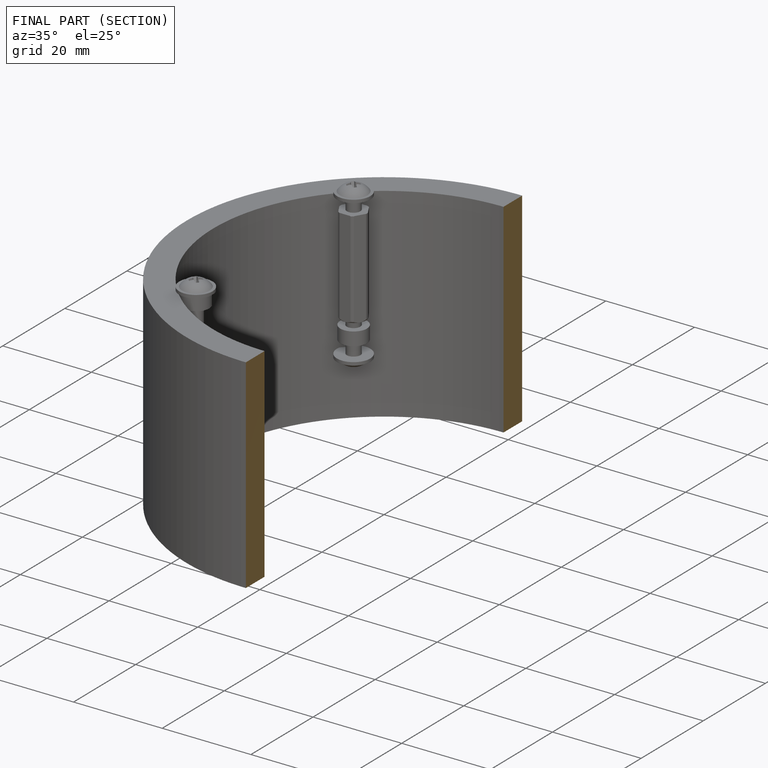
[diagram: finished part — half-section view (interior)]
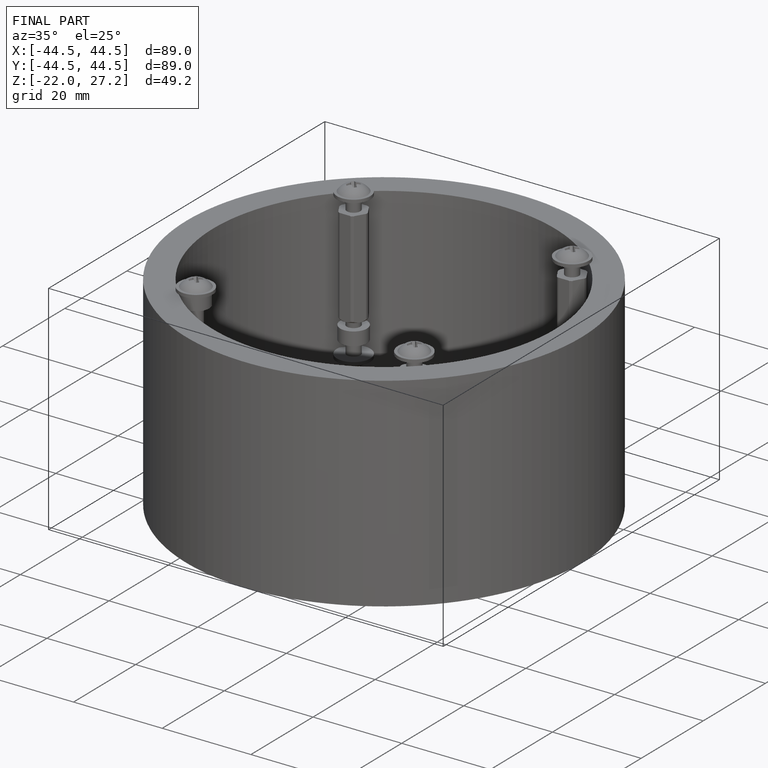
[diagram: finished part — iso view with bounding-box wireframe]
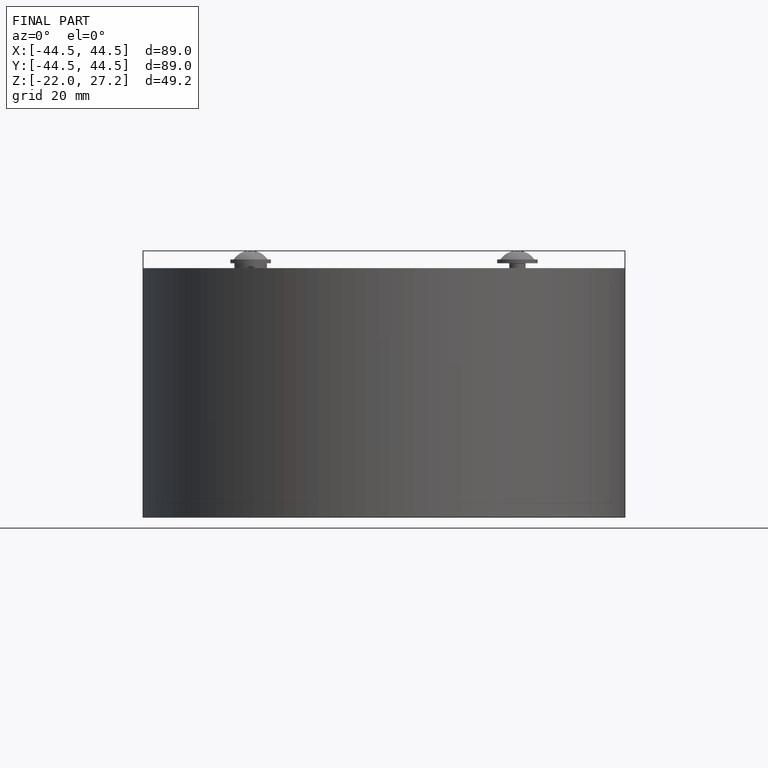
[diagram: finished part — front view with bounding-box wireframe]
